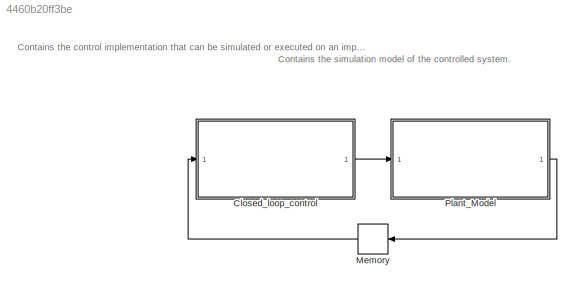
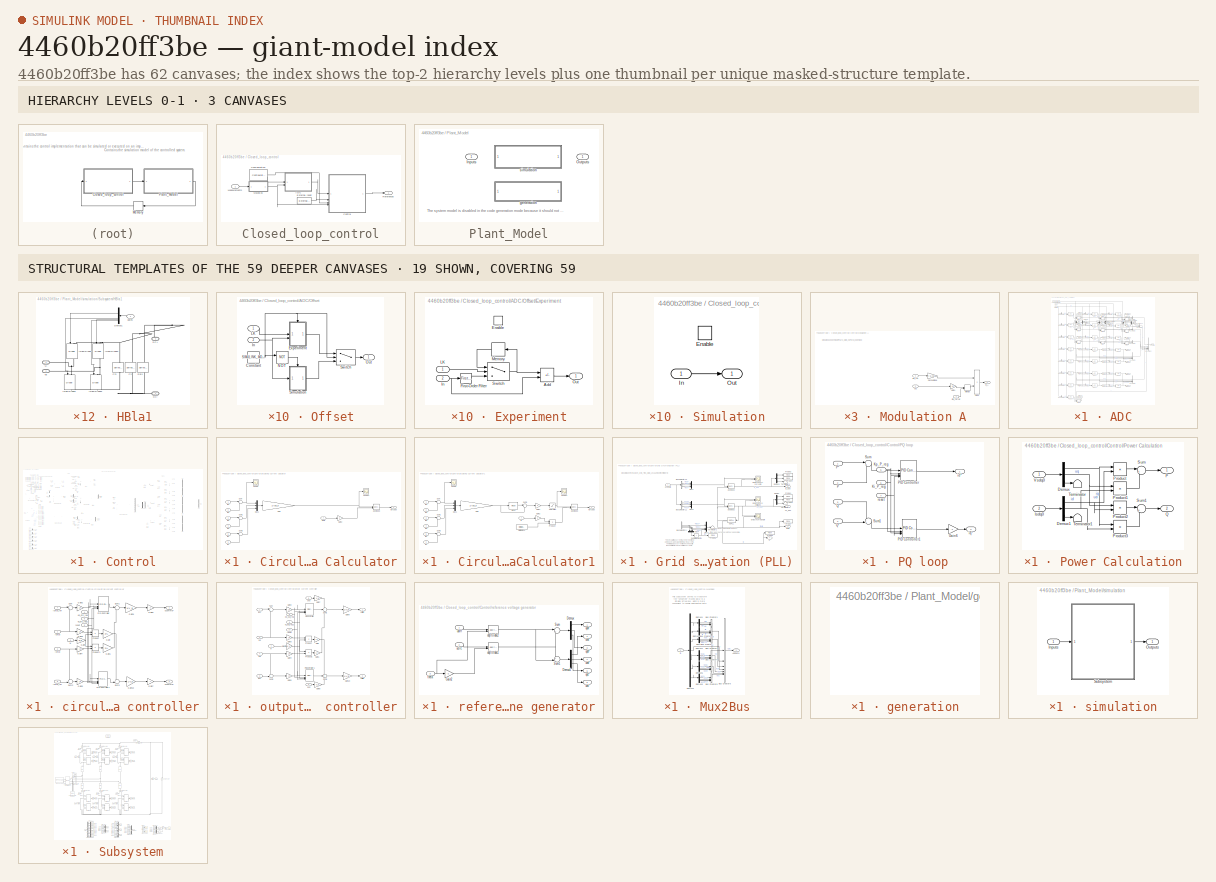
[diagram: thumbnail index - top-2 hierarchy levels (3 canvases) + 19 structural-template representatives of the remaining 59 canvases]
MODEL slx_4460b20ff3be
KIND model
CONFIG AbsTol = auto
CONFIG EnableMultiTasking = off
CONFIG FixedStep = auto
CONFIG InitFcn = % --- DO NOT REMOVE THIS CODE (SDK2024.3) ---\n    % check SDK version\n    required_lib_version = 3900.3;\n    required_lib_ver_str = '2024.3';\n    lib_path = [getenv('IX_SIMULINK_ACG_BB_3') '\simulink\blocks\BoomBox.slx'];\n    if exist(lib_path, 'file')\n        lib_version = str2double(Simulink.MDLInfo(lib_path).ModelVersion); % fullpath to avoid getting shadowing files\n        if lib_version < req...<+1808ch>
CONFIG MaxStep = auto
CONFIG MinStep = auto
CONFIG PostLoadFcn = % --- DO NOT REMOVE THIS CODE (SDK2024.3) ---\n    % change the execution mode of simulink depending on the radio button:\n    if(strcmp('Automated Code Generation',get_param(Find_imperix_blocks(bdroot,'Configuration'),'SLMODE')))\n        assignin('base', 'SIMULINK_MODE', 1);\n    else\n        assignin('base', 'SIMULINK_MODE', 0);\n    end\n\n    Model_PostLoadFcn(bdroot);\n% --- PLACE YOUR CODE BELOW TH...<+15ch>
CONFIG PreLoadFcn = % --- DO NOT REMOVE THIS CODE (SDK2024.3) ---\n    % create Simulink variants\n    if not(exist('variant_simulation', 'var'))\n        variant_simulation = Simulink.Variant('SIMULINK_MODE==0');\n    end\n    if not(exist('variant_generation', 'var'))\n        variant_generation = Simulink.Variant('SIMULINK_MODE==1');\n    end\n\n    % check SDK version\n    required_lib_version = 3900.3;\n    required_lib_ve...<+2548ch>
CONFIG RelTol = 1e-3
CONFIG SampleTimeConstraint = Unconstrained
CONFIG SolverName = VariableStepAuto
CONFIG StartTime = 0.0
CONFIG StopTime = 5
WORKSPACE source: mxarray member
WORKSPACE CTRLPERIOD = [5e-05 0]
WORKSPACE SVM_id = 0
WORKSPACE TSAMPLE = 1e-06
WORKSPACE global_CLK_number = 0
WORKSPACE global_INT_number = 1
WORKSPACE global_SVM_instance_id = 0
WORKSPACE global_can_baud_rate = '1000000'
WORKSPACE global_comp_time = 0.75
WORKSPACE global_cycle_delay = 2.5e-05
WORKSPACE global_ip_addresses: object (value not decoded)
BLOCK [SubSystem] Closed_loop_control
  Priority = -10000
BLOCK [SubSystem] Closed_loop_control/ADC
BLOCK [Reference] Closed_loop_control/ADC/ADC1  REF=BoomBox/ADC
  Priority = 1
  SourceBlock = BoomBox/ADC
  SourceProductName = Imperix Control
  SourceType = ADC
BLOCK [Reference] Closed_loop_control/ADC/ADC10  REF=BoomBox/ADC
  Priority = 1
  SourceBlock = BoomBox/ADC
  SourceProductName = Imperix Control
  SourceType = ADC
BLOCK [Reference] Closed_loop_control/ADC/ADC11  REF=BoomBox/ADC
  Priority = 1
  SourceBlock = BoomBox/ADC
  SourceProductName = Imperix Control
  SourceType = ADC
BLOCK [Reference] Closed_loop_control/ADC/ADC12  REF=BoomBox/ADC
  Priority = 1
  SourceBlock = BoomBox/ADC
  SourceProductName = Imperix Control
  SourceType = ADC
BLOCK [Reference] Closed_loop_control/ADC/ADC13  REF=BoomBox/ADC
  Priority = 1
  SourceBlock = BoomBox/ADC
  SourceProductName = Imperix Control
  SourceType = ADC
BLOCK [Reference] Closed_loop_control/ADC/ADC14  REF=BoomBox/ADC
  Priority = 1
  SourceBlock = BoomBox/ADC
  SourceProductName = Imperix Control
  SourceType = ADC
BLOCK [Reference] Closed_loop_control/ADC/ADC15  REF=BoomBox/ADC
  Priority = 1
  SourceBlock = BoomBox/ADC
  SourceProductName = Imperix Control
  SourceType = ADC
BLOCK [Reference] Closed_loop_control/ADC/ADC16  REF=BoomBox/ADC
  Priority = 1
  SourceBlock = BoomBox/ADC
  SourceProductName = Imperix Control
  SourceType = ADC
BLOCK [Reference] Closed_loop_control/ADC/ADC17  REF=BoomBox/ADC
  Priority = 1
  SourceBlock = BoomBox/ADC
  SourceProductName = Imperix Control
  SourceType = ADC
BLOCK [Reference] Closed_loop_control/ADC/ADC18  REF=BoomBox/ADC
  Priority = 1
  SourceBlock = BoomBox/ADC
  SourceProductName = Imperix Control
  SourceType = ADC
BLOCK [Reference] Closed_loop_control/ADC/ADC19  REF=BoomBox/ADC
  Priority = 1
  SourceBlock = BoomBox/ADC
  SourceProductName = Imperix Control
  SourceType = ADC
BLOCK [Reference] Closed_loop_control/ADC/ADC2  REF=BoomBox/ADC
  Priority = 1
  SourceBlock = BoomBox/ADC
  SourceProductName = Imperix Control
  SourceType = ADC
BLOCK [Reference] Closed_loop_control/ADC/ADC20  REF=BoomBox/ADC
  Priority = 1
  SourceBlock = BoomBox/ADC
  SourceProductName = Imperix Control
  SourceType = ADC
BLOCK [Reference] Closed_loop_control/ADC/ADC21  REF=BoomBox/ADC
  Priority = 1
  SourceBlock = BoomBox/ADC
  SourceProductName = Imperix Control
  SourceType = ADC
BLOCK [Reference] Closed_loop_control/ADC/ADC22  REF=BoomBox/ADC
  Priority = 1
  SourceBlock = BoomBox/ADC
  SourceProductName = Imperix Control
  SourceType = ADC
BLOCK [Reference] Closed_loop_control/ADC/ADC3  REF=BoomBox/ADC
  Priority = 1
  SourceBlock = BoomBox/ADC
  SourceProductName = Imperix Control
  SourceType = ADC
BLOCK [Reference] Closed_loop_control/ADC/ADC4  REF=BoomBox/ADC
  Priority = 1
  SourceBlock = BoomBox/ADC
  SourceProductName = Imperix Control
  SourceType = ADC
BLOCK [Reference] Closed_loop_control/ADC/ADC5  REF=BoomBox/ADC
  Priority = 1
  SourceBlock = BoomBox/ADC
  SourceProductName = Imperix Control
  SourceType = ADC
BLOCK [Reference] Closed_loop_control/ADC/ADC6  REF=BoomBox/ADC
  Priority = 1
  SourceBlock = BoomBox/ADC
  SourceProductName = Imperix Control
  SourceType = ADC
BLOCK [Reference] Closed_loop_control/ADC/ADC7  REF=BoomBox/ADC
  Priority = 1
  SourceBlock = BoomBox/ADC
  SourceProductName = Imperix Control
  SourceType = ADC
BLOCK [Reference] Closed_loop_control/ADC/ADC8  REF=BoomBox/ADC
  Priority = 1
  SourceBlock = BoomBox/ADC
  SourceProductName = Imperix Control
  SourceType = ADC
BLOCK [Reference] Closed_loop_control/ADC/ADC9  REF=BoomBox/ADC
  Priority = 1
  SourceBlock = BoomBox/ADC
  SourceProductName = Imperix Control
  SourceType = ADC
BLOCK [BusCreator] Closed_loop_control/ADC/Bus Creator1
  DisplayOption = bar
  InheritFromInputs = on
  Inputs = 3
BLOCK [BusCreator] Closed_loop_control/ADC/Bus Creator13
  DisplayOption = bar
  InheritFromInputs = on
  Inputs = 7
BLOCK [BusCreator] Closed_loop_control/ADC/Bus Creator2
  DisplayOption = bar
  InheritFromInputs = on
  Inputs = 3
BLOCK [BusCreator] Closed_loop_control/ADC/Bus Creator3
  DisplayOption = bar
  InheritFromInputs = on
  Inputs = 3
BLOCK [BusCreator] Closed_loop_control/ADC/Bus Creator4
  DisplayOption = bar
  InheritFromInputs = on
  Inputs = 6
  NameLocation = left
BLOCK [BusCreator] Closed_loop_control/ADC/Bus Creator5
  DisplayOption = bar
  InheritFromInputs = on
  Inputs = 6
BLOCK [BusCreator] Closed_loop_control/ADC/Bus Creator6
  DisplayOption = bar
  InheritFromInputs = on
  Inputs = 3
BLOCK [BusSelector] Closed_loop_control/ADC/Bus Selector
  OutputSignals = iu.iua
BLOCK [BusSelector] Closed_loop_control/ADC/Bus Selector1
  OutputSignals = il.ila
BLOCK [BusSelector] Closed_loop_control/ADC/Bus Selector10
  OutputSignals = Vcb.Vcb1
BLOCK [BusSelector] Closed_loop_control/ADC/Bus Selector11
  OutputSignals = Vcc.Vcc1
BLOCK [BusSelector] Closed_loop_control/ADC/Bus Selector12
  OutputSignals = Vcb.Vcb4
BLOCK [BusSelector] Closed_loop_control/ADC/Bus Selector13
  OutputSignals = Vcc.Vcc4
BLOCK [BusSelector] Closed_loop_control/ADC/Bus Selector14
  OutputSignals = Vca.Vca4
BLOCK [BusSelector] Closed_loop_control/ADC/Bus Selector15
  OutputSignals = Vcb.Vcb2
BLOCK [BusSelector] Closed_loop_control/ADC/Bus Selector16
  OutputSignals = Vcc.Vcc2
BLOCK [BusSelector] Closed_loop_control/ADC/Bus Selector17
  OutputSignals = vr
BLOCK [BusSelector] Closed_loop_control/ADC/Bus Selector18
  OutputSignals = Vca.Vca2
BLOCK [BusSelector] Closed_loop_control/ADC/Bus Selector19
  OutputSignals = Vcb.Vcb3
BLOCK [BusSelector] Closed_loop_control/ADC/Bus Selector2
  OutputSignals = iu.iub
BLOCK [BusSelector] Closed_loop_control/ADC/Bus Selector20
  OutputSignals = Vcc.Vcc3
BLOCK [BusSelector] Closed_loop_control/ADC/Bus Selector21
  OutputSignals = Vca.Vca3
BLOCK [BusSelector] Closed_loop_control/ADC/Bus Selector3
  OutputSignals = il.ilb
BLOCK [BusSelector] Closed_loop_control/ADC/Bus Selector4
  OutputSignals = vs.vsa
BLOCK [BusSelector] Closed_loop_control/ADC/Bus Selector5
  OutputSignals = vs.vsb
BLOCK [BusSelector] Closed_loop_control/ADC/Bus Selector6
  OutputSignals = iu.iuc
BLOCK [BusSelector] Closed_loop_control/ADC/Bus Selector7
  OutputSignals = il.ilc
BLOCK [BusSelector] Closed_loop_control/ADC/Bus Selector8
  OutputSignals = vs.vsc
BLOCK [BusSelector] Closed_loop_control/ADC/Bus Selector9
  OutputSignals = Vca.Vca1
BLOCK [Demux] Closed_loop_control/ADC/Demux
  Outputs = 2
BLOCK [Demux] Closed_loop_control/ADC/Demux1
  Outputs = 2
BLOCK [Demux] Closed_loop_control/ADC/Demux2
  Outputs = 2
BLOCK [Gain] Closed_loop_control/ADC/Gain1
  Gain = [0.5 0.5 ; 1 -1]
  Multiplication = Matrix(K*u)
BLOCK [Gain] Closed_loop_control/ADC/Gain2
  Gain = [0.5 0.5 ; 1 -1]
  Multiplication = Matrix(K*u)
BLOCK [Gain] Closed_loop_control/ADC/Gain3
  Gain = [0.5 0.5 ; 1 -1]
  Multiplication = Matrix(K*u)
BLOCK [Mux] Closed_loop_control/ADC/Mux1
  DisplayOption = bar
  Inputs = 2
BLOCK [Mux] Closed_loop_control/ADC/Mux2
  DisplayOption = bar
  Inputs = 2
BLOCK [Mux] Closed_loop_control/ADC/Mux4
  DisplayOption = bar
  Inputs = 2
BLOCK [SubSystem] Closed_loop_control/ADC/Offset
BLOCK [Constant] Closed_loop_control/ADC/Offset/Constant
  OutDataTypeStr = boolean
  Value = SIMULINK_MODE
BLOCK [SubSystem] Closed_loop_control/ADC/Offset/Experiment
BLOCK [Sum] Closed_loop_control/ADC/Offset/Experiment/Add
  IconShape = rectangular
  Inputs = -+
BLOCK [EnablePort] Closed_loop_control/ADC/Offset/Experiment/Enable
BLOCK [Reference] Closed_loop_control/ADC/Offset/Experiment/First-Order Filter  REF=spsFirstOrderFilterLib/First-Order
Filter
  SourceBlock = spsFirstOrderFilterLib/First-Order\nFilter
  SourceType = First-Order Filter
BLOCK [Inport] Closed_loop_control/ADC/Offset/Experiment/In
  NameLocation = left
  Port = 2
BLOCK [Inport] Closed_loop_control/ADC/Offset/Experiment/LK
  NameLocation = left
BLOCK [Memory] Closed_loop_control/ADC/Offset/Experiment/Memory
  InheritSampleTime = on
BLOCK [Outport] Closed_loop_control/ADC/Offset/Experiment/Out
BLOCK [Switch] Closed_loop_control/ADC/Offset/Experiment/Switch
  Criteria = u2 > Threshold
  InputSameDT = off
  OutDataTypeStr = single
  SaturateOnIntegerOverflow = off
BLOCK [Inport] Closed_loop_control/ADC/Offset/In
  NameLocation = left
  Port = 2
BLOCK [Inport] Closed_loop_control/ADC/Offset/LK
  NameLocation = left
BLOCK [Logic] Closed_loop_control/ADC/Offset/NOT
  AllPortsSameDT = off
  IconShape = distinctive
  Operator = NOT
  OutDataTypeStr = boolean
BLOCK [Outport] Closed_loop_control/ADC/Offset/Out
BLOCK [SubSystem] Closed_loop_control/ADC/Offset/Simulation
BLOCK [EnablePort] Closed_loop_control/ADC/Offset/Simulation/Enable
BLOCK [Inport] Closed_loop_control/ADC/Offset/Simulation/In
  NameLocation = left
BLOCK [Outport] Closed_loop_control/ADC/Offset/Simulation/Out
BLOCK [Switch] Closed_loop_control/ADC/Offset/Switch
  Criteria = u2 > Threshold
  InputSameDT = off
  OutDataTypeStr = single
  SaturateOnIntegerOverflow = off
BLOCK [SubSystem] Closed_loop_control/ADC/Offset1
BLOCK [Constant] Closed_loop_control/ADC/Offset1/Constant
  OutDataTypeStr = boolean
  Value = SIMULINK_MODE
BLOCK [SubSystem] Closed_loop_control/ADC/Offset1/Experiment
BLOCK [Sum] Closed_loop_control/ADC/Offset1/Experiment/Add
  IconShape = rectangular
  Inputs = -+
BLOCK [EnablePort] Closed_loop_control/ADC/Offset1/Experiment/Enable
BLOCK [Reference] Closed_loop_control/ADC/Offset1/Experiment/First-Order Filter  REF=spsFirstOrderFilterLib/First-Order
Filter
  SourceBlock = spsFirstOrderFilterLib/First-Order\nFilter
  SourceType = First-Order Filter
BLOCK [Inport] Closed_loop_control/ADC/Offset1/Experiment/In
  NameLocation = left
  Port = 2
BLOCK [Inport] Closed_loop_control/ADC/Offset1/Experiment/LK
  NameLocation = left
BLOCK [Memory] Closed_loop_control/ADC/Offset1/Experiment/Memory
  InheritSampleTime = on
BLOCK [Outport] Closed_loop_control/ADC/Offset1/Experiment/Out
BLOCK [Switch] Closed_loop_control/ADC/Offset1/Experiment/Switch
  Criteria = u2 > Threshold
  InputSameDT = off
  OutDataTypeStr = single
  SaturateOnIntegerOverflow = off
BLOCK [Inport] Closed_loop_control/ADC/Offset1/In
  NameLocation = left
  Port = 2
BLOCK [Inport] Closed_loop_control/ADC/Offset1/LK
  NameLocation = left
BLOCK [Logic] Closed_loop_control/ADC/Offset1/NOT
  AllPortsSameDT = off
  IconShape = distinctive
  Operator = NOT
  OutDataTypeStr = boolean
BLOCK [Outport] Closed_loop_control/ADC/Offset1/Out
BLOCK [SubSystem] Closed_loop_control/ADC/Offset1/Simulation
BLOCK [EnablePort] Closed_loop_control/ADC/Offset1/Simulation/Enable
BLOCK [Inport] Closed_loop_control/ADC/Offset1/Simulation/In
  NameLocation = left
BLOCK [Outport] Closed_loop_control/ADC/Offset1/Simulation/Out
BLOCK [Switch] Closed_loop_control/ADC/Offset1/Switch
  Criteria = u2 > Threshold
  InputSameDT = off
  OutDataTypeStr = single
  SaturateOnIntegerOverflow = off
BLOCK [SubSystem] Closed_loop_control/ADC/Offset2
BLOCK [Constant] Closed_loop_control/ADC/Offset2/Constant
  OutDataTypeStr = boolean
  Value = SIMULINK_MODE
BLOCK [SubSystem] Closed_loop_control/ADC/Offset2/Experiment
BLOCK [Sum] Closed_loop_control/ADC/Offset2/Experiment/Add
  IconShape = rectangular
  Inputs = -+
BLOCK [EnablePort] Closed_loop_control/ADC/Offset2/Experiment/Enable
BLOCK [Reference] Closed_loop_control/ADC/Offset2/Experiment/First-Order Filter  REF=spsFirstOrderFilterLib/First-Order
Filter
  SourceBlock = spsFirstOrderFilterLib/First-Order\nFilter
  SourceType = First-Order Filter
BLOCK [Inport] Closed_loop_control/ADC/Offset2/Experiment/In
  NameLocation = left
  Port = 2
BLOCK [Inport] Closed_loop_control/ADC/Offset2/Experiment/LK
  NameLocation = left
BLOCK [Memory] Closed_loop_control/ADC/Offset2/Experiment/Memory
  InheritSampleTime = on
BLOCK [Outport] Closed_loop_control/ADC/Offset2/Experiment/Out
BLOCK [Switch] Closed_loop_control/ADC/Offset2/Experiment/Switch
  Criteria = u2 > Threshold
  InputSameDT = off
  OutDataTypeStr = single
  SaturateOnIntegerOverflow = off
BLOCK [Inport] Closed_loop_control/ADC/Offset2/In
  NameLocation = left
  Port = 2
BLOCK [Inport] Closed_loop_control/ADC/Offset2/LK
  NameLocation = left
BLOCK [Logic] Closed_loop_control/ADC/Offset2/NOT
  AllPortsSameDT = off
  IconShape = distinctive
  Operator = NOT
  OutDataTypeStr = boolean
BLOCK [Outport] Closed_loop_control/ADC/Offset2/Out
BLOCK [SubSystem] Closed_loop_control/ADC/Offset2/Simulation
BLOCK [EnablePort] Closed_loop_control/ADC/Offset2/Simulation/Enable
BLOCK [Inport] Closed_loop_control/ADC/Offset2/Simulation/In
  NameLocation = left
BLOCK [Outport] Closed_loop_control/ADC/Offset2/Simulation/Out
BLOCK [Switch] Closed_loop_control/ADC/Offset2/Switch
  Criteria = u2 > Threshold
  InputSameDT = off
  OutDataTypeStr = single
  SaturateOnIntegerOverflow = off
BLOCK [SubSystem] Closed_loop_control/ADC/Offset3
BLOCK [Constant] Closed_loop_control/ADC/Offset3/Constant
  OutDataTypeStr = boolean
  Value = SIMULINK_MODE
BLOCK [SubSystem] Closed_loop_control/ADC/Offset3/Experiment
BLOCK [Sum] Closed_loop_control/ADC/Offset3/Experiment/Add
  IconShape = rectangular
  Inputs = -+
BLOCK [EnablePort] Closed_loop_control/ADC/Offset3/Experiment/Enable
BLOCK [Reference] Closed_loop_control/ADC/Offset3/Experiment/First-Order Filter  REF=spsFirstOrderFilterLib/First-Order
Filter
  SourceBlock = spsFirstOrderFilterLib/First-Order\nFilter
  SourceType = First-Order Filter
BLOCK [Inport] Closed_loop_control/ADC/Offset3/Experiment/In
  NameLocation = left
  Port = 2
BLOCK [Inport] Closed_loop_control/ADC/Offset3/Experiment/LK
  NameLocation = left
BLOCK [Memory] Closed_loop_control/ADC/Offset3/Experiment/Memory
  InheritSampleTime = on
BLOCK [Outport] Closed_loop_control/ADC/Offset3/Experiment/Out
BLOCK [Switch] Closed_loop_control/ADC/Offset3/Experiment/Switch
  Criteria = u2 > Threshold
  InputSameDT = off
  OutDataTypeStr = single
  SaturateOnIntegerOverflow = off
BLOCK [Inport] Closed_loop_control/ADC/Offset3/In
  NameLocation = left
  Port = 2
BLOCK [Inport] Closed_loop_control/ADC/Offset3/LK
  NameLocation = left
BLOCK [Logic] Closed_loop_control/ADC/Offset3/NOT
  AllPortsSameDT = off
  IconShape = distinctive
  Operator = NOT
  OutDataTypeStr = boolean
BLOCK [Outport] Closed_loop_control/ADC/Offset3/Out
BLOCK [SubSystem] Closed_loop_control/ADC/Offset3/Simulation
BLOCK [EnablePort] Closed_loop_control/ADC/Offset3/Simulation/Enable
BLOCK [Inport] Closed_loop_control/ADC/Offset3/Simulation/In
  NameLocation = left
BLOCK [Outport] Closed_loop_control/ADC/Offset3/Simulation/Out
BLOCK [Switch] Closed_loop_control/ADC/Offset3/Switch
  Criteria = u2 > Threshold
  InputSameDT = off
  OutDataTypeStr = single
  SaturateOnIntegerOverflow = off
BLOCK [SubSystem] Closed_loop_control/ADC/Offset4
BLOCK [Constant] Closed_loop_control/ADC/Offset4/Constant
  OutDataTypeStr = boolean
  Value = SIMULINK_MODE
BLOCK [SubSystem] Closed_loop_control/ADC/Offset4/Experiment
BLOCK [Sum] Closed_loop_control/ADC/Offset4/Experiment/Add
  IconShape = rectangular
  Inputs = -+
BLOCK [EnablePort] Closed_loop_control/ADC/Offset4/Experiment/Enable
BLOCK [Reference] Closed_loop_control/ADC/Offset4/Experiment/First-Order Filter  REF=spsFirstOrderFilterLib/First-Order
Filter
  SourceBlock = spsFirstOrderFilterLib/First-Order\nFilter
  SourceType = First-Order Filter
BLOCK [Inport] Closed_loop_control/ADC/Offset4/Experiment/In
  NameLocation = left
  Port = 2
BLOCK [Inport] Closed_loop_control/ADC/Offset4/Experiment/LK
  NameLocation = left
BLOCK [Memory] Closed_loop_control/ADC/Offset4/Experiment/Memory
  InheritSampleTime = on
BLOCK [Outport] Closed_loop_control/ADC/Offset4/Experiment/Out
BLOCK [Switch] Closed_loop_control/ADC/Offset4/Experiment/Switch
  Criteria = u2 > Threshold
  InputSameDT = off
  OutDataTypeStr = single
  SaturateOnIntegerOverflow = off
BLOCK [Inport] Closed_loop_control/ADC/Offset4/In
  NameLocation = left
  Port = 2
BLOCK [Inport] Closed_loop_control/ADC/Offset4/LK
  NameLocation = left
BLOCK [Logic] Closed_loop_control/ADC/Offset4/NOT
  AllPortsSameDT = off
  IconShape = distinctive
  Operator = NOT
  OutDataTypeStr = boolean
BLOCK [Outport] Closed_loop_control/ADC/Offset4/Out
BLOCK [SubSystem] Closed_loop_control/ADC/Offset4/Simulation
BLOCK [EnablePort] Closed_loop_control/ADC/Offset4/Simulation/Enable
BLOCK [Inport] Closed_loop_control/ADC/Offset4/Simulation/In
  NameLocation = left
BLOCK [Outport] Closed_loop_control/ADC/Offset4/Simulation/Out
BLOCK [Switch] Closed_loop_control/ADC/Offset4/Switch
  Criteria = u2 > Threshold
  InputSameDT = off
  OutDataTypeStr = single
  SaturateOnIntegerOverflow = off
BLOCK [SubSystem] Closed_loop_control/ADC/Offset5
BLOCK [Constant] Closed_loop_control/ADC/Offset5/Constant
  OutDataTypeStr = boolean
  Value = SIMULINK_MODE
BLOCK [SubSystem] Closed_loop_control/ADC/Offset5/Experiment
BLOCK [Sum] Closed_loop_control/ADC/Offset5/Experiment/Add
  IconShape = rectangular
  Inputs = -+
BLOCK [EnablePort] Closed_loop_control/ADC/Offset5/Experiment/Enable
BLOCK [Reference] Closed_loop_control/ADC/Offset5/Experiment/First-Order Filter  REF=spsFirstOrderFilterLib/First-Order
Filter
  SourceBlock = spsFirstOrderFilterLib/First-Order\nFilter
  SourceType = First-Order Filter
BLOCK [Inport] Closed_loop_control/ADC/Offset5/Experiment/In
  NameLocation = left
  Port = 2
BLOCK [Inport] Closed_loop_control/ADC/Offset5/Experiment/LK
  NameLocation = left
BLOCK [Memory] Closed_loop_control/ADC/Offset5/Experiment/Memory
  InheritSampleTime = on
BLOCK [Outport] Closed_loop_control/ADC/Offset5/Experiment/Out
BLOCK [Switch] Closed_loop_control/ADC/Offset5/Experiment/Switch
  Criteria = u2 > Threshold
  InputSameDT = off
  OutDataTypeStr = single
  SaturateOnIntegerOverflow = off
BLOCK [Inport] Closed_loop_control/ADC/Offset5/In
  NameLocation = left
  Port = 2
BLOCK [Inport] Closed_loop_control/ADC/Offset5/LK
  NameLocation = left
BLOCK [Logic] Closed_loop_control/ADC/Offset5/NOT
  AllPortsSameDT = off
  IconShape = distinctive
  Operator = NOT
  OutDataTypeStr = boolean
BLOCK [Outport] Closed_loop_control/ADC/Offset5/Out
BLOCK [SubSystem] Closed_loop_control/ADC/Offset5/Simulation
BLOCK [EnablePort] Closed_loop_control/ADC/Offset5/Simulation/Enable
BLOCK [Inport] Closed_loop_control/ADC/Offset5/Simulation/In
  NameLocation = left
BLOCK [Outport] Closed_loop_control/ADC/Offset5/Simulation/Out
BLOCK [Switch] Closed_loop_control/ADC/Offset5/Switch
  Criteria = u2 > Threshold
  InputSameDT = off
  OutDataTypeStr = single
  SaturateOnIntegerOverflow = off
BLOCK [SubSystem] Closed_loop_control/ADC/Offset6
BLOCK [Constant] Closed_loop_control/ADC/Offset6/Constant
  OutDataTypeStr = boolean
  Value = SIMULINK_MODE
BLOCK [SubSystem] Closed_loop_control/ADC/Offset6/Experiment
BLOCK [Sum] Closed_loop_control/ADC/Offset6/Experiment/Add
  IconShape = rectangular
  Inputs = -+
BLOCK [EnablePort] Closed_loop_control/ADC/Offset6/Experiment/Enable
BLOCK [Reference] Closed_loop_control/ADC/Offset6/Experiment/First-Order Filter  REF=spsFirstOrderFilterLib/First-Order
Filter
  SourceBlock = spsFirstOrderFilterLib/First-Order\nFilter
  SourceType = First-Order Filter
BLOCK [Inport] Closed_loop_control/ADC/Offset6/Experiment/In
  NameLocation = left
  Port = 2
BLOCK [Inport] Closed_loop_control/ADC/Offset6/Experiment/LK
  NameLocation = left
BLOCK [Memory] Closed_loop_control/ADC/Offset6/Experiment/Memory
  InheritSampleTime = on
BLOCK [Outport] Closed_loop_control/ADC/Offset6/Experiment/Out
BLOCK [Switch] Closed_loop_control/ADC/Offset6/Experiment/Switch
  Criteria = u2 > Threshold
  InputSameDT = off
  OutDataTypeStr = single
  SaturateOnIntegerOverflow = off
BLOCK [Inport] Closed_loop_control/ADC/Offset6/In
  NameLocation = left
  Port = 2
BLOCK [Inport] Closed_loop_control/ADC/Offset6/LK
  NameLocation = left
BLOCK [Logic] Closed_loop_control/ADC/Offset6/NOT
  AllPortsSameDT = off
  IconShape = distinctive
  Operator = NOT
  OutDataTypeStr = boolean
BLOCK [Outport] Closed_loop_control/ADC/Offset6/Out
BLOCK [SubSystem] Closed_loop_control/ADC/Offset6/Simulation
BLOCK [EnablePort] Closed_loop_control/ADC/Offset6/Simulation/Enable
BLOCK [Inport] Closed_loop_control/ADC/Offset6/Simulation/In
  NameLocation = left
BLOCK [Outport] Closed_loop_control/ADC/Offset6/Simulation/Out
BLOCK [Switch] Closed_loop_control/ADC/Offset6/Switch
  Criteria = u2 > Threshold
  InputSameDT = off
  OutDataTypeStr = single
  SaturateOnIntegerOverflow = off
BLOCK [SubSystem] Closed_loop_control/ADC/Offset7
BLOCK [Constant] Closed_loop_control/ADC/Offset7/Constant
  OutDataTypeStr = boolean
  Value = SIMULINK_MODE
BLOCK [SubSystem] Closed_loop_control/ADC/Offset7/Experiment
BLOCK [Sum] Closed_loop_control/ADC/Offset7/Experiment/Add
  IconShape = rectangular
  Inputs = -+
BLOCK [EnablePort] Closed_loop_control/ADC/Offset7/Experiment/Enable
BLOCK [Reference] Closed_loop_control/ADC/Offset7/Experiment/First-Order Filter  REF=spsFirstOrderFilterLib/First-Order
Filter
  SourceBlock = spsFirstOrderFilterLib/First-Order\nFilter
  SourceType = First-Order Filter
BLOCK [Inport] Closed_loop_control/ADC/Offset7/Experiment/In
  NameLocation = left
  Port = 2
BLOCK [Inport] Closed_loop_control/ADC/Offset7/Experiment/LK
  NameLocation = left
BLOCK [Memory] Closed_loop_control/ADC/Offset7/Experiment/Memory
  InheritSampleTime = on
BLOCK [Outport] Closed_loop_control/ADC/Offset7/Experiment/Out
BLOCK [Switch] Closed_loop_control/ADC/Offset7/Experiment/Switch
  Criteria = u2 > Threshold
  InputSameDT = off
  OutDataTypeStr = single
  SaturateOnIntegerOverflow = off
BLOCK [Inport] Closed_loop_control/ADC/Offset7/In
  NameLocation = left
  Port = 2
BLOCK [Inport] Closed_loop_control/ADC/Offset7/LK
  NameLocation = left
BLOCK [Logic] Closed_loop_control/ADC/Offset7/NOT
  AllPortsSameDT = off
  IconShape = distinctive
  Operator = NOT
  OutDataTypeStr = boolean
BLOCK [Outport] Closed_loop_control/ADC/Offset7/Out
BLOCK [SubSystem] Closed_loop_control/ADC/Offset7/Simulation
BLOCK [EnablePort] Closed_loop_control/ADC/Offset7/Simulation/Enable
BLOCK [Inport] Closed_loop_control/ADC/Offset7/Simulation/In
  NameLocation = left
BLOCK [Outport] Closed_loop_control/ADC/Offset7/Simulation/Out
BLOCK [Switch] Closed_loop_control/ADC/Offset7/Switch
  Criteria = u2 > Threshold
  InputSameDT = off
  OutDataTypeStr = single
  SaturateOnIntegerOverflow = off
BLOCK [SubSystem] Closed_loop_control/ADC/Offset8
BLOCK [Constant] Closed_loop_control/ADC/Offset8/Constant
  OutDataTypeStr = boolean
  Value = SIMULINK_MODE
BLOCK [SubSystem] Closed_loop_control/ADC/Offset8/Experiment
BLOCK [Sum] Closed_loop_control/ADC/Offset8/Experiment/Add
  IconShape = rectangular
  Inputs = -+
BLOCK [EnablePort] Closed_loop_control/ADC/Offset8/Experiment/Enable
BLOCK [Reference] Closed_loop_control/ADC/Offset8/Experiment/First-Order Filter  REF=spsFirstOrderFilterLib/First-Order
Filter
  SourceBlock = spsFirstOrderFilterLib/First-Order\nFilter
  SourceType = First-Order Filter
BLOCK [Inport] Closed_loop_control/ADC/Offset8/Experiment/In
  NameLocation = left
  Port = 2
BLOCK [Inport] Closed_loop_control/ADC/Offset8/Experiment/LK
  NameLocation = left
BLOCK [Memory] Closed_loop_control/ADC/Offset8/Experiment/Memory
  InheritSampleTime = on
BLOCK [Outport] Closed_loop_control/ADC/Offset8/Experiment/Out
BLOCK [Switch] Closed_loop_control/ADC/Offset8/Experiment/Switch
  Criteria = u2 > Threshold
  InputSameDT = off
  OutDataTypeStr = single
  SaturateOnIntegerOverflow = off
BLOCK [Inport] Closed_loop_control/ADC/Offset8/In
  NameLocation = left
  Port = 2
BLOCK [Inport] Closed_loop_control/ADC/Offset8/LK
  NameLocation = left
BLOCK [Logic] Closed_loop_control/ADC/Offset8/NOT
  AllPortsSameDT = off
  IconShape = distinctive
  Operator = NOT
  OutDataTypeStr = boolean
BLOCK [Outport] Closed_loop_control/ADC/Offset8/Out
BLOCK [SubSystem] Closed_loop_control/ADC/Offset8/Simulation
BLOCK [EnablePort] Closed_loop_control/ADC/Offset8/Simulation/Enable
BLOCK [Inport] Closed_loop_control/ADC/Offset8/Simulation/In
  NameLocation = left
BLOCK [Outport] Closed_loop_control/ADC/Offset8/Simulation/Out
BLOCK [Switch] Closed_loop_control/ADC/Offset8/Switch
  Criteria = u2 > Threshold
  InputSameDT = off
  OutDataTypeStr = single
  SaturateOnIntegerOverflow = off
BLOCK [SubSystem] Closed_loop_control/ADC/Offset9
BLOCK [Constant] Closed_loop_control/ADC/Offset9/Constant
  OutDataTypeStr = boolean
  Value = SIMULINK_MODE
BLOCK [SubSystem] Closed_loop_control/ADC/Offset9/Experiment
BLOCK [Sum] Closed_loop_control/ADC/Offset9/Experiment/Add
  IconShape = rectangular
  Inputs = -+
BLOCK [EnablePort] Closed_loop_control/ADC/Offset9/Experiment/Enable
BLOCK [Reference] Closed_loop_control/ADC/Offset9/Experiment/First-Order Filter  REF=spsFirstOrderFilterLib/First-Order
Filter
  SourceBlock = spsFirstOrderFilterLib/First-Order\nFilter
  SourceType = First-Order Filter
BLOCK [Inport] Closed_loop_control/ADC/Offset9/Experiment/In
  NameLocation = left
  Port = 2
BLOCK [Inport] Closed_loop_control/ADC/Offset9/Experiment/LK
  NameLocation = left
BLOCK [Memory] Closed_loop_control/ADC/Offset9/Experiment/Memory
  InheritSampleTime = on
BLOCK [Outport] Closed_loop_control/ADC/Offset9/Experiment/Out
BLOCK [Switch] Closed_loop_control/ADC/Offset9/Experiment/Switch
  Criteria = u2 > Threshold
  InputSameDT = off
  OutDataTypeStr = single
  SaturateOnIntegerOverflow = off
BLOCK [Inport] Closed_loop_control/ADC/Offset9/In
  NameLocation = left
  Port = 2
BLOCK [Inport] Closed_loop_control/ADC/Offset9/LK
  NameLocation = left
BLOCK [Logic] Closed_loop_control/ADC/Offset9/NOT
  AllPortsSameDT = off
  IconShape = distinctive
  Operator = NOT
  OutDataTypeStr = boolean
BLOCK [Outport] Closed_loop_control/ADC/Offset9/Out
BLOCK [SubSystem] Closed_loop_control/ADC/Offset9/Simulation
BLOCK [EnablePort] Closed_loop_control/ADC/Offset9/Simulation/Enable
BLOCK [Inport] Closed_loop_control/ADC/Offset9/Simulation/In
  NameLocation = left
BLOCK [Outport] Closed_loop_control/ADC/Offset9/Simulation/Out
BLOCK [Switch] Closed_loop_control/ADC/Offset9/Switch
  Criteria = u2 > Threshold
  InputSameDT = off
  OutDataTypeStr = single
  SaturateOnIntegerOverflow = off
BLOCK [Reference] Closed_loop_control/ADC/Probe1  REF=BoomBox/Probe
  SourceBlock = BoomBox/Probe
  SourceProductName = Imperix Control
  SourceType = Probe
BLOCK [Reference] Closed_loop_control/ADC/Probe10  REF=BoomBox/Probe
  SourceBlock = BoomBox/Probe
  SourceProductName = Imperix Control
  SourceType = Probe
BLOCK [Reference] Closed_loop_control/ADC/Probe11  REF=BoomBox/Probe
  SourceBlock = BoomBox/Probe
  SourceProductName = Imperix Control
  SourceType = Probe
BLOCK [Reference] Closed_loop_control/ADC/Probe12  REF=BoomBox/Probe
  SourceBlock = BoomBox/Probe
  SourceProductName = Imperix Control
  SourceType = Probe
BLOCK [Reference] Closed_loop_control/ADC/Probe13  REF=BoomBox/Probe
  SourceBlock = BoomBox/Probe
  SourceProductName = Imperix Control
  SourceType = Probe
BLOCK [Reference] Closed_loop_control/ADC/Probe14  REF=BoomBox/Probe
  SourceBlock = BoomBox/Probe
  SourceProductName = Imperix Control
  SourceType = Probe
BLOCK [Reference] Closed_loop_control/ADC/Probe15  REF=BoomBox/Probe
  SourceBlock = BoomBox/Probe
  SourceProductName = Imperix Control
  SourceType = Probe
BLOCK [Reference] Closed_loop_control/ADC/Probe16  REF=BoomBox/Probe
  SourceBlock = BoomBox/Probe
  SourceProductName = Imperix Control
  SourceType = Probe
BLOCK [Reference] Closed_loop_control/ADC/Probe17  REF=BoomBox/Probe
  SourceBlock = BoomBox/Probe
  SourceProductName = Imperix Control
  SourceType = Probe
BLOCK [Reference] Closed_loop_control/ADC/Probe18  REF=BoomBox/Probe
  SourceBlock = BoomBox/Probe
  SourceProductName = Imperix Control
  SourceType = Probe
BLOCK [Reference] Closed_loop_control/ADC/Probe19  REF=BoomBox/Probe
  SourceBlock = BoomBox/Probe
  SourceProductName = Imperix Control
  SourceType = Probe
BLOCK [Reference] Closed_loop_control/ADC/Probe2  REF=BoomBox/Probe
  SourceBlock = BoomBox/Probe
  SourceProductName = Imperix Control
  SourceType = Probe
BLOCK [Reference] Closed_loop_control/ADC/Probe20  REF=BoomBox/Probe
  SourceBlock = BoomBox/Probe
  SourceProductName = Imperix Control
  SourceType = Probe
BLOCK [Reference] Closed_loop_control/ADC/Probe21  REF=BoomBox/Probe
  SourceBlock = BoomBox/Probe
  SourceProductName = Imperix Control
  SourceType = Probe
BLOCK [Reference] Closed_loop_control/ADC/Probe22  REF=BoomBox/Probe
  SourceBlock = BoomBox/Probe
  SourceProductName = Imperix Control
  SourceType = Probe
BLOCK [Reference] Closed_loop_control/ADC/Probe23  REF=BoomBox/Probe
  SourceBlock = BoomBox/Probe
  SourceProductName = Imperix Control
  SourceType = Probe
BLOCK [Reference] Closed_loop_control/ADC/Probe24  REF=BoomBox/Probe
  SourceBlock = BoomBox/Probe
  SourceProductName = Imperix Control
  SourceType = Probe
BLOCK [Reference] Closed_loop_control/ADC/Probe3  REF=BoomBox/Probe
  SourceBlock = BoomBox/Probe
  SourceProductName = Imperix Control
  SourceType = Probe
BLOCK [Reference] Closed_loop_control/ADC/Probe4  REF=BoomBox/Probe
  SourceBlock = BoomBox/Probe
  SourceProductName = Imperix Control
  SourceType = Probe
BLOCK [Reference] Closed_loop_control/ADC/Probe46  REF=BoomBox/Probe
  SourceBlock = BoomBox/Probe
  SourceProductName = Imperix Control
  SourceType = Probe
BLOCK [Reference] Closed_loop_control/ADC/Probe5  REF=BoomBox/Probe
  SourceBlock = BoomBox/Probe
  SourceProductName = Imperix Control
  SourceType = Probe
BLOCK [Reference] Closed_loop_control/ADC/Probe6  REF=BoomBox/Probe
  SourceBlock = BoomBox/Probe
  SourceProductName = Imperix Control
  SourceType = Probe
BLOCK [Reference] Closed_loop_control/ADC/Probe7  REF=BoomBox/Probe
  SourceBlock = BoomBox/Probe
  SourceProductName = Imperix Control
  SourceType = Probe
BLOCK [Reference] Closed_loop_control/ADC/Probe8  REF=BoomBox/Probe
  SourceBlock = BoomBox/Probe
  SourceProductName = Imperix Control
  SourceType = Probe
BLOCK [Reference] Closed_loop_control/ADC/Probe9  REF=BoomBox/Probe
  SourceBlock = BoomBox/Probe
  SourceProductName = Imperix Control
  SourceType = Probe
BLOCK [Inport] Closed_loop_control/ADC/SCLK
BLOCK [Terminator] Closed_loop_control/ADC/Terminator
BLOCK [Terminator] Closed_loop_control/ADC/Terminator1
BLOCK [Terminator] Closed_loop_control/ADC/Terminator2
BLOCK [Reference] Closed_loop_control/ADC/Tunable parameter  REF=BoomBox/Tunable parameter
  SourceBlock = BoomBox/Tunable parameter
  SourceProductName = Imperix Control
  SourceType = Tunable parameter
BLOCK [Outport] Closed_loop_control/ADC/acqdata
BLOCK [Inport] Closed_loop_control/ADC/simdata
  Port = 2
BLOCK [Reference] Closed_loop_control/Configuration  REF=BoomBox/Configuration
  Description = Please leave the Priority (below parameter) to maximum negative to ensure that this block is always executed first.
  NameLocation = top
  Priority = -99999
  SourceBlock = BoomBox/Configuration
  SourceProductName = Imperix Control
  SourceType = Configuration
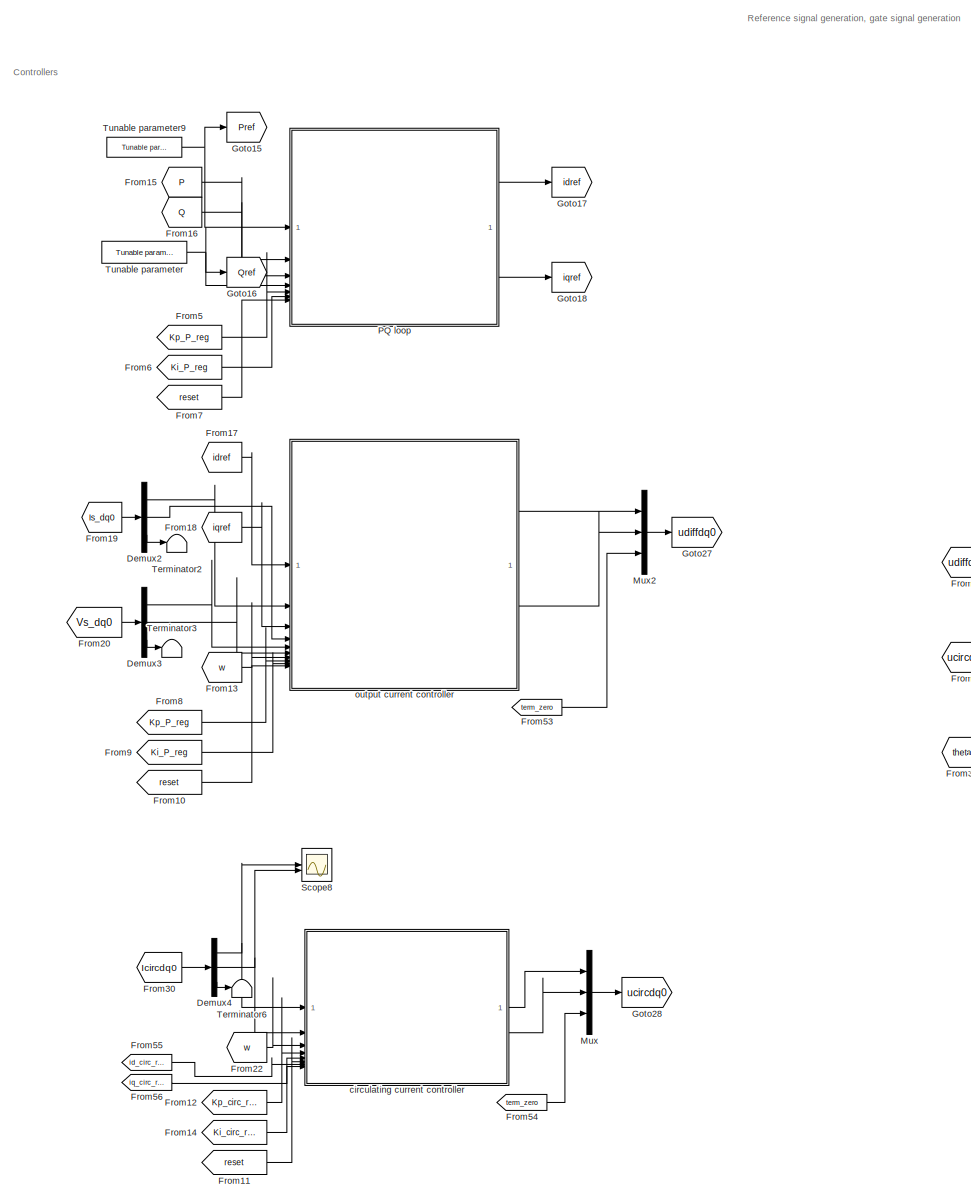
[diagram: Closed_loop_control/Control - part 1/6, central region]
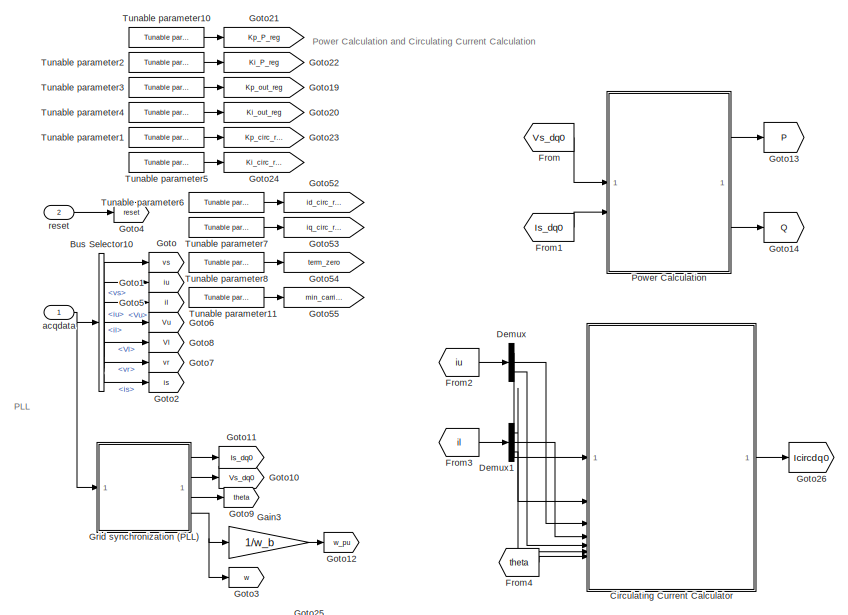
[diagram: Closed_loop_control/Control - part 2/6, top left region]
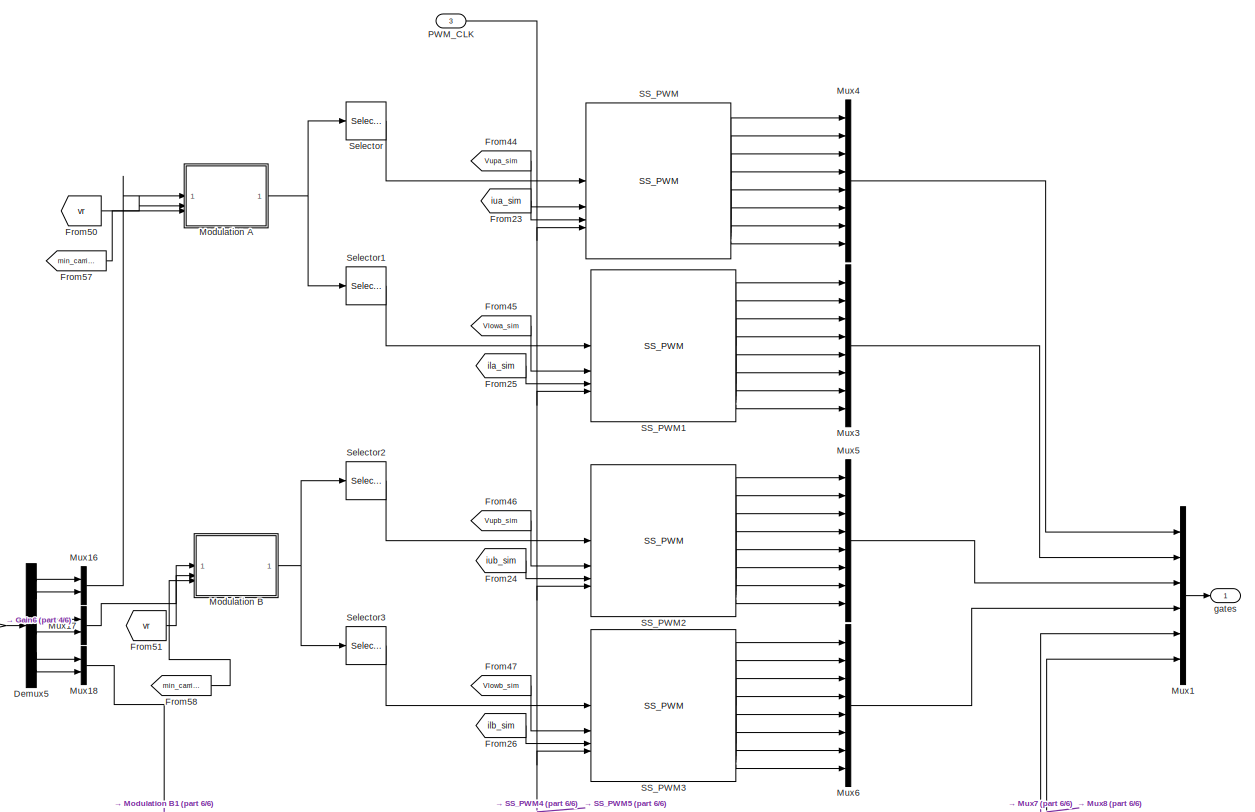
[diagram: Closed_loop_control/Control - part 3/6, top right region]
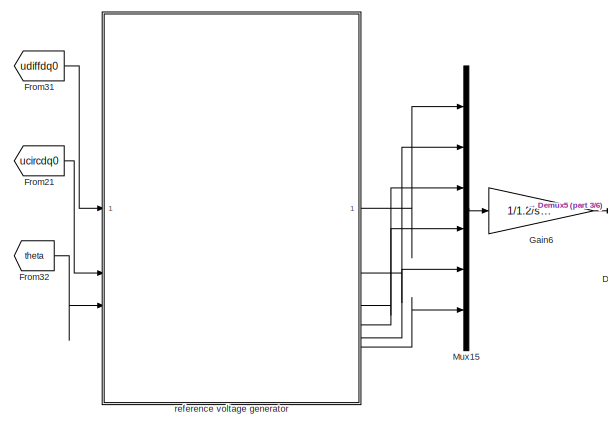
[diagram: Closed_loop_control/Control - part 4/6, central region]
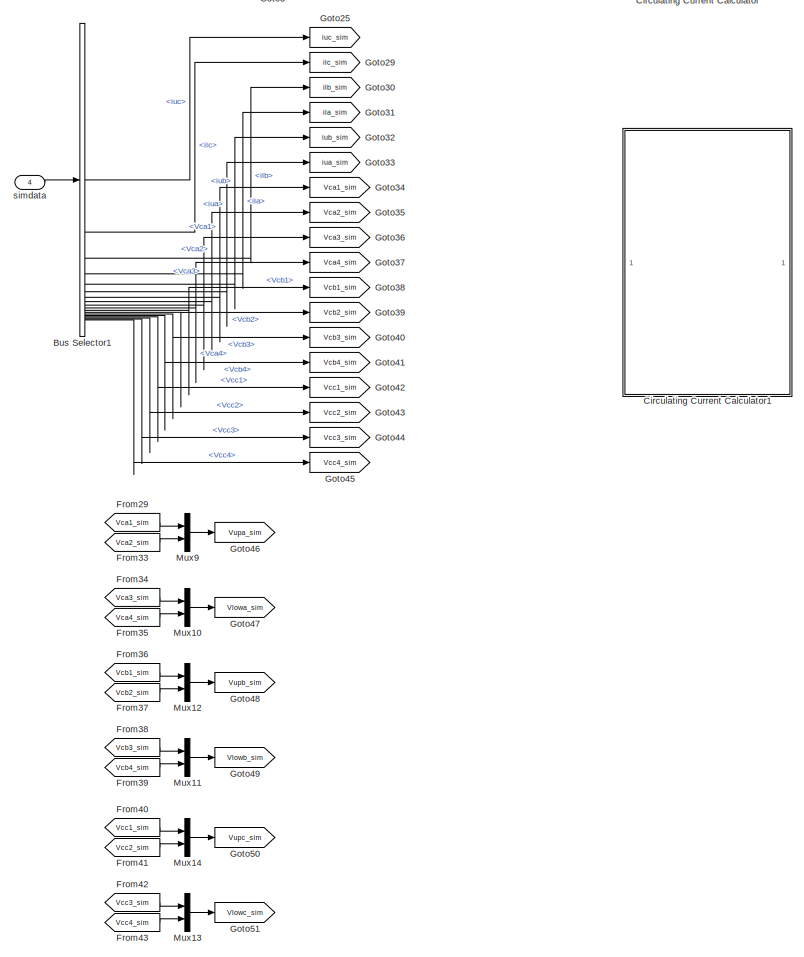
[diagram: Closed_loop_control/Control - part 5/6, bottom left region]
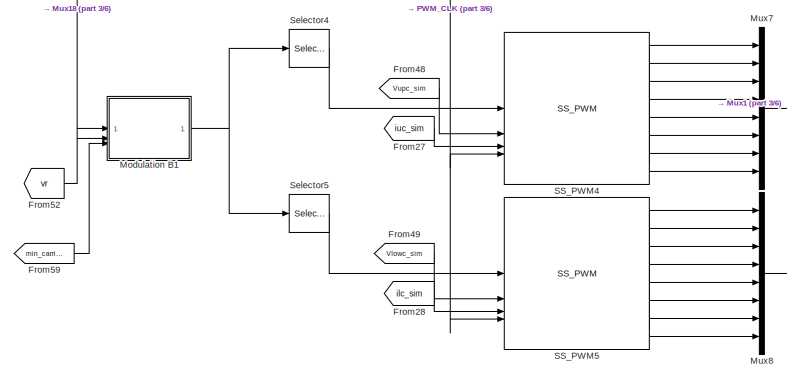
[diagram: Closed_loop_control/Control - part 6/6, middle right region]
BLOCK [SubSystem] Closed_loop_control/Control
BLOCK [BusSelector] Closed_loop_control/Control/Bus Selector1
  NameLocation = right
  OutputSignals = iu.iuc,il.ilc,il.ilb,il.ila,iu.iub,iu.iua,Vca.Vca1,Vca.Vca2,Vca.Vca3,Vca.Vca4,Vcb.Vcb1,Vcb.Vcb2,Vcb.Vcb3,Vcb.Vcb4,Vcc.Vcc1,Vcc.Vcc2,Vcc.Vcc3,Vcc.Vcc4
BLOCK [BusSelector] Closed_loop_control/Control/Bus Selector10
  NameLocation = right
  OutputSignals = vs,iu,il,Vu,Vl,vr,is
BLOCK [SubSystem] Closed_loop_control/Control/Circulating Current Calculator
BLOCK [Gain] Closed_loop_control/Control/Circulating Current Calculator/Gain
  Gain = 1/Ipp_b
BLOCK [Gain] Closed_loop_control/Control/Circulating Current Calculator/Gain2
  Gain = -2
BLOCK [Mux] Closed_loop_control/Control/Circulating Current Calculator/Mux1
  DisplayOption = bar
  Inputs = 3
BLOCK [Scope] Closed_loop_control/Control/Circulating Current Calculator/Scope
  Floating = off
  NumInputPorts = 1
  ScopeSpecificationString = Simulink.scopes.TimeScopeBlockCfg('CurrentConfiguration', extmgr.ConfigurationSet(extmgr.Configuration('Core','General UI',true),extmgr.Configuration('Core','Source UI',true),extmgr.Configuration('Sources','WiredSimulink',true,'DataLoggingVariableName','ScopeData9'),extmgr.Configuration('Visuals','Time Domain',true,'SerializedDisplays',{struct('MinYLimReal','-186.41809','MaxYLimReal','749.99029','...<+1544ch>
BLOCK [Scope] Closed_loop_control/Control/Circulating Current Calculator/Scope1
  Floating = off
  NumInputPorts = 1
  ScopeSpecificationString = Simulink.scopes.TimeScopeBlockCfg('CurrentConfiguration', extmgr.ConfigurationSet(extmgr.Configuration('Core','General UI',true),extmgr.Configuration('Core','Source UI',true),extmgr.Configuration('Sources','WiredSimulink',true,'DataLoggingVariableName','ScopeData2'),extmgr.Configuration('Visuals','Time Domain',true,'SerializedDisplays',{struct('MinYLimReal','-0.03181','MaxYLimReal','0.03931','YLab...<+1551ch>
BLOCK [Sum] Closed_loop_control/Control/Circulating Current Calculator/Sum
  Inputs = |++
BLOCK [Sum] Closed_loop_control/Control/Circulating Current Calculator/Sum1
  Inputs = |++
BLOCK [Sum] Closed_loop_control/Control/Circulating Current Calculator/Sum2
  Inputs = |++
BLOCK [Reference] Closed_loop_control/Control/Circulating Current Calculator/abc to dq3  REF=BoomBox/Transformations/abc to dq0
  SourceBlock = BoomBox/Transformations/abc to dq0
  SourceProductName = Imperix Control
  SourceType = abc to dq0 Transformation
BLOCK [Outport] Closed_loop_control/Control/Circulating Current Calculator/icircdq0
BLOCK [Inport] Closed_loop_control/Control/Circulating Current Calculator/ina
  Port = 2
BLOCK [Inport] Closed_loop_control/Control/Circulating Current Calculator/inb
  Port = 4
BLOCK [Inport] Closed_loop_control/Control/Circulating Current Calculator/inc
  Port = 6
BLOCK [Inport] Closed_loop_control/Control/Circulating Current Calculator/ipa
BLOCK [Inport] Closed_loop_control/Control/Circulating Current Calculator/ipb
  Port = 3
BLOCK [Inport] Closed_loop_control/Control/Circulating Current Calculator/ipc
  Port = 5
BLOCK [Inport] Closed_loop_control/Control/Circulating Current Calculator/theta
  Port = 7
BLOCK [SubSystem] Closed_loop_control/Control/Circulating Current Calculator1
  Commented = on
BLOCK [DigitalClock] Closed_loop_control/Control/Circulating Current Calculator1/Digital Clock
  SampleTime = Ts_Power
BLOCK [Gain] Closed_loop_control/Control/Circulating Current Calculator1/Gain
  Gain = 1/Ipp_b
BLOCK [Gain] Closed_loop_control/Control/Circulating Current Calculator1/Gain1
  Gain = .5
BLOCK [Gain] Closed_loop_control/Control/Circulating Current Calculator1/Gain2
  Gain = -2
BLOCK [Reference] Closed_loop_control/Control/Circulating Current Calculator1/Mean  REF=spsMeanLib/Mean
  SourceBlock = spsMeanLib/Mean
  SourceType = Mean
BLOCK [Mux] Closed_loop_control/Control/Circulating Current Calculator1/Mux1
  DisplayOption = bar
  Inputs = 3
BLOCK [Product] Closed_loop_control/Control/Circulating Current Calculator1/Product
BLOCK [Saturate] Closed_loop_control/Control/Circulating Current Calculator1/Saturation
  LowerLimit = -1.2
  UpperLimit = 1.2
BLOCK [Scope] Closed_loop_control/Control/Circulating Current Calculator1/Scope
  Floating = off
  NumInputPorts = 1
  ScopeSpecificationString = Simulink.scopes.TimeScopeBlockCfg('CurrentConfiguration', extmgr.ConfigurationSet(extmgr.Configuration('Core','General UI',true),extmgr.Configuration('Core','Source UI',true),extmgr.Configuration('Sources','WiredSimulink',true,'DataLoggingVariableName','ScopeData9'),extmgr.Configuration('Visuals','Time Domain',true,'SerializedDisplays',{struct('MinYLimReal','-186.41809','MaxYLimReal','749.99029','...<+1541ch>
BLOCK [Scope] Closed_loop_control/Control/Circulating Current Calculator1/Scope1
  Floating = off
  NumInputPorts = 1
  ScopeSpecificationString = Simulink.scopes.TimeScopeBlockCfg('CurrentConfiguration', extmgr.ConfigurationSet(extmgr.Configuration('Core','General UI',true),extmgr.Configuration('Core','Source UI',true),extmgr.Configuration('Sources','WiredSimulink',true,'DataLoggingVariableName','ScopeData2'),extmgr.Configuration('Visuals','Time Domain',true,'SerializedDisplays',{struct('MinYLimReal','-0.03181','MaxYLimReal','0.03931','YLab...<+1527ch>
BLOCK [Sum] Closed_loop_control/Control/Circulating Current Calculator1/Sum
  Inputs = |++
BLOCK [Sum] Closed_loop_control/Control/Circulating Current Calculator1/Sum1
  Inputs = |++
BLOCK [Sum] Closed_loop_control/Control/Circulating Current Calculator1/Sum2
  Inputs = |++
BLOCK [Sum] Closed_loop_control/Control/Circulating Current Calculator1/Sum3
  Inputs = |-+
BLOCK [Reference] Closed_loop_control/Control/Circulating Current Calculator1/abc to dq3  REF=BoomBox/Transformations/abc to dq0
  SourceBlock = BoomBox/Transformations/abc to dq0
  SourceProductName = Imperix Control
  SourceType = abc to dq0 Transformation
BLOCK [Outport] Closed_loop_control/Control/Circulating Current Calculator1/icircdq0
BLOCK [Inport] Closed_loop_control/Control/Circulating Current Calculator1/ina
  Port = 2
BLOCK [Inport] Closed_loop_control/Control/Circulating Current Calculator1/inb
  Port = 4
BLOCK [Inport] Closed_loop_control/Control/Circulating Current Calculator1/inc
  Port = 6
BLOCK [Inport] Closed_loop_control/Control/Circulating Current Calculator1/ipa
BLOCK [Inport] Closed_loop_control/Control/Circulating Current Calculator1/ipb
  Port = 3
BLOCK [Inport] Closed_loop_control/Control/Circulating Current Calculator1/ipc
  Port = 5
BLOCK [Inport] Closed_loop_control/Control/Circulating Current Calculator1/w
  Port = 7
BLOCK [Demux] Closed_loop_control/Control/Demux
  Outputs = 3
BLOCK [Demux] Closed_loop_control/Control/Demux1
  Outputs = 3
BLOCK [Demux] Closed_loop_control/Control/Demux2
  Outputs = 3
BLOCK [Demux] Closed_loop_control/Control/Demux3
  Outputs = 3
BLOCK [Demux] Closed_loop_control/Control/Demux4
  Outputs = 3
BLOCK [Demux] Closed_loop_control/Control/Demux5
  Outputs = 6
BLOCK [From] Closed_loop_control/Control/From
  GotoTag = Vs_dq0
BLOCK [From] Closed_loop_control/Control/From1
  GotoTag = Is_dq0
BLOCK [From] Closed_loop_control/Control/From10
  GotoTag = reset
BLOCK [From] Closed_loop_control/Control/From11
  GotoTag = reset
BLOCK [From] Closed_loop_control/Control/From12
  GotoTag = Kp_circ_reg
  TagVisibility = global
BLOCK [From] Closed_loop_control/Control/From13
  GotoTag = w
BLOCK [From] Closed_loop_control/Control/From14
  GotoTag = Ki_circ_reg
  TagVisibility = global
BLOCK [From] Closed_loop_control/Control/From15
  GotoTag = P
BLOCK [From] Closed_loop_control/Control/From16
  GotoTag = Q
BLOCK [From] Closed_loop_control/Control/From17
  GotoTag = idref
BLOCK [From] Closed_loop_control/Control/From18
  GotoTag = iqref
BLOCK [From] Closed_loop_control/Control/From19
  GotoTag = Is_dq0
BLOCK [From] Closed_loop_control/Control/From2
  GotoTag = iu
BLOCK [From] Closed_loop_control/Control/From20
  GotoTag = Vs_dq0
BLOCK [From] Closed_loop_control/Control/From21
  GotoTag = ucircdq0
BLOCK [From] Closed_loop_control/Control/From22
  GotoTag = w
BLOCK [From] Closed_loop_control/Control/From23
  GotoTag = iua_sim
BLOCK [From] Closed_loop_control/Control/From24
  GotoTag = iub_sim
BLOCK [From] Closed_loop_control/Control/From25
  GotoTag = ila_sim
BLOCK [From] Closed_loop_control/Control/From26
  GotoTag = ilb_sim
BLOCK [From] Closed_loop_control/Control/From27
  GotoTag = iuc_sim
BLOCK [From] Closed_loop_control/Control/From28
  GotoTag = ilc_sim
BLOCK [From] Closed_loop_control/Control/From29
  GotoTag = Vca1_sim
BLOCK [From] Closed_loop_control/Control/From3
  GotoTag = il
BLOCK [From] Closed_loop_control/Control/From30
  GotoTag = Icircdq0
BLOCK [From] Closed_loop_control/Control/From31
  GotoTag = udiffdq0
BLOCK [From] Closed_loop_control/Control/From32
  GotoTag = theta
BLOCK [From] Closed_loop_control/Control/From33
  GotoTag = Vca2_sim
BLOCK [From] Closed_loop_control/Control/From34
  GotoTag = Vca3_sim
BLOCK [From] Closed_loop_control/Control/From35
  GotoTag = Vca4_sim
BLOCK [From] Closed_loop_control/Control/From36
  GotoTag = Vcb1_sim
BLOCK [From] Closed_loop_control/Control/From37
  GotoTag = Vcb2_sim
BLOCK [From] Closed_loop_control/Control/From38
  GotoTag = Vcb3_sim
BLOCK [From] Closed_loop_control/Control/From39
  GotoTag = Vcb4_sim
BLOCK [From] Closed_loop_control/Control/From4
  GotoTag = theta
BLOCK [From] Closed_loop_control/Control/From40
  GotoTag = Vcc1_sim
BLOCK [From] Closed_loop_control/Control/From41
  GotoTag = Vcc2_sim
BLOCK [From] Closed_loop_control/Control/From42
  GotoTag = Vcc3_sim
BLOCK [From] Closed_loop_control/Control/From43
  GotoTag = Vcc4_sim
BLOCK [From] Closed_loop_control/Control/From44
  GotoTag = Vupa_sim
BLOCK [From] Closed_loop_control/Control/From45
  GotoTag = Vlowa_sim
BLOCK [From] Closed_loop_control/Control/From46
  GotoTag = Vupb_sim
BLOCK [From] Closed_loop_control/Control/From47
  GotoTag = Vlowb_sim
BLOCK [From] Closed_loop_control/Control/From48
  GotoTag = Vupc_sim
BLOCK [From] Closed_loop_control/Control/From49
  GotoTag = Vlowc_sim
BLOCK [From] Closed_loop_control/Control/From5
  GotoTag = Kp_P_reg
  TagVisibility = global
BLOCK [From] Closed_loop_control/Control/From50
  GotoTag = vr
BLOCK [From] Closed_loop_control/Control/From51
  GotoTag = vr
BLOCK [From] Closed_loop_control/Control/From52
  GotoTag = vr
BLOCK [From] Closed_loop_control/Control/From53
  GotoTag = term_zero
  TagVisibility = global
BLOCK [From] Closed_loop_control/Control/From54
  GotoTag = term_zero
  TagVisibility = global
BLOCK [From] Closed_loop_control/Control/From55
  GotoTag = id_circ_ref
  TagVisibility = global
BLOCK [From] Closed_loop_control/Control/From56
  GotoTag = iq_circ_ref
  TagVisibility = global
BLOCK [From] Closed_loop_control/Control/From57
  GotoTag = min_carrier
  TagVisibility = global
BLOCK [From] Closed_loop_control/Control/From58
  GotoTag = min_carrier
  TagVisibility = global
BLOCK [From] Closed_loop_control/Control/From59
  GotoTag = min_carrier
  TagVisibility = global
BLOCK [From] Closed_loop_control/Control/From6
  GotoTag = Ki_P_reg
  TagVisibility = global
BLOCK [From] Closed_loop_control/Control/From7
  GotoTag = reset
BLOCK [From] Closed_loop_control/Control/From8
  GotoTag = Kp_P_reg
  TagVisibility = global
BLOCK [From] Closed_loop_control/Control/From9
  GotoTag = Ki_P_reg
  TagVisibility = global
BLOCK [Gain] Closed_loop_control/Control/Gain3
  Gain = 1/w_b
BLOCK [Gain] Closed_loop_control/Control/Gain6
  Gain = 1/1.2/sqrt(3/2)
BLOCK [Goto] Closed_loop_control/Control/Goto
  GotoTag = vs
BLOCK [Goto] Closed_loop_control/Control/Goto1
  GotoTag = iu
BLOCK [Goto] Closed_loop_control/Control/Goto10
  GotoTag = Vs_dq0
BLOCK [Goto] Closed_loop_control/Control/Goto11
  GotoTag = Is_dq0
BLOCK [Goto] Closed_loop_control/Control/Goto12
  GotoTag = w_pu
BLOCK [Goto] Closed_loop_control/Control/Goto13
  GotoTag = P
BLOCK [Goto] Closed_loop_control/Control/Goto14
  GotoTag = Q
BLOCK [Goto] Closed_loop_control/Control/Goto15
  GotoTag = Pref
BLOCK [Goto] Closed_loop_control/Control/Goto16
  GotoTag = Qref
BLOCK [Goto] Closed_loop_control/Control/Goto17
  GotoTag = idref
BLOCK [Goto] Closed_loop_control/Control/Goto18
  GotoTag = iqref
BLOCK [Goto] Closed_loop_control/Control/Goto19
  GotoTag = Kp_out_reg
  TagVisibility = global
BLOCK [Goto] Closed_loop_control/Control/Goto2
  GotoTag = is
BLOCK [Goto] Closed_loop_control/Control/Goto20
  GotoTag = Ki_out_reg
  TagVisibility = global
BLOCK [Goto] Closed_loop_control/Control/Goto21
  GotoTag = Kp_P_reg
  TagVisibility = global
BLOCK [Goto] Closed_loop_control/Control/Goto22
  GotoTag = Ki_P_reg
  TagVisibility = global
BLOCK [Goto] Closed_loop_control/Control/Goto23
  GotoTag = Kp_circ_reg
  TagVisibility = global
BLOCK [Goto] Closed_loop_control/Control/Goto24
  GotoTag = Ki_circ_reg
  TagVisibility = global
BLOCK [Goto] Closed_loop_control/Control/Goto25
  GotoTag = iuc_sim
BLOCK [Goto] Closed_loop_control/Control/Goto26
  GotoTag = Icircdq0
BLOCK [Goto] Closed_loop_control/Control/Goto27
  GotoTag = udiffdq0
BLOCK [Goto] Closed_loop_control/Control/Goto28
  GotoTag = ucircdq0
BLOCK [Goto] Closed_loop_control/Control/Goto29
  GotoTag = ilc_sim
BLOCK [Goto] Closed_loop_control/Control/Goto3
  GotoTag = w
BLOCK [Goto] Closed_loop_control/Control/Goto30
  GotoTag = ilb_sim
BLOCK [Goto] Closed_loop_control/Control/Goto31
  GotoTag = ila_sim
BLOCK [Goto] Closed_loop_control/Control/Goto32
  GotoTag = iub_sim
BLOCK [Goto] Closed_loop_control/Control/Goto33
  GotoTag = iua_sim
BLOCK [Goto] Closed_loop_control/Control/Goto34
  GotoTag = Vca1_sim
BLOCK [Goto] Closed_loop_control/Control/Goto35
  GotoTag = Vca2_sim
BLOCK [Goto] Closed_loop_control/Control/Goto36
  GotoTag = Vca3_sim
BLOCK [Goto] Closed_loop_control/Control/Goto37
  GotoTag = Vca4_sim
BLOCK [Goto] Closed_loop_control/Control/Goto38
  GotoTag = Vcb1_sim
BLOCK [Goto] Closed_loop_control/Control/Goto39
  GotoTag = Vcb2_sim
BLOCK [Goto] Closed_loop_control/Control/Goto4
  GotoTag = reset
BLOCK [Goto] Closed_loop_control/Control/Goto40
  GotoTag = Vcb3_sim
BLOCK [Goto] Closed_loop_control/Control/Goto41
  GotoTag = Vcb4_sim
BLOCK [Goto] Closed_loop_control/Control/Goto42
  GotoTag = Vcc1_sim
BLOCK [Goto] Closed_loop_control/Control/Goto43
  GotoTag = Vcc2_sim
BLOCK [Goto] Closed_loop_control/Control/Goto44
  GotoTag = Vcc3_sim
BLOCK [Goto] Closed_loop_control/Control/Goto45
  GotoTag = Vcc4_sim
BLOCK [Goto] Closed_loop_control/Control/Goto46
  GotoTag = Vupa_sim
BLOCK [Goto] Closed_loop_control/Control/Goto47
  GotoTag = Vlowa_sim
BLOCK [Goto] Closed_loop_control/Control/Goto48
  GotoTag = Vupb_sim
BLOCK [Goto] Closed_loop_control/Control/Goto49
  GotoTag = Vlowb_sim
BLOCK [Goto] Closed_loop_control/Control/Goto5
  GotoTag = il
BLOCK [Goto] Closed_loop_control/Control/Goto50
  GotoTag = Vupc_sim
BLOCK [Goto] Closed_loop_control/Control/Goto51
  GotoTag = Vlowc_sim
BLOCK [Goto] Closed_loop_control/Control/Goto52
  GotoTag = id_circ_ref
  TagVisibility = global
BLOCK [Goto] Closed_loop_control/Control/Goto53
  GotoTag = iq_circ_ref
  TagVisibility = global
BLOCK [Goto] Closed_loop_control/Control/Goto54
  GotoTag = term_zero
  TagVisibility = global
BLOCK [Goto] Closed_loop_control/Control/Goto55
  GotoTag = min_carrier
  TagVisibility = global
BLOCK [Goto] Closed_loop_control/Control/Goto6
  GotoTag = Vu
BLOCK [Goto] Closed_loop_control/Control/Goto7
  GotoTag = vr
BLOCK [Goto] Closed_loop_control/Control/Goto8
  GotoTag = Vl
BLOCK [Goto] Closed_loop_control/Control/Goto9
  GotoTag = theta
BLOCK [SubSystem] Closed_loop_control/Control/Grid synchronization (PLL)
BLOCK [BusSelector] Closed_loop_control/Control/Grid synchronization (PLL)/Bus Selector10
  OutputSignals = is.isa,is.isb,is.isc
BLOCK [BusSelector] Closed_loop_control/Control/Grid synchronization (PLL)/Bus Selector11
  OutputSignals = vs.vsa,vs.vsb,vs.vsc
BLOCK [BusSelector] Closed_loop_control/Control/Grid synchronization (PLL)/Bus Selector3
  Commented = on
  OutputSignals = A.Ibus,B.Ibus,C.Ibus
BLOCK [Demux] Closed_loop_control/Control/Grid synchronization (PLL)/Demux
  Outputs = 3
BLOCK [Demux] Closed_loop_control/Control/Grid synchronization (PLL)/Demux1
  Outputs = 3
BLOCK [Scope] Closed_loop_control/Control/Grid synchronization (PLL)/Grid synchro: angle
  Floating = off
  NumInputPorts = 2
  ScopeSpecificationString = Simulink.scopes.TimeScopeBlockCfg('CurrentConfiguration', extmgr.ConfigurationSet(extmgr.Configuration('Core','General UI',true,'FigureColor',[0.156862745098039 0.156862745098039 0.156862745098039]),extmgr.Configuration('Core','Source UI',true),extmgr.Configuration('Sources','WiredSimulink',true,'DataLoggingSaveFormat','StructureWithTime','DataLoggingDecimation','1','DataLoggingDecimateData',true,...<+4657ch>
BLOCK [Scope] Closed_loop_control/Control/Grid synchronization (PLL)/Grid synchro: currents
  Floating = off
  NumInputPorts = 2
  ScopeSpecificationString = Simulink.scopes.TimeScopeBlockCfg('CurrentConfiguration', extmgr.ConfigurationSet(extmgr.Configuration('Core','General UI',true,'FigureColor',[0.156862745098039 0.156862745098039 0.156862745098039]),extmgr.Configuration('Core','Source UI',true),extmgr.Configuration('Sources','WiredSimulink',true,'DataLoggingSaveFormat','StructureWithTime','DataLoggingDecimation','1','DataLoggingDecimateData',true,...<+2524ch>
BLOCK [Scope] Closed_loop_control/Control/Grid synchronization (PLL)/Grid synchro: voltages
  Floating = off
  NumInputPorts = 2
  ScopeSpecificationString = Simulink.scopes.TimeScopeBlockCfg('CurrentConfiguration', extmgr.ConfigurationSet(extmgr.Configuration('Core','General UI',true,'FigureColor',[0.156862745098039 0.156862745098039 0.156862745098039]),extmgr.Configuration('Core','Source UI',true),extmgr.Configuration('Sources','WiredSimulink',true,'DataLoggingSaveFormat','StructureWithTime','DataLoggingDecimation','1','DataLoggingDecimateData',true,...<+2571ch>
BLOCK [Outport] Closed_loop_control/Control/Grid synchronization (PLL)/Is_dq0
BLOCK [Mux] Closed_loop_control/Control/Grid synchronization (PLL)/Mux3
  Commented = on
  DisplayOption = bar
BLOCK [Mux] Closed_loop_control/Control/Grid synchronization (PLL)/Mux4
  Commented = on
  DisplayOption = bar
  Inputs = 3
  NameLocation = right
BLOCK [Mux] Closed_loop_control/Control/Grid synchronization (PLL)/Mux7
  DisplayOption = bar
  Inputs = 3
BLOCK [Mux] Closed_loop_control/Control/Grid synchronization (PLL)/Mux9
  DisplayOption = bar
  Inputs = 3
BLOCK [Reference] Closed_loop_control/Control/Grid synchronization (PLL)/Probe  REF=BoomBox/Probe
  SourceBlock = BoomBox/Probe
  SourceProductName = Imperix Control
  SourceType = Probe
BLOCK [Reference] Closed_loop_control/Control/Grid synchronization (PLL)/Probe1  REF=BoomBox/Probe
  SourceBlock = BoomBox/Probe
  SourceProductName = Imperix Control
  SourceType = Probe
BLOCK [Reference] Closed_loop_control/Control/Grid synchronization (PLL)/Probe2  REF=BoomBox/Probe
  SourceBlock = BoomBox/Probe
  SourceProductName = Imperix Control
  SourceType = Probe
BLOCK [Reference] Closed_loop_control/Control/Grid synchronization (PLL)/Probe3  REF=BoomBox/Probe
  SourceBlock = BoomBox/Probe
  SourceProductName = Imperix Control
  SourceType = Probe
BLOCK [Reference] Closed_loop_control/Control/Grid synchronization (PLL)/Probe4  REF=BoomBox/Probe
  SourceBlock = BoomBox/Probe
  SourceProductName = Imperix Control
  SourceType = Probe
BLOCK [Reference] Closed_loop_control/Control/Grid synchronization (PLL)/Probe5  REF=BoomBox/Probe
  Commented = on
  SourceBlock = BoomBox/Probe
  SourceProductName = Imperix Control
  SourceType = Probe
BLOCK [Reference] Closed_loop_control/Control/Grid synchronization (PLL)/Probe6  REF=BoomBox/Probe
  SourceBlock = BoomBox/Probe
  SourceProductName = Imperix Control
  SourceType = Probe
BLOCK [Sum] Closed_loop_control/Control/Grid synchronization (PLL)/Sum of Elements1
  Commented = on
  IconShape = rectangular
  Inputs = +
BLOCK [Terminator] Closed_loop_control/Control/Grid synchronization (PLL)/Terminator1
BLOCK [Terminator] Closed_loop_control/Control/Grid synchronization (PLL)/Terminator2
  Commented = on
BLOCK [Terminator] Closed_loop_control/Control/Grid synchronization (PLL)/Terminator3
BLOCK [Outport] Closed_loop_control/Control/Grid synchronization (PLL)/Vs_dq0
  Port = 2
BLOCK [Reference] Closed_loop_control/Control/Grid synchronization (PLL)/abc to dq2  REF=BoomBox/Transformations/abc to dq0
  SourceBlock = BoomBox/Transformations/abc to dq0
  SourceProductName = Imperix Control
  SourceType = abc to dq0 Transformation
BLOCK [Reference] Closed_loop_control/Control/Grid synchronization (PLL)/abc to dq3  REF=BoomBox/Transformations/abc to dq0
  SourceBlock = BoomBox/Transformations/abc to dq0
  SourceProductName = Imperix Control
  SourceType = abc to dq0 Transformation
BLOCK [Inport] Closed_loop_control/Control/Grid synchronization (PLL)/acqdata
BLOCK [Reference] Closed_loop_control/Control/Grid synchronization (PLL)/dq PLL  REF=BoomBox/PLLs/dq PLL
  NameLocation = top
  SourceBlock = BoomBox/PLLs/dq PLL
  SourceProductName = Imperix Control
  SourceType = DQ-type PLL
BLOCK [Outport] Closed_loop_control/Control/Grid synchronization (PLL)/theta
  Port = 3
BLOCK [Outport] Closed_loop_control/Control/Grid synchronization (PLL)/w
  Port = 4
BLOCK [SubSystem] Closed_loop_control/Control/Modulation A
BLOCK [Gain] Closed_loop_control/Control/Modulation A/Decoupling8
  Gain = [-1;+1]
BLOCK [Product] Closed_loop_control/Control/Modulation A/Divide
  Inputs = */
BLOCK [Inport] Closed_loop_control/Control/Modulation A/Ea_ref
BLOCK [Gain] Closed_loop_control/Control/Modulation A/Gain1
  Gain = 1/2
BLOCK [MinMax] Closed_loop_control/Control/Modulation A/MinMax
  Function = max
  Inputs = 2
BLOCK [Inport] Closed_loop_control/Control/Modulation A/Vdc
  Port = 2
BLOCK [Outport] Closed_loop_control/Control/Modulation A/m_A
BLOCK [Inport] Closed_loop_control/Control/Modulation A/min_carrier
  Port = 3
BLOCK [SubSystem] Closed_loop_control/Control/Modulation B
BLOCK [Gain] Closed_loop_control/Control/Modulation B/Decoupling8
  Gain = [-1;+1]
BLOCK [Product] Closed_loop_control/Control/Modulation B/Divide
  Inputs = */
BLOCK [Inport] Closed_loop_control/Control/Modulation B/Eb_ref
BLOCK [Gain] Closed_loop_control/Control/Modulation B/Gain1
  Gain = 1/2
BLOCK [MinMax] Closed_loop_control/Control/Modulation B/MinMax
  Function = max
  Inputs = 2
BLOCK [Inport] Closed_loop_control/Control/Modulation B/Vdc
  Port = 2
BLOCK [Outport] Closed_loop_control/Control/Modulation B/m_B
BLOCK [Inport] Closed_loop_control/Control/Modulation B/min_carrier
  Port = 3
BLOCK [SubSystem] Closed_loop_control/Control/Modulation B1
BLOCK [Gain] Closed_loop_control/Control/Modulation B1/Decoupling8
  Gain = [-1;+1]
BLOCK [Product] Closed_loop_control/Control/Modulation B1/Divide
  Inputs = */
BLOCK [Inport] Closed_loop_control/Control/Modulation B1/Ec_ref
BLOCK [Gain] Closed_loop_control/Control/Modulation B1/Gain1
  Gain = 1/2
BLOCK [MinMax] Closed_loop_control/Control/Modulation B1/MinMax
  Function = max
  Inputs = 2
BLOCK [Inport] Closed_loop_control/Control/Modulation B1/Vdc
  Port = 2
BLOCK [Outport] Closed_loop_control/Control/Modulation B1/m_C
BLOCK [Inport] Closed_loop_control/Control/Modulation B1/min_carrier
  Port = 3
BLOCK [Mux] Closed_loop_control/Control/Mux
  DisplayOption = bar
  Inputs = 3
BLOCK [Mux] Closed_loop_control/Control/Mux1
  DisplayOption = bar
  Inputs = 6
BLOCK [Mux] Closed_loop_control/Control/Mux10
  DisplayOption = bar
  Inputs = 2
BLOCK [Mux] Closed_loop_control/Control/Mux11
  DisplayOption = bar
  Inputs = 2
BLOCK [Mux] Closed_loop_control/Control/Mux12
  DisplayOption = bar
  Inputs = 2
BLOCK [Mux] Closed_loop_control/Control/Mux13
  DisplayOption = bar
  Inputs = 2
BLOCK [Mux] Closed_loop_control/Control/Mux14
  DisplayOption = bar
  Inputs = 2
BLOCK [Mux] Closed_loop_control/Control/Mux15
  DisplayOption = bar
  Inputs = 6
BLOCK [Mux] Closed_loop_control/Control/Mux16
  DisplayOption = bar
  Inputs = 2
BLOCK [Mux] Closed_loop_control/Control/Mux17
  DisplayOption = bar
  Inputs = 2
BLOCK [Mux] Closed_loop_control/Control/Mux18
  DisplayOption = bar
  Inputs = 2
BLOCK [Mux] Closed_loop_control/Control/Mux2
  DisplayOption = bar
  Inputs = 3
BLOCK [Mux] Closed_loop_control/Control/Mux3
  DisplayOption = bar
  Inputs = 8
BLOCK [Mux] Closed_loop_control/Control/Mux4
  DisplayOption = bar
  Inputs = 8
BLOCK [Mux] Closed_loop_control/Control/Mux5
  DisplayOption = bar
  Inputs = 8
BLOCK [Mux] Closed_loop_control/Control/Mux6
  DisplayOption = bar
  Inputs = 8
BLOCK [Mux] Closed_loop_control/Control/Mux7
  DisplayOption = bar
  Inputs = 8
BLOCK [Mux] Closed_loop_control/Control/Mux8
  DisplayOption = bar
  Inputs = 8
BLOCK [Mux] Closed_loop_control/Control/Mux9
  DisplayOption = bar
  Inputs = 2
BLOCK [SubSystem] Closed_loop_control/Control/PQ loop
BLOCK [Gain] Closed_loop_control/Control/PQ loop/Gain6
  Gain = -1
BLOCK [Inport] Closed_loop_control/Control/PQ loop/Ki_P_reg
  Port = 6
BLOCK [Inport] Closed_loop_control/Control/PQ loop/Kp_P_reg
  Port = 5
BLOCK [Inport] Closed_loop_control/Control/PQ loop/P
  Port = 2
BLOCK [Inport] Closed_loop_control/Control/PQ loop/P*
BLOCK [Reference] Closed_loop_control/Control/PQ loop/PID Controller  REF=slpidlib/PID Controller
  SourceBlock = slpidlib/PID Controller
  SourceType = PID 1dof
BLOCK [Reference] Closed_loop_control/Control/PQ loop/PID Controller1  REF=slpidlib/PID Controller
  SourceBlock = slpidlib/PID Controller
  SourceType = PID 1dof
BLOCK [Inport] Closed_loop_control/Control/PQ loop/Q
  Port = 3
BLOCK [Inport] Closed_loop_control/Control/PQ loop/Q*
  Port = 4
BLOCK [Sum] Closed_loop_control/Control/PQ loop/Sum
  Inputs = |+-
BLOCK [Sum] Closed_loop_control/Control/PQ loop/Sum1
  Inputs = -+|
BLOCK [Outport] Closed_loop_control/Control/PQ loop/id*
BLOCK [Outport] Closed_loop_control/Control/PQ loop/iq*
  Port = 2
BLOCK [Inport] Closed_loop_control/Control/PQ loop/reset
  Port = 7
BLOCK [Inport] Closed_loop_control/Control/PWM_CLK
  Port = 3
BLOCK [SubSystem] Closed_loop_control/Control/Power Calculation
BLOCK [Demux] Closed_loop_control/Control/Power Calculation/Demux
  Outputs = 3
BLOCK [Demux] Closed_loop_control/Control/Power Calculation/Demux1
  Outputs = 3
BLOCK [Inport] Closed_loop_control/Control/Power Calculation/Isdq0
  NameLocation = left
  Port = 2
BLOCK [Outport] Closed_loop_control/Control/Power Calculation/P
  NameLocation = right
BLOCK [Product] Closed_loop_control/Control/Power Calculation/Product
BLOCK [Product] Closed_loop_control/Control/Power Calculation/Product1
BLOCK [Product] Closed_loop_control/Control/Power Calculation/Product2
BLOCK [Product] Closed_loop_control/Control/Power Calculation/Product3
BLOCK [Outport] Closed_loop_control/Control/Power Calculation/Q
  NameLocation = right
  Port = 2
BLOCK [Sum] Closed_loop_control/Control/Power Calculation/Sum
  Inputs = |++
BLOCK [Sum] Closed_loop_control/Control/Power Calculation/Sum1
  Inputs = |+-
BLOCK [Terminator] Closed_loop_control/Control/Power Calculation/Terminator
BLOCK [Terminator] Closed_loop_control/Control/Power Calculation/Terminator1
BLOCK [Inport] Closed_loop_control/Control/Power Calculation/Vsdq0
  NameLocation = left
BLOCK [Reference] Closed_loop_control/Control/SS_PWM  REF=BoomBox/SS_PWM
  SourceBlock = BoomBox/SS_PWM
  SourceProductName = Imperix Control
  SourceType = Sort and Select PWM
BLOCK [Reference] Closed_loop_control/Control/SS_PWM1  REF=BoomBox/SS_PWM
  SourceBlock = BoomBox/SS_PWM
  SourceProductName = Imperix Control
  SourceType = Sort and Select PWM
BLOCK [Reference] Closed_loop_control/Control/SS_PWM2  REF=BoomBox/SS_PWM
  SourceBlock = BoomBox/SS_PWM
  SourceProductName = Imperix Control
  SourceType = Sort and Select PWM
BLOCK [Reference] Closed_loop_control/Control/SS_PWM3  REF=BoomBox/SS_PWM
  SourceBlock = BoomBox/SS_PWM
  SourceProductName = Imperix Control
  SourceType = Sort and Select PWM
BLOCK [Reference] Closed_loop_control/Control/SS_PWM4  REF=BoomBox/SS_PWM
  SourceBlock = BoomBox/SS_PWM
  SourceProductName = Imperix Control
  SourceType = Sort and Select PWM
BLOCK [Reference] Closed_loop_control/Control/SS_PWM5  REF=BoomBox/SS_PWM
  SourceBlock = BoomBox/SS_PWM
  SourceProductName = Imperix Control
  SourceType = Sort and Select PWM
BLOCK [Scope] Closed_loop_control/Control/Scope8
  Floating = off
  NumInputPorts = 2
  ScopeSpecificationString = Simulink.scopes.TimeScopeBlockCfg('CurrentConfiguration', extmgr.ConfigurationSet(extmgr.Configuration('Core','General UI',true),extmgr.Configuration('Core','Source UI',true),extmgr.Configuration('Sources','WiredSimulink',true,'DataLoggingVariableName','ScopeData1'),extmgr.Configuration('Visuals','Time Domain',true,'SerializedDisplays',{struct('MinYLimReal','-51.48935','MaxYLimReal','52.45487','YL...<+1546ch>
BLOCK [Selector] Closed_loop_control/Control/Selector
  IndexOptions = Index vector (dialog)
  Indices = 1
  InputPortWidth = 2
  OutputSizes = 1
BLOCK [Selector] Closed_loop_control/Control/Selector1
  IndexOptions = Index vector (dialog)
  Indices = 2
  InputPortWidth = 2
  OutputSizes = 1
BLOCK [Selector] Closed_loop_control/Control/Selector2
  IndexOptions = Index vector (dialog)
  Indices = 1
  InputPortWidth = 2
  OutputSizes = 1
BLOCK [Selector] Closed_loop_control/Control/Selector3
  IndexOptions = Index vector (dialog)
  Indices = 2
  InputPortWidth = 2
  OutputSizes = 1
BLOCK [Selector] Closed_loop_control/Control/Selector4
  IndexOptions = Index vector (dialog)
  Indices = 1
  InputPortWidth = 2
  OutputSizes = 1
BLOCK [Selector] Closed_loop_control/Control/Selector5
  IndexOptions = Index vector (dialog)
  Indices = 2
  InputPortWidth = 2
  OutputSizes = 1
BLOCK [Terminator] Closed_loop_control/Control/Terminator2
BLOCK [Terminator] Closed_loop_control/Control/Terminator3
BLOCK [Terminator] Closed_loop_control/Control/Terminator6
BLOCK [Reference] Closed_loop_control/Control/Tunable parameter  REF=BoomBox/Tunable parameter
  SourceBlock = BoomBox/Tunable parameter
  SourceProductName = Imperix Control
  SourceType = Tunable parameter
BLOCK [Reference] Closed_loop_control/Control/Tunable parameter1  REF=BoomBox/Tunable parameter
  SourceBlock = BoomBox/Tunable parameter
  SourceProductName = Imperix Control
  SourceType = Tunable parameter
BLOCK [Reference] Closed_loop_control/Control/Tunable parameter10  REF=BoomBox/Tunable parameter
  SourceBlock = BoomBox/Tunable parameter
  SourceProductName = Imperix Control
  SourceType = Tunable parameter
BLOCK [Reference] Closed_loop_control/Control/Tunable parameter11  REF=BoomBox/Tunable parameter
  SourceBlock = BoomBox/Tunable parameter
  SourceProductName = Imperix Control
  SourceType = Tunable parameter
BLOCK [Reference] Closed_loop_control/Control/Tunable parameter2  REF=BoomBox/Tunable parameter
  SourceBlock = BoomBox/Tunable parameter
  SourceProductName = Imperix Control
  SourceType = Tunable parameter
BLOCK [Reference] Closed_loop_control/Control/Tunable parameter3  REF=BoomBox/Tunable parameter
  SourceBlock = BoomBox/Tunable parameter
  SourceProductName = Imperix Control
  SourceType = Tunable parameter
BLOCK [Reference] Closed_loop_control/Control/Tunable parameter4  REF=BoomBox/Tunable parameter
  SourceBlock = BoomBox/Tunable parameter
  SourceProductName = Imperix Control
  SourceType = Tunable parameter
BLOCK [Reference] Closed_loop_control/Control/Tunable parameter5  REF=BoomBox/Tunable parameter
  SourceBlock = BoomBox/Tunable parameter
  SourceProductName = Imperix Control
  SourceType = Tunable parameter
BLOCK [Reference] Closed_loop_control/Control/Tunable parameter6  REF=BoomBox/Tunable parameter
  SourceBlock = BoomBox/Tunable parameter
  SourceProductName = Imperix Control
  SourceType = Tunable parameter
BLOCK [Reference] Closed_loop_control/Control/Tunable parameter7  REF=BoomBox/Tunable parameter
  SourceBlock = BoomBox/Tunable parameter
  SourceProductName = Imperix Control
  SourceType = Tunable parameter
BLOCK [Reference] Closed_loop_control/Control/Tunable parameter8  REF=BoomBox/Tunable parameter
  SourceBlock = BoomBox/Tunable parameter
  SourceProductName = Imperix Control
  SourceType = Tunable parameter
BLOCK [Reference] Closed_loop_control/Control/Tunable parameter9  REF=BoomBox/Tunable parameter
  SourceBlock = BoomBox/Tunable parameter
  SourceProductName = Imperix Control
  SourceType = Tunable parameter
BLOCK [Inport] Closed_loop_control/Control/acqdata
BLOCK [SubSystem] Closed_loop_control/Control/circulating current controller
BLOCK [Gain] Closed_loop_control/Control/circulating current controller/Gain
  Gain = 2*L
BLOCK [Gain] Closed_loop_control/Control/circulating current controller/Gain1
  Gain = 2*L
BLOCK [Gain] Closed_loop_control/Control/circulating current controller/Gain10
  Gain = 1/V_b
BLOCK [Gain] Closed_loop_control/Control/circulating current controller/Gain2
  Gain = I_b
BLOCK [Gain] Closed_loop_control/Control/circulating current controller/Gain3
  Gain = I_b
BLOCK [Gain] Closed_loop_control/Control/circulating current controller/Gain4
  Gain = I_b
BLOCK [Gain] Closed_loop_control/Control/circulating current controller/Gain5
  Gain = I_b
BLOCK [Gain] Closed_loop_control/Control/circulating current controller/Gain6
  Gain = w_b
BLOCK [Gain] Closed_loop_control/Control/circulating current controller/Gain7
  Gain = -1
BLOCK [Gain] Closed_loop_control/Control/circulating current controller/Gain8
  Gain = -1
BLOCK [Gain] Closed_loop_control/Control/circulating current controller/Gain9
  Gain = 1/V_b
BLOCK [Inport] Closed_loop_control/Control/circulating current controller/Icircd
BLOCK [Inport] Closed_loop_control/Control/circulating current controller/Icircd_ref
  Port = 7
BLOCK [Inport] Closed_loop_control/Control/circulating current controller/Icircq
  Port = 2
BLOCK [Inport] Closed_loop_control/Control/circulating current controller/Icircq_ref
  Port = 8
BLOCK [Inport] Closed_loop_control/Control/circulating current controller/Ki_circ_reg1
  Port = 5
BLOCK [Inport] Closed_loop_control/Control/circulating current controller/Kp_circ_reg
  Port = 4
BLOCK [Reference] Closed_loop_control/Control/circulating current controller/PID Controller  REF=slpidlib/PID Controller
  SourceBlock = slpidlib/PID Controller
  SourceType = PID 1dof
BLOCK [Reference] Closed_loop_control/Control/circulating current controller/PID Controller1  REF=slpidlib/PID Controller
  SourceBlock = slpidlib/PID Controller
  SourceType = PID 1dof
BLOCK [Product] Closed_loop_control/Control/circulating current controller/Product
BLOCK [Product] Closed_loop_control/Control/circulating current controller/Product1
BLOCK [Sum] Closed_loop_control/Control/circulating current controller/Sum
  Inputs = |+-
BLOCK [Sum] Closed_loop_control/Control/circulating current controller/Sum1
  Inputs = |--
BLOCK [Sum] Closed_loop_control/Control/circulating current controller/Sum2
  Inputs = -+|
BLOCK [Sum] Closed_loop_control/Control/circulating current controller/Sum3
  Inputs = +-|
BLOCK [Inport] Closed_loop_control/Control/circulating current controller/reset
  Port = 6
BLOCK [Outport] Closed_loop_control/Control/circulating current controller/ucommd*
BLOCK [Outport] Closed_loop_control/Control/circulating current controller/ucommq*
  Port = 2
BLOCK [Inport] Closed_loop_control/Control/circulating current controller/w
  Port = 3
BLOCK [Outport] Closed_loop_control/Control/gates
BLOCK [SubSystem] Closed_loop_control/Control/output current controller
BLOCK [Gain] Closed_loop_control/Control/output current controller/Gain
  Gain = Lo
BLOCK [Gain] Closed_loop_control/Control/output current controller/Gain1
  Gain = Lo
BLOCK [Gain] Closed_loop_control/Control/output current controller/Gain10
  Gain = 1/V_b
BLOCK [Gain] Closed_loop_control/Control/output current controller/Gain2
  Gain = I_b
BLOCK [Gain] Closed_loop_control/Control/output current controller/Gain3
  Gain = I_b
BLOCK [Gain] Closed_loop_control/Control/output current controller/Gain4
  Gain = I_b
BLOCK [Gain] Closed_loop_control/Control/output current controller/Gain5
  Gain = I_b
BLOCK [Gain] Closed_loop_control/Control/output current controller/Gain6
  Gain = w_b
BLOCK [Gain] Closed_loop_control/Control/output current controller/Gain7
  Gain = V_b
BLOCK [Gain] Closed_loop_control/Control/output current controller/Gain8
  Gain = V_b
BLOCK [Gain] Closed_loop_control/Control/output current controller/Gain9
  Gain = 1/V_b
BLOCK [Inport] Closed_loop_control/Control/output current controller/Ki_out_reg1
  Port = 9
BLOCK [Inport] Closed_loop_control/Control/output current controller/Kp_out_reg
  Port = 8
BLOCK [Reference] Closed_loop_control/Control/output current controller/PID Controller  REF=slpidlib/PID Controller
  SourceBlock = slpidlib/PID Controller
  SourceType = PID 1dof
BLOCK [Reference] Closed_loop_control/Control/output current controller/PID Controller1  REF=slpidlib/PID Controller
  SourceBlock = slpidlib/PID Controller
  SourceType = PID 1dof
BLOCK [Product] Closed_loop_control/Control/output current controller/Product
BLOCK [Product] Closed_loop_control/Control/output current controller/Product1
BLOCK [Sum] Closed_loop_control/Control/output current controller/Sum
  Inputs = |+-
BLOCK [Sum] Closed_loop_control/Control/output current controller/Sum1
  Inputs = ++-
BLOCK [Sum] Closed_loop_control/Control/output current controller/Sum2
  Inputs = -+|
BLOCK [Sum] Closed_loop_control/Control/output current controller/Sum3
  Inputs = +++
BLOCK [Inport] Closed_loop_control/Control/output current controller/ivd
  Port = 2
BLOCK [Inport] Closed_loop_control/Control/output current controller/ivd*
BLOCK [Inport] Closed_loop_control/Control/output current controller/ivq
  Port = 4
BLOCK [Inport] Closed_loop_control/Control/output current controller/ivq*
  Port = 3
BLOCK [Inport] Closed_loop_control/Control/output current controller/reset
  Port = 10
BLOCK [Outport] Closed_loop_control/Control/output current controller/udiffd*
BLOCK [Outport] Closed_loop_control/Control/output current controller/udiffq*
  Port = 2
BLOCK [Inport] Closed_loop_control/Control/output current controller/uvd
  Port = 5
BLOCK [Inport] Closed_loop_control/Control/output current controller/uvq
  Port = 6
BLOCK [Inport] Closed_loop_control/Control/output current controller/w
  Port = 7
BLOCK [SubSystem] Closed_loop_control/Control/reference voltage generator
BLOCK [Demux] Closed_loop_control/Control/reference voltage generator/Demux
  Outputs = 3
BLOCK [Demux] Closed_loop_control/Control/reference voltage generator/Demux1
  Outputs = 3
BLOCK [Gain] Closed_loop_control/Control/reference voltage generator/Gain2
  Gain = -2
BLOCK [Sum] Closed_loop_control/Control/reference voltage generator/Sum
  Inputs = |++
BLOCK [Sum] Closed_loop_control/Control/reference voltage generator/Sum1
  Inputs = +-|
BLOCK [Reference] Closed_loop_control/Control/reference voltage generator/dq0 to abc1  REF=BoomBox/Transformations/dq0 to abc
  SourceBlock = BoomBox/Transformations/dq0 to abc
  SourceProductName = Imperix Control
  SourceType = dq0 to abc Transformation
BLOCK [Reference] Closed_loop_control/Control/reference voltage generator/dq0 to abc2  REF=BoomBox/Transformations/dq0 to abc
  SourceBlock = BoomBox/Transformations/dq0 to abc
  SourceProductName = Imperix Control
  SourceType = dq0 to abc Transformation
BLOCK [Inport] Closed_loop_control/Control/reference voltage generator/theta
  Port = 3
BLOCK [Inport] Closed_loop_control/Control/reference voltage generator/ucirc
  Port = 2
BLOCK [Inport] Closed_loop_control/Control/reference voltage generator/udiff
BLOCK [Outport] Closed_loop_control/Control/reference voltage generator/una*
  Port = 2
BLOCK [Outport] Closed_loop_control/Control/reference voltage generator/unb*
  Port = 4
BLOCK [Outport] Closed_loop_control/Control/reference voltage generator/unc*
  Port = 6
BLOCK [Outport] Closed_loop_control/Control/reference voltage generator/upa*
BLOCK [Outport] Closed_loop_control/Control/reference voltage generator/upb*
  Port = 3
BLOCK [Outport] Closed_loop_control/Control/reference voltage generator/upc*
  Port = 5
BLOCK [Inport] Closed_loop_control/Control/reset
  Port = 2
BLOCK [Inport] Closed_loop_control/Control/simdata
  Port = 4
BLOCK [Reference] Closed_loop_control/External reset  REF=BoomBox/External reset
  SourceBlock = BoomBox/External reset
  SourceProductName = Imperix Control
  SourceType = External reset
BLOCK [Inport] Closed_loop_control/Measurements
BLOCK [SubSystem] Closed_loop_control/Mux2Bus
BLOCK [Outport] Closed_loop_control/Mux2Bus/ADCdata
BLOCK [BusCreator] Closed_loop_control/Mux2Bus/Bus Creator
  DisplayOption = bar
  InheritFromInputs = on
  Inputs = 3
BLOCK [BusCreator] Closed_loop_control/Mux2Bus/Bus Creator1
  DisplayOption = bar
  InheritFromInputs = on
  Inputs = 3
BLOCK [BusCreator] Closed_loop_control/Mux2Bus/Bus Creator2
  DisplayOption = bar
  InheritFromInputs = on
  Inputs = 3
BLOCK [BusCreator] Closed_loop_control/Mux2Bus/Bus Creator3
  DisplayOption = bar
  InheritFromInputs = on
  Inputs = 4
BLOCK [BusCreator] Closed_loop_control/Mux2Bus/Bus Creator4
  DisplayOption = bar
  InheritFromInputs = on
  Inputs = 4
BLOCK [BusCreator] Closed_loop_control/Mux2Bus/Bus Creator5
  DisplayOption = bar
  InheritFromInputs = on
  Inputs = 4
BLOCK [BusCreator] Closed_loop_control/Mux2Bus/Bus Creator6
  DisplayOption = bar
  InheritFromInputs = on
  Inputs = 7
BLOCK [Demux] Closed_loop_control/Mux2Bus/Demux
  Outputs = 3
BLOCK [Demux] Closed_loop_control/Mux2Bus/Demux1
  Outputs = 3
BLOCK [Demux] Closed_loop_control/Mux2Bus/Demux2
  Outputs = 7
BLOCK [Demux] Closed_loop_control/Mux2Bus/Demux3
  Outputs = 3
BLOCK [Demux] Closed_loop_control/Mux2Bus/Demux4
BLOCK [Demux] Closed_loop_control/Mux2Bus/Demux5
BLOCK [Demux] Closed_loop_control/Mux2Bus/Demux6
BLOCK [Inport] Closed_loop_control/Mux2Bus/in
BLOCK [Outport] Closed_loop_control/References
  NameLocation = top
BLOCK [Memory] Memory
  NameLocation = top
BLOCK [SubSystem] Plant_Model
  Variant = on
BLOCK [Inport] Plant_Model/Inputs
BLOCK [Outport] Plant_Model/Outputs
BLOCK [SubSystem] Plant_Model/generation
  Permissions = NoReadOrWrite
  TreatAsAtomicUnit = on
  VariantControl = variant_generation
BLOCK [SubSystem] Plant_Model/simulation
  TreatAsAtomicUnit = on
  VariantControl = variant_simulation
BLOCK [Inport] Plant_Model/simulation/Inputs
BLOCK [Outport] Plant_Model/simulation/Outputs
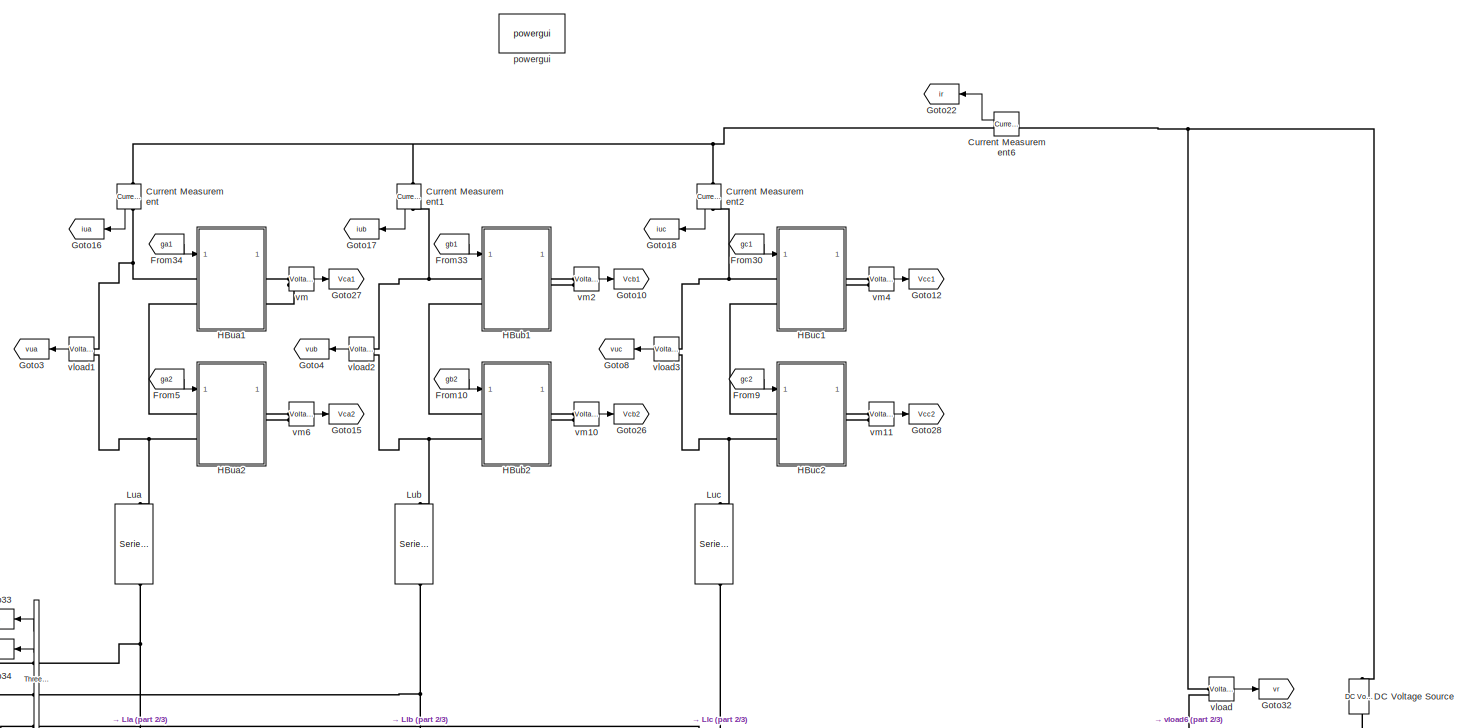
[diagram: Plant_Model/simulation/Subsystem - part 1/3, full width, top band]
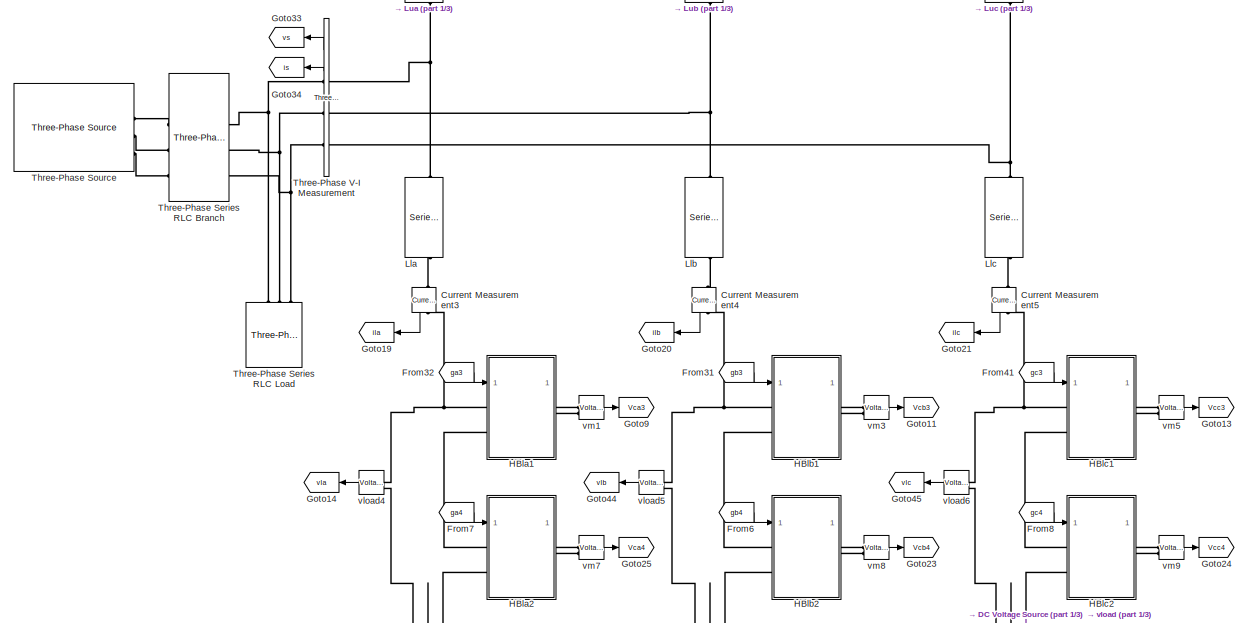
[diagram: Plant_Model/simulation/Subsystem - part 2/3, central region]
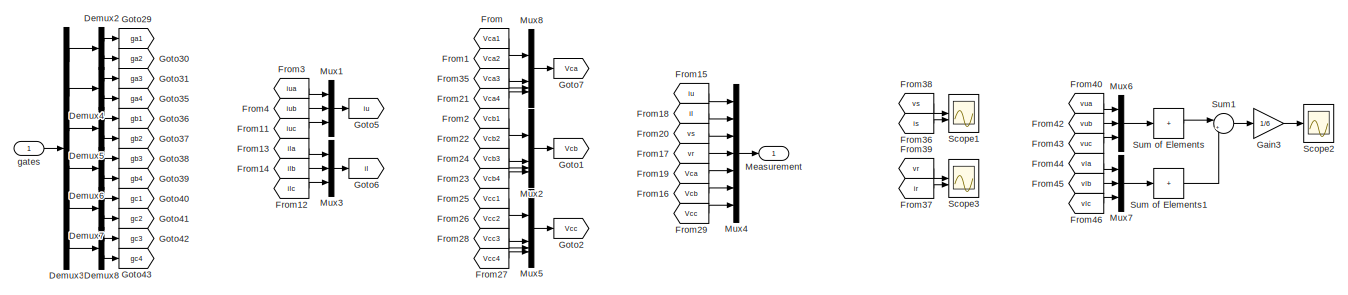
[diagram: Plant_Model/simulation/Subsystem - part 3/3, full width, bottom band]
BLOCK [SubSystem] Plant_Model/simulation/Subsystem
  NameLocation = top
BLOCK [Reference] Plant_Model/simulation/Subsystem/Current Measurement  REF=spsCurrentMeasurementLib/Current Measurement
  NameLocation = left
  SourceBlock = spsCurrentMeasurementLib/Current Measurement
  SourceType = Current Measurement
  UserDataPersistent = on
BLOCK [Reference] Plant_Model/simulation/Subsystem/Current Measurement1  REF=spsCurrentMeasurementLib/Current Measurement
  NameLocation = right
  SourceBlock = spsCurrentMeasurementLib/Current Measurement
  SourceType = Current Measurement
  UserDataPersistent = on
BLOCK [Reference] Plant_Model/simulation/Subsystem/Current Measurement2  REF=spsCurrentMeasurementLib/Current Measurement
  NameLocation = right
  SourceBlock = spsCurrentMeasurementLib/Current Measurement
  SourceType = Current Measurement
  UserDataPersistent = on
BLOCK [Reference] Plant_Model/simulation/Subsystem/Current Measurement3  REF=spsCurrentMeasurementLib/Current Measurement
  NameLocation = right
  SourceBlock = spsCurrentMeasurementLib/Current Measurement
  SourceType = Current Measurement
  UserDataPersistent = on
BLOCK [Reference] Plant_Model/simulation/Subsystem/Current Measurement4  REF=spsCurrentMeasurementLib/Current Measurement
  NameLocation = right
  SourceBlock = spsCurrentMeasurementLib/Current Measurement
  SourceType = Current Measurement
  UserDataPersistent = on
BLOCK [Reference] Plant_Model/simulation/Subsystem/Current Measurement5  REF=spsCurrentMeasurementLib/Current Measurement
  NameLocation = right
  SourceBlock = spsCurrentMeasurementLib/Current Measurement
  SourceType = Current Measurement
  UserDataPersistent = on
BLOCK [Reference] Plant_Model/simulation/Subsystem/Current Measurement6  REF=spsCurrentMeasurementLib/Current Measurement
  SourceBlock = spsCurrentMeasurementLib/Current Measurement
  SourceType = Current Measurement
  UserDataPersistent = on
BLOCK [Reference] Plant_Model/simulation/Subsystem/DC Voltage Source  REF=spsDCVoltageSourceLib/DC Voltage Source
  LibrarySourceBlock = sps_lib/Sources/DC Voltage Source
  NameLocation = right
  SourceBlock = spsDCVoltageSourceLib/DC Voltage Source
  SourceType = DC Voltage Source
BLOCK [Demux] Plant_Model/simulation/Subsystem/Demux2
  Outputs = [4 4]
BLOCK [Demux] Plant_Model/simulation/Subsystem/Demux3
  Outputs = [8 8 8 8 8 8]
BLOCK [Demux] Plant_Model/simulation/Subsystem/Demux4
  Outputs = [4 4]
BLOCK [Demux] Plant_Model/simulation/Subsystem/Demux5
  Outputs = [4 4]
BLOCK [Demux] Plant_Model/simulation/Subsystem/Demux6
  Outputs = [4 4]
BLOCK [Demux] Plant_Model/simulation/Subsystem/Demux7
  Outputs = [4 4]
BLOCK [Demux] Plant_Model/simulation/Subsystem/Demux8
  Outputs = [4 4]
BLOCK [From] Plant_Model/simulation/Subsystem/From
  GotoTag = Vca1
BLOCK [From] Plant_Model/simulation/Subsystem/From1
  GotoTag = Vca2
BLOCK [From] Plant_Model/simulation/Subsystem/From10
  GotoTag = gb2
BLOCK [From] Plant_Model/simulation/Subsystem/From11
  GotoTag = iuc
BLOCK [From] Plant_Model/simulation/Subsystem/From12
  GotoTag = ilc
BLOCK [From] Plant_Model/simulation/Subsystem/From13
  GotoTag = ila
BLOCK [From] Plant_Model/simulation/Subsystem/From14
  GotoTag = ilb
BLOCK [From] Plant_Model/simulation/Subsystem/From15
  GotoTag = iu
BLOCK [From] Plant_Model/simulation/Subsystem/From16
  GotoTag = Vcb
BLOCK [From] Plant_Model/simulation/Subsystem/From17
  GotoTag = vr
BLOCK [From] Plant_Model/simulation/Subsystem/From18
  GotoTag = il
BLOCK [From] Plant_Model/simulation/Subsystem/From19
  GotoTag = Vca
BLOCK [From] Plant_Model/simulation/Subsystem/From2
  GotoTag = Vcb1
BLOCK [From] Plant_Model/simulation/Subsystem/From20
  GotoTag = vs
BLOCK [From] Plant_Model/simulation/Subsystem/From21
  GotoTag = Vca4
BLOCK [From] Plant_Model/simulation/Subsystem/From22
  GotoTag = Vcb2
BLOCK [From] Plant_Model/simulation/Subsystem/From23
  GotoTag = Vcb4
BLOCK [From] Plant_Model/simulation/Subsystem/From24
  GotoTag = Vcb3
BLOCK [From] Plant_Model/simulation/Subsystem/From25
  GotoTag = Vcc1
BLOCK [From] Plant_Model/simulation/Subsystem/From26
  GotoTag = Vcc2
BLOCK [From] Plant_Model/simulation/Subsystem/From27
  GotoTag = Vcc4
BLOCK [From] Plant_Model/simulation/Subsystem/From28
  GotoTag = Vcc3
BLOCK [From] Plant_Model/simulation/Subsystem/From29
  GotoTag = Vcc
BLOCK [From] Plant_Model/simulation/Subsystem/From3
  GotoTag = iua
BLOCK [From] Plant_Model/simulation/Subsystem/From30
  GotoTag = gc1
BLOCK [From] Plant_Model/simulation/Subsystem/From31
  GotoTag = gb3
BLOCK [From] Plant_Model/simulation/Subsystem/From32
  GotoTag = ga3
BLOCK [From] Plant_Model/simulation/Subsystem/From33
  GotoTag = gb1
BLOCK [From] Plant_Model/simulation/Subsystem/From34
  GotoTag = ga1
BLOCK [From] Plant_Model/simulation/Subsystem/From35
  GotoTag = Vca3
BLOCK [From] Plant_Model/simulation/Subsystem/From36
  GotoTag = is
BLOCK [From] Plant_Model/simulation/Subsystem/From37
  GotoTag = ir
BLOCK [From] Plant_Model/simulation/Subsystem/From38
  GotoTag = vs
BLOCK [From] Plant_Model/simulation/Subsystem/From39
  GotoTag = vr
BLOCK [From] Plant_Model/simulation/Subsystem/From4
  GotoTag = iub
BLOCK [From] Plant_Model/simulation/Subsystem/From40
  GotoTag = vua
BLOCK [From] Plant_Model/simulation/Subsystem/From41
  GotoTag = gc3
BLOCK [From] Plant_Model/simulation/Subsystem/From42
  GotoTag = vub
BLOCK [From] Plant_Model/simulation/Subsystem/From43
  GotoTag = vuc
BLOCK [From] Plant_Model/simulation/Subsystem/From44
  GotoTag = vla
BLOCK [From] Plant_Model/simulation/Subsystem/From45
  GotoTag = vlb
BLOCK [From] Plant_Model/simulation/Subsystem/From46
  GotoTag = vlc
BLOCK [From] Plant_Model/simulation/Subsystem/From5
  GotoTag = ga2
BLOCK [From] Plant_Model/simulation/Subsystem/From6
  GotoTag = gb4
BLOCK [From] Plant_Model/simulation/Subsystem/From7
  GotoTag = ga4
BLOCK [From] Plant_Model/simulation/Subsystem/From8
  GotoTag = gc4
BLOCK [From] Plant_Model/simulation/Subsystem/From9
  GotoTag = gc2
BLOCK [Gain] Plant_Model/simulation/Subsystem/Gain3
  Gain = 1/6
  NameLocation = top
BLOCK [Goto] Plant_Model/simulation/Subsystem/Goto1
  GotoTag = Vcb
  NameLocation = top
BLOCK [Goto] Plant_Model/simulation/Subsystem/Goto10
  GotoTag = Vcb1
BLOCK [Goto] Plant_Model/simulation/Subsystem/Goto11
  GotoTag = Vcb3
BLOCK [Goto] Plant_Model/simulation/Subsystem/Goto12
  GotoTag = Vcc1
BLOCK [Goto] Plant_Model/simulation/Subsystem/Goto13
  GotoTag = Vcc3
BLOCK [Goto] Plant_Model/simulation/Subsystem/Goto14
  GotoTag = vla
BLOCK [Goto] Plant_Model/simulation/Subsystem/Goto15
  GotoTag = Vca2
BLOCK [Goto] Plant_Model/simulation/Subsystem/Goto16
  GotoTag = iua
BLOCK [Goto] Plant_Model/simulation/Subsystem/Goto17
  GotoTag = iub
BLOCK [Goto] Plant_Model/simulation/Subsystem/Goto18
  GotoTag = iuc
BLOCK [Goto] Plant_Model/simulation/Subsystem/Goto19
  GotoTag = ila
BLOCK [Goto] Plant_Model/simulation/Subsystem/Goto2
  GotoTag = Vcc
  NameLocation = top
BLOCK [Goto] Plant_Model/simulation/Subsystem/Goto20
  GotoTag = ilb
BLOCK [Goto] Plant_Model/simulation/Subsystem/Goto21
  GotoTag = ilc
BLOCK [Goto] Plant_Model/simulation/Subsystem/Goto22
  GotoTag = ir
  NameLocation = top
BLOCK [Goto] Plant_Model/simulation/Subsystem/Goto23
  GotoTag = Vcb4
BLOCK [Goto] Plant_Model/simulation/Subsystem/Goto24
  GotoTag = Vcc4
BLOCK [Goto] Plant_Model/simulation/Subsystem/Goto25
  GotoTag = Vca4
BLOCK [Goto] Plant_Model/simulation/Subsystem/Goto26
  GotoTag = Vcb2
BLOCK [Goto] Plant_Model/simulation/Subsystem/Goto27
  GotoTag = Vca1
BLOCK [Goto] Plant_Model/simulation/Subsystem/Goto28
  GotoTag = Vcc2
BLOCK [Goto] Plant_Model/simulation/Subsystem/Goto29
  GotoTag = ga1
BLOCK [Goto] Plant_Model/simulation/Subsystem/Goto3
  GotoTag = vua
BLOCK [Goto] Plant_Model/simulation/Subsystem/Goto30
  GotoTag = ga2
BLOCK [Goto] Plant_Model/simulation/Subsystem/Goto31
  GotoTag = ga3
BLOCK [Goto] Plant_Model/simulation/Subsystem/Goto32
  GotoTag = vr
BLOCK [Goto] Plant_Model/simulation/Subsystem/Goto33
  GotoTag = vs
BLOCK [Goto] Plant_Model/simulation/Subsystem/Goto34
  GotoTag = is
BLOCK [Goto] Plant_Model/simulation/Subsystem/Goto35
  GotoTag = ga4
BLOCK [Goto] Plant_Model/simulation/Subsystem/Goto36
  GotoTag = gb1
BLOCK [Goto] Plant_Model/simulation/Subsystem/Goto37
  GotoTag = gb2
BLOCK [Goto] Plant_Model/simulation/Subsystem/Goto38
  GotoTag = gb3
BLOCK [Goto] Plant_Model/simulation/Subsystem/Goto39
  GotoTag = gb4
BLOCK [Goto] Plant_Model/simulation/Subsystem/Goto4
  GotoTag = vub
BLOCK [Goto] Plant_Model/simulation/Subsystem/Goto40
  GotoTag = gc1
BLOCK [Goto] Plant_Model/simulation/Subsystem/Goto41
  GotoTag = gc2
BLOCK [Goto] Plant_Model/simulation/Subsystem/Goto42
  GotoTag = gc3
BLOCK [Goto] Plant_Model/simulation/Subsystem/Goto43
  GotoTag = gc4
BLOCK [Goto] Plant_Model/simulation/Subsystem/Goto44
  GotoTag = vlb
BLOCK [Goto] Plant_Model/simulation/Subsystem/Goto45
  GotoTag = vlc
BLOCK [Goto] Plant_Model/simulation/Subsystem/Goto5
  GotoTag = iu
  NameLocation = top
BLOCK [Goto] Plant_Model/simulation/Subsystem/Goto6
  GotoTag = il
  NameLocation = top
BLOCK [Goto] Plant_Model/simulation/Subsystem/Goto7
  GotoTag = Vca
  NameLocation = top
BLOCK [Goto] Plant_Model/simulation/Subsystem/Goto8
  GotoTag = vuc
BLOCK [Goto] Plant_Model/simulation/Subsystem/Goto9
  GotoTag = Vca3
BLOCK [SubSystem] Plant_Model/simulation/Subsystem/HBla1
BLOCK [Reference] Plant_Model/simulation/Subsystem/HBla1/Ch  REF=spsSeriesRLCBranchLib/Series RLC Branch
  NameLocation = left
  SourceBlock = spsSeriesRLCBranchLib/Series RLC Branch
  SourceType = Series RLC Branch
BLOCK [Reference] Plant_Model/simulation/Subsystem/HBla1/Cm  REF=spsSeriesRLCBranchLib/Series RLC Branch
  NameLocation = left
  SourceBlock = spsSeriesRLCBranchLib/Series RLC Branch
  SourceType = Series RLC Branch
BLOCK [PMIOPort] Plant_Model/simulation/Subsystem/HBla1/DC+
  Port = 3
  Side = Right
BLOCK [PMIOPort] Plant_Model/simulation/Subsystem/HBla1/DC-
  Port = 4
  Side = Right
BLOCK [Demux] Plant_Model/simulation/Subsystem/HBla1/Demux1
BLOCK [Reference] Plant_Model/simulation/Subsystem/HBla1/IGBT//Diode  REF=spsIGBTDiodeLib/IGBT//Diode
  NameLocation = right
  SourceBlock = spsIGBTDiodeLib/IGBT//Diode
  SourceType = IGBT/Diode
BLOCK [Reference] Plant_Model/simulation/Subsystem/HBla1/IGBT//Diode1  REF=spsIGBTDiodeLib/IGBT//Diode
  NameLocation = right
  SourceBlock = spsIGBTDiodeLib/IGBT//Diode
  SourceType = IGBT/Diode
BLOCK [Reference] Plant_Model/simulation/Subsystem/HBla1/IGBT//Diode2  REF=spsIGBTDiodeLib/IGBT//Diode
  NameLocation = right
  SourceBlock = spsIGBTDiodeLib/IGBT//Diode
  SourceType = IGBT/Diode
BLOCK [Reference] Plant_Model/simulation/Subsystem/HBla1/IGBT//Diode3  REF=spsIGBTDiodeLib/IGBT//Diode
  NameLocation = right
  SourceBlock = spsIGBTDiodeLib/IGBT//Diode
  SourceType = IGBT/Diode
BLOCK [Reference] Plant_Model/simulation/Subsystem/HBla1/Rdis  REF=spsSeriesRLCBranchLib/Series RLC Branch
  NameLocation = right
  SourceBlock = spsSeriesRLCBranchLib/Series RLC Branch
  SourceType = Series RLC Branch
BLOCK [PMIOPort] Plant_Model/simulation/Subsystem/HBla1/VA
  Side = Left
BLOCK [PMIOPort] Plant_Model/simulation/Subsystem/HBla1/VB
  Port = 2
  Side = Left
BLOCK [Inport] Plant_Model/simulation/Subsystem/HBla1/gates
BLOCK [SubSystem] Plant_Model/simulation/Subsystem/HBla2
BLOCK [Reference] Plant_Model/simulation/Subsystem/HBla2/Ch  REF=spsSeriesRLCBranchLib/Series RLC Branch
  NameLocation = left
  SourceBlock = spsSeriesRLCBranchLib/Series RLC Branch
  SourceType = Series RLC Branch
BLOCK [Reference] Plant_Model/simulation/Subsystem/HBla2/Cm  REF=spsSeriesRLCBranchLib/Series RLC Branch
  NameLocation = left
  SourceBlock = spsSeriesRLCBranchLib/Series RLC Branch
  SourceType = Series RLC Branch
BLOCK [PMIOPort] Plant_Model/simulation/Subsystem/HBla2/DC+
  Port = 3
  Side = Right
BLOCK [PMIOPort] Plant_Model/simulation/Subsystem/HBla2/DC-
  Port = 4
  Side = Right
BLOCK [Demux] Plant_Model/simulation/Subsystem/HBla2/Demux1
BLOCK [Reference] Plant_Model/simulation/Subsystem/HBla2/IGBT//Diode  REF=spsIGBTDiodeLib/IGBT//Diode
  NameLocation = right
  SourceBlock = spsIGBTDiodeLib/IGBT//Diode
  SourceType = IGBT/Diode
BLOCK [Reference] Plant_Model/simulation/Subsystem/HBla2/IGBT//Diode1  REF=spsIGBTDiodeLib/IGBT//Diode
  NameLocation = right
  SourceBlock = spsIGBTDiodeLib/IGBT//Diode
  SourceType = IGBT/Diode
BLOCK [Reference] Plant_Model/simulation/Subsystem/HBla2/IGBT//Diode2  REF=spsIGBTDiodeLib/IGBT//Diode
  NameLocation = right
  SourceBlock = spsIGBTDiodeLib/IGBT//Diode
  SourceType = IGBT/Diode
BLOCK [Reference] Plant_Model/simulation/Subsystem/HBla2/IGBT//Diode3  REF=spsIGBTDiodeLib/IGBT//Diode
  NameLocation = right
  SourceBlock = spsIGBTDiodeLib/IGBT//Diode
  SourceType = IGBT/Diode
BLOCK [Reference] Plant_Model/simulation/Subsystem/HBla2/Rdis  REF=spsSeriesRLCBranchLib/Series RLC Branch
  NameLocation = right
  SourceBlock = spsSeriesRLCBranchLib/Series RLC Branch
  SourceType = Series RLC Branch
BLOCK [PMIOPort] Plant_Model/simulation/Subsystem/HBla2/VA
  Side = Left
BLOCK [PMIOPort] Plant_Model/simulation/Subsystem/HBla2/VB
  Port = 2
  Side = Left
BLOCK [Inport] Plant_Model/simulation/Subsystem/HBla2/gates
BLOCK [SubSystem] Plant_Model/simulation/Subsystem/HBlb1
BLOCK [Reference] Plant_Model/simulation/Subsystem/HBlb1/Ch  REF=spsSeriesRLCBranchLib/Series RLC Branch
  NameLocation = left
  SourceBlock = spsSeriesRLCBranchLib/Series RLC Branch
  SourceType = Series RLC Branch
BLOCK [Reference] Plant_Model/simulation/Subsystem/HBlb1/Cm  REF=spsSeriesRLCBranchLib/Series RLC Branch
  NameLocation = left
  SourceBlock = spsSeriesRLCBranchLib/Series RLC Branch
  SourceType = Series RLC Branch
BLOCK [PMIOPort] Plant_Model/simulation/Subsystem/HBlb1/DC+
  Port = 3
  Side = Right
BLOCK [PMIOPort] Plant_Model/simulation/Subsystem/HBlb1/DC-
  Port = 4
  Side = Right
BLOCK [Demux] Plant_Model/simulation/Subsystem/HBlb1/Demux1
BLOCK [Reference] Plant_Model/simulation/Subsystem/HBlb1/IGBT//Diode  REF=spsIGBTDiodeLib/IGBT//Diode
  NameLocation = right
  SourceBlock = spsIGBTDiodeLib/IGBT//Diode
  SourceType = IGBT/Diode
BLOCK [Reference] Plant_Model/simulation/Subsystem/HBlb1/IGBT//Diode1  REF=spsIGBTDiodeLib/IGBT//Diode
  NameLocation = right
  SourceBlock = spsIGBTDiodeLib/IGBT//Diode
  SourceType = IGBT/Diode
BLOCK [Reference] Plant_Model/simulation/Subsystem/HBlb1/IGBT//Diode2  REF=spsIGBTDiodeLib/IGBT//Diode
  NameLocation = right
  SourceBlock = spsIGBTDiodeLib/IGBT//Diode
  SourceType = IGBT/Diode
BLOCK [Reference] Plant_Model/simulation/Subsystem/HBlb1/IGBT//Diode3  REF=spsIGBTDiodeLib/IGBT//Diode
  NameLocation = right
  SourceBlock = spsIGBTDiodeLib/IGBT//Diode
  SourceType = IGBT/Diode
BLOCK [Reference] Plant_Model/simulation/Subsystem/HBlb1/Rdis  REF=spsSeriesRLCBranchLib/Series RLC Branch
  NameLocation = right
  SourceBlock = spsSeriesRLCBranchLib/Series RLC Branch
  SourceType = Series RLC Branch
BLOCK [PMIOPort] Plant_Model/simulation/Subsystem/HBlb1/VA
  Side = Left
BLOCK [PMIOPort] Plant_Model/simulation/Subsystem/HBlb1/VB
  Port = 2
  Side = Left
BLOCK [Inport] Plant_Model/simulation/Subsystem/HBlb1/gates
BLOCK [SubSystem] Plant_Model/simulation/Subsystem/HBlb2
BLOCK [Reference] Plant_Model/simulation/Subsystem/HBlb2/Ch  REF=spsSeriesRLCBranchLib/Series RLC Branch
  NameLocation = left
  SourceBlock = spsSeriesRLCBranchLib/Series RLC Branch
  SourceType = Series RLC Branch
BLOCK [Reference] Plant_Model/simulation/Subsystem/HBlb2/Cm  REF=spsSeriesRLCBranchLib/Series RLC Branch
  NameLocation = left
  SourceBlock = spsSeriesRLCBranchLib/Series RLC Branch
  SourceType = Series RLC Branch
BLOCK [PMIOPort] Plant_Model/simulation/Subsystem/HBlb2/DC+
  Port = 3
  Side = Right
BLOCK [PMIOPort] Plant_Model/simulation/Subsystem/HBlb2/DC-
  Port = 4
  Side = Right
BLOCK [Demux] Plant_Model/simulation/Subsystem/HBlb2/Demux1
BLOCK [Reference] Plant_Model/simulation/Subsystem/HBlb2/IGBT//Diode  REF=spsIGBTDiodeLib/IGBT//Diode
  NameLocation = right
  SourceBlock = spsIGBTDiodeLib/IGBT//Diode
  SourceType = IGBT/Diode
BLOCK [Reference] Plant_Model/simulation/Subsystem/HBlb2/IGBT//Diode1  REF=spsIGBTDiodeLib/IGBT//Diode
  NameLocation = right
  SourceBlock = spsIGBTDiodeLib/IGBT//Diode
  SourceType = IGBT/Diode
BLOCK [Reference] Plant_Model/simulation/Subsystem/HBlb2/IGBT//Diode2  REF=spsIGBTDiodeLib/IGBT//Diode
  NameLocation = right
  SourceBlock = spsIGBTDiodeLib/IGBT//Diode
  SourceType = IGBT/Diode
BLOCK [Reference] Plant_Model/simulation/Subsystem/HBlb2/IGBT//Diode3  REF=spsIGBTDiodeLib/IGBT//Diode
  NameLocation = right
  SourceBlock = spsIGBTDiodeLib/IGBT//Diode
  SourceType = IGBT/Diode
BLOCK [Reference] Plant_Model/simulation/Subsystem/HBlb2/Rdis  REF=spsSeriesRLCBranchLib/Series RLC Branch
  NameLocation = right
  SourceBlock = spsSeriesRLCBranchLib/Series RLC Branch
  SourceType = Series RLC Branch
BLOCK [PMIOPort] Plant_Model/simulation/Subsystem/HBlb2/VA
  Side = Left
BLOCK [PMIOPort] Plant_Model/simulation/Subsystem/HBlb2/VB
  Port = 2
  Side = Left
BLOCK [Inport] Plant_Model/simulation/Subsystem/HBlb2/gates
BLOCK [SubSystem] Plant_Model/simulation/Subsystem/HBlc1
BLOCK [Reference] Plant_Model/simulation/Subsystem/HBlc1/Ch  REF=spsSeriesRLCBranchLib/Series RLC Branch
  NameLocation = left
  SourceBlock = spsSeriesRLCBranchLib/Series RLC Branch
  SourceType = Series RLC Branch
BLOCK [Reference] Plant_Model/simulation/Subsystem/HBlc1/Cm  REF=spsSeriesRLCBranchLib/Series RLC Branch
  NameLocation = left
  SourceBlock = spsSeriesRLCBranchLib/Series RLC Branch
  SourceType = Series RLC Branch
BLOCK [PMIOPort] Plant_Model/simulation/Subsystem/HBlc1/DC+
  Port = 3
  Side = Right
BLOCK [PMIOPort] Plant_Model/simulation/Subsystem/HBlc1/DC-
  Port = 4
  Side = Right
BLOCK [Demux] Plant_Model/simulation/Subsystem/HBlc1/Demux1
BLOCK [Reference] Plant_Model/simulation/Subsystem/HBlc1/IGBT//Diode  REF=spsIGBTDiodeLib/IGBT//Diode
  NameLocation = right
  SourceBlock = spsIGBTDiodeLib/IGBT//Diode
  SourceType = IGBT/Diode
BLOCK [Reference] Plant_Model/simulation/Subsystem/HBlc1/IGBT//Diode1  REF=spsIGBTDiodeLib/IGBT//Diode
  NameLocation = right
  SourceBlock = spsIGBTDiodeLib/IGBT//Diode
  SourceType = IGBT/Diode
BLOCK [Reference] Plant_Model/simulation/Subsystem/HBlc1/IGBT//Diode2  REF=spsIGBTDiodeLib/IGBT//Diode
  NameLocation = right
  SourceBlock = spsIGBTDiodeLib/IGBT//Diode
  SourceType = IGBT/Diode
BLOCK [Reference] Plant_Model/simulation/Subsystem/HBlc1/IGBT//Diode3  REF=spsIGBTDiodeLib/IGBT//Diode
  NameLocation = right
  SourceBlock = spsIGBTDiodeLib/IGBT//Diode
  SourceType = IGBT/Diode
BLOCK [Reference] Plant_Model/simulation/Subsystem/HBlc1/Rdis  REF=spsSeriesRLCBranchLib/Series RLC Branch
  NameLocation = right
  SourceBlock = spsSeriesRLCBranchLib/Series RLC Branch
  SourceType = Series RLC Branch
BLOCK [PMIOPort] Plant_Model/simulation/Subsystem/HBlc1/VA
  Side = Left
BLOCK [PMIOPort] Plant_Model/simulation/Subsystem/HBlc1/VB
  Port = 2
  Side = Left
BLOCK [Inport] Plant_Model/simulation/Subsystem/HBlc1/gates
BLOCK [SubSystem] Plant_Model/simulation/Subsystem/HBlc2
BLOCK [Reference] Plant_Model/simulation/Subsystem/HBlc2/Ch  REF=spsSeriesRLCBranchLib/Series RLC Branch
  NameLocation = left
  SourceBlock = spsSeriesRLCBranchLib/Series RLC Branch
  SourceType = Series RLC Branch
BLOCK [Reference] Plant_Model/simulation/Subsystem/HBlc2/Cm  REF=spsSeriesRLCBranchLib/Series RLC Branch
  NameLocation = left
  SourceBlock = spsSeriesRLCBranchLib/Series RLC Branch
  SourceType = Series RLC Branch
BLOCK [PMIOPort] Plant_Model/simulation/Subsystem/HBlc2/DC+
  Port = 3
  Side = Right
BLOCK [PMIOPort] Plant_Model/simulation/Subsystem/HBlc2/DC-
  Port = 4
  Side = Right
BLOCK [Demux] Plant_Model/simulation/Subsystem/HBlc2/Demux1
BLOCK [Reference] Plant_Model/simulation/Subsystem/HBlc2/IGBT//Diode  REF=spsIGBTDiodeLib/IGBT//Diode
  NameLocation = right
  SourceBlock = spsIGBTDiodeLib/IGBT//Diode
  SourceType = IGBT/Diode
BLOCK [Reference] Plant_Model/simulation/Subsystem/HBlc2/IGBT//Diode1  REF=spsIGBTDiodeLib/IGBT//Diode
  NameLocation = right
  SourceBlock = spsIGBTDiodeLib/IGBT//Diode
  SourceType = IGBT/Diode
BLOCK [Reference] Plant_Model/simulation/Subsystem/HBlc2/IGBT//Diode2  REF=spsIGBTDiodeLib/IGBT//Diode
  NameLocation = right
  SourceBlock = spsIGBTDiodeLib/IGBT//Diode
  SourceType = IGBT/Diode
BLOCK [Reference] Plant_Model/simulation/Subsystem/HBlc2/IGBT//Diode3  REF=spsIGBTDiodeLib/IGBT//Diode
  NameLocation = right
  SourceBlock = spsIGBTDiodeLib/IGBT//Diode
  SourceType = IGBT/Diode
BLOCK [Reference] Plant_Model/simulation/Subsystem/HBlc2/Rdis  REF=spsSeriesRLCBranchLib/Series RLC Branch
  NameLocation = right
  SourceBlock = spsSeriesRLCBranchLib/Series RLC Branch
  SourceType = Series RLC Branch
BLOCK [PMIOPort] Plant_Model/simulation/Subsystem/HBlc2/VA
  Side = Left
BLOCK [PMIOPort] Plant_Model/simulation/Subsystem/HBlc2/VB
  Port = 2
  Side = Left
BLOCK [Inport] Plant_Model/simulation/Subsystem/HBlc2/gates
BLOCK [SubSystem] Plant_Model/simulation/Subsystem/HBua1
BLOCK [Reference] Plant_Model/simulation/Subsystem/HBua1/Ch  REF=spsSeriesRLCBranchLib/Series RLC Branch
  NameLocation = left
  SourceBlock = spsSeriesRLCBranchLib/Series RLC Branch
  SourceType = Series RLC Branch
BLOCK [Reference] Plant_Model/simulation/Subsystem/HBua1/Cm  REF=spsSeriesRLCBranchLib/Series RLC Branch
  NameLocation = left
  SourceBlock = spsSeriesRLCBranchLib/Series RLC Branch
  SourceType = Series RLC Branch
BLOCK [PMIOPort] Plant_Model/simulation/Subsystem/HBua1/DC+
  Port = 3
  Side = Right
BLOCK [PMIOPort] Plant_Model/simulation/Subsystem/HBua1/DC-
  Port = 4
  Side = Right
BLOCK [Demux] Plant_Model/simulation/Subsystem/HBua1/Demux1
BLOCK [Reference] Plant_Model/simulation/Subsystem/HBua1/IGBT//Diode  REF=spsIGBTDiodeLib/IGBT//Diode
  NameLocation = right
  SourceBlock = spsIGBTDiodeLib/IGBT//Diode
  SourceType = IGBT/Diode
BLOCK [Reference] Plant_Model/simulation/Subsystem/HBua1/IGBT//Diode1  REF=spsIGBTDiodeLib/IGBT//Diode
  NameLocation = right
  SourceBlock = spsIGBTDiodeLib/IGBT//Diode
  SourceType = IGBT/Diode
BLOCK [Reference] Plant_Model/simulation/Subsystem/HBua1/IGBT//Diode2  REF=spsIGBTDiodeLib/IGBT//Diode
  NameLocation = right
  SourceBlock = spsIGBTDiodeLib/IGBT//Diode
  SourceType = IGBT/Diode
BLOCK [Reference] Plant_Model/simulation/Subsystem/HBua1/IGBT//Diode3  REF=spsIGBTDiodeLib/IGBT//Diode
  NameLocation = right
  SourceBlock = spsIGBTDiodeLib/IGBT//Diode
  SourceType = IGBT/Diode
BLOCK [Reference] Plant_Model/simulation/Subsystem/HBua1/Rdis  REF=spsSeriesRLCBranchLib/Series RLC Branch
  NameLocation = right
  SourceBlock = spsSeriesRLCBranchLib/Series RLC Branch
  SourceType = Series RLC Branch
BLOCK [PMIOPort] Plant_Model/simulation/Subsystem/HBua1/VA
  Side = Left
BLOCK [PMIOPort] Plant_Model/simulation/Subsystem/HBua1/VB
  Port = 2
  Side = Left
BLOCK [Inport] Plant_Model/simulation/Subsystem/HBua1/gates
BLOCK [SubSystem] Plant_Model/simulation/Subsystem/HBua2
BLOCK [Reference] Plant_Model/simulation/Subsystem/HBua2/Ch  REF=spsSeriesRLCBranchLib/Series RLC Branch
  NameLocation = left
  SourceBlock = spsSeriesRLCBranchLib/Series RLC Branch
  SourceType = Series RLC Branch
BLOCK [Reference] Plant_Model/simulation/Subsystem/HBua2/Cm  REF=spsSeriesRLCBranchLib/Series RLC Branch
  NameLocation = left
  SourceBlock = spsSeriesRLCBranchLib/Series RLC Branch
  SourceType = Series RLC Branch
BLOCK [PMIOPort] Plant_Model/simulation/Subsystem/HBua2/DC+
  Port = 3
  Side = Right
BLOCK [PMIOPort] Plant_Model/simulation/Subsystem/HBua2/DC-
  Port = 4
  Side = Right
BLOCK [Demux] Plant_Model/simulation/Subsystem/HBua2/Demux1
BLOCK [Reference] Plant_Model/simulation/Subsystem/HBua2/IGBT//Diode  REF=spsIGBTDiodeLib/IGBT//Diode
  NameLocation = right
  SourceBlock = spsIGBTDiodeLib/IGBT//Diode
  SourceType = IGBT/Diode
BLOCK [Reference] Plant_Model/simulation/Subsystem/HBua2/IGBT//Diode1  REF=spsIGBTDiodeLib/IGBT//Diode
  NameLocation = right
  SourceBlock = spsIGBTDiodeLib/IGBT//Diode
  SourceType = IGBT/Diode
BLOCK [Reference] Plant_Model/simulation/Subsystem/HBua2/IGBT//Diode2  REF=spsIGBTDiodeLib/IGBT//Diode
  NameLocation = right
  SourceBlock = spsIGBTDiodeLib/IGBT//Diode
  SourceType = IGBT/Diode
BLOCK [Reference] Plant_Model/simulation/Subsystem/HBua2/IGBT//Diode3  REF=spsIGBTDiodeLib/IGBT//Diode
  NameLocation = right
  SourceBlock = spsIGBTDiodeLib/IGBT//Diode
  SourceType = IGBT/Diode
BLOCK [Reference] Plant_Model/simulation/Subsystem/HBua2/Rdis  REF=spsSeriesRLCBranchLib/Series RLC Branch
  NameLocation = right
  SourceBlock = spsSeriesRLCBranchLib/Series RLC Branch
  SourceType = Series RLC Branch
BLOCK [PMIOPort] Plant_Model/simulation/Subsystem/HBua2/VA
  Side = Left
BLOCK [PMIOPort] Plant_Model/simulation/Subsystem/HBua2/VB
  Port = 2
  Side = Left
BLOCK [Inport] Plant_Model/simulation/Subsystem/HBua2/gates
BLOCK [SubSystem] Plant_Model/simulation/Subsystem/HBub1
BLOCK [Reference] Plant_Model/simulation/Subsystem/HBub1/Ch  REF=spsSeriesRLCBranchLib/Series RLC Branch
  NameLocation = left
  SourceBlock = spsSeriesRLCBranchLib/Series RLC Branch
  SourceType = Series RLC Branch
BLOCK [Reference] Plant_Model/simulation/Subsystem/HBub1/Cm  REF=spsSeriesRLCBranchLib/Series RLC Branch
  NameLocation = left
  SourceBlock = spsSeriesRLCBranchLib/Series RLC Branch
  SourceType = Series RLC Branch
BLOCK [PMIOPort] Plant_Model/simulation/Subsystem/HBub1/DC+
  Port = 3
  Side = Right
BLOCK [PMIOPort] Plant_Model/simulation/Subsystem/HBub1/DC-
  Port = 4
  Side = Right
BLOCK [Demux] Plant_Model/simulation/Subsystem/HBub1/Demux1
BLOCK [Reference] Plant_Model/simulation/Subsystem/HBub1/IGBT//Diode  REF=spsIGBTDiodeLib/IGBT//Diode
  NameLocation = right
  SourceBlock = spsIGBTDiodeLib/IGBT//Diode
  SourceType = IGBT/Diode
BLOCK [Reference] Plant_Model/simulation/Subsystem/HBub1/IGBT//Diode1  REF=spsIGBTDiodeLib/IGBT//Diode
  NameLocation = right
  SourceBlock = spsIGBTDiodeLib/IGBT//Diode
  SourceType = IGBT/Diode
BLOCK [Reference] Plant_Model/simulation/Subsystem/HBub1/IGBT//Diode2  REF=spsIGBTDiodeLib/IGBT//Diode
  NameLocation = right
  SourceBlock = spsIGBTDiodeLib/IGBT//Diode
  SourceType = IGBT/Diode
BLOCK [Reference] Plant_Model/simulation/Subsystem/HBub1/IGBT//Diode3  REF=spsIGBTDiodeLib/IGBT//Diode
  NameLocation = right
  SourceBlock = spsIGBTDiodeLib/IGBT//Diode
  SourceType = IGBT/Diode
BLOCK [Reference] Plant_Model/simulation/Subsystem/HBub1/Rdis  REF=spsSeriesRLCBranchLib/Series RLC Branch
  NameLocation = right
  SourceBlock = spsSeriesRLCBranchLib/Series RLC Branch
  SourceType = Series RLC Branch
BLOCK [PMIOPort] Plant_Model/simulation/Subsystem/HBub1/VA
  Side = Left
BLOCK [PMIOPort] Plant_Model/simulation/Subsystem/HBub1/VB
  Port = 2
  Side = Left
BLOCK [Inport] Plant_Model/simulation/Subsystem/HBub1/gates
BLOCK [SubSystem] Plant_Model/simulation/Subsystem/HBub2
BLOCK [Reference] Plant_Model/simulation/Subsystem/HBub2/Ch  REF=spsSeriesRLCBranchLib/Series RLC Branch
  NameLocation = left
  SourceBlock = spsSeriesRLCBranchLib/Series RLC Branch
  SourceType = Series RLC Branch
BLOCK [Reference] Plant_Model/simulation/Subsystem/HBub2/Cm  REF=spsSeriesRLCBranchLib/Series RLC Branch
  NameLocation = left
  SourceBlock = spsSeriesRLCBranchLib/Series RLC Branch
  SourceType = Series RLC Branch
BLOCK [PMIOPort] Plant_Model/simulation/Subsystem/HBub2/DC+
  Port = 3
  Side = Right
BLOCK [PMIOPort] Plant_Model/simulation/Subsystem/HBub2/DC-
  Port = 4
  Side = Right
BLOCK [Demux] Plant_Model/simulation/Subsystem/HBub2/Demux1
BLOCK [Reference] Plant_Model/simulation/Subsystem/HBub2/IGBT//Diode  REF=spsIGBTDiodeLib/IGBT//Diode
  NameLocation = right
  SourceBlock = spsIGBTDiodeLib/IGBT//Diode
  SourceType = IGBT/Diode
BLOCK [Reference] Plant_Model/simulation/Subsystem/HBub2/IGBT//Diode1  REF=spsIGBTDiodeLib/IGBT//Diode
  NameLocation = right
  SourceBlock = spsIGBTDiodeLib/IGBT//Diode
  SourceType = IGBT/Diode
BLOCK [Reference] Plant_Model/simulation/Subsystem/HBub2/IGBT//Diode2  REF=spsIGBTDiodeLib/IGBT//Diode
  NameLocation = right
  SourceBlock = spsIGBTDiodeLib/IGBT//Diode
  SourceType = IGBT/Diode
BLOCK [Reference] Plant_Model/simulation/Subsystem/HBub2/IGBT//Diode3  REF=spsIGBTDiodeLib/IGBT//Diode
  NameLocation = right
  SourceBlock = spsIGBTDiodeLib/IGBT//Diode
  SourceType = IGBT/Diode
BLOCK [Reference] Plant_Model/simulation/Subsystem/HBub2/Rdis  REF=spsSeriesRLCBranchLib/Series RLC Branch
  NameLocation = right
  SourceBlock = spsSeriesRLCBranchLib/Series RLC Branch
  SourceType = Series RLC Branch
BLOCK [PMIOPort] Plant_Model/simulation/Subsystem/HBub2/VA
  Side = Left
BLOCK [PMIOPort] Plant_Model/simulation/Subsystem/HBub2/VB
  Port = 2
  Side = Left
BLOCK [Inport] Plant_Model/simulation/Subsystem/HBub2/gates
BLOCK [SubSystem] Plant_Model/simulation/Subsystem/HBuc1
BLOCK [Reference] Plant_Model/simulation/Subsystem/HBuc1/Ch  REF=spsSeriesRLCBranchLib/Series RLC Branch
  NameLocation = left
  SourceBlock = spsSeriesRLCBranchLib/Series RLC Branch
  SourceType = Series RLC Branch
BLOCK [Reference] Plant_Model/simulation/Subsystem/HBuc1/Cm  REF=spsSeriesRLCBranchLib/Series RLC Branch
  NameLocation = left
  SourceBlock = spsSeriesRLCBranchLib/Series RLC Branch
  SourceType = Series RLC Branch
BLOCK [PMIOPort] Plant_Model/simulation/Subsystem/HBuc1/DC+
  Port = 3
  Side = Right
BLOCK [PMIOPort] Plant_Model/simulation/Subsystem/HBuc1/DC-
  Port = 4
  Side = Right
BLOCK [Demux] Plant_Model/simulation/Subsystem/HBuc1/Demux1
BLOCK [Reference] Plant_Model/simulation/Subsystem/HBuc1/IGBT//Diode  REF=spsIGBTDiodeLib/IGBT//Diode
  NameLocation = right
  SourceBlock = spsIGBTDiodeLib/IGBT//Diode
  SourceType = IGBT/Diode
BLOCK [Reference] Plant_Model/simulation/Subsystem/HBuc1/IGBT//Diode1  REF=spsIGBTDiodeLib/IGBT//Diode
  NameLocation = right
  SourceBlock = spsIGBTDiodeLib/IGBT//Diode
  SourceType = IGBT/Diode
BLOCK [Reference] Plant_Model/simulation/Subsystem/HBuc1/IGBT//Diode2  REF=spsIGBTDiodeLib/IGBT//Diode
  NameLocation = right
  SourceBlock = spsIGBTDiodeLib/IGBT//Diode
  SourceType = IGBT/Diode
BLOCK [Reference] Plant_Model/simulation/Subsystem/HBuc1/IGBT//Diode3  REF=spsIGBTDiodeLib/IGBT//Diode
  NameLocation = right
  SourceBlock = spsIGBTDiodeLib/IGBT//Diode
  SourceType = IGBT/Diode
BLOCK [Reference] Plant_Model/simulation/Subsystem/HBuc1/Rdis  REF=spsSeriesRLCBranchLib/Series RLC Branch
  NameLocation = right
  SourceBlock = spsSeriesRLCBranchLib/Series RLC Branch
  SourceType = Series RLC Branch
BLOCK [PMIOPort] Plant_Model/simulation/Subsystem/HBuc1/VA
  Side = Left
BLOCK [PMIOPort] Plant_Model/simulation/Subsystem/HBuc1/VB
  Port = 2
  Side = Left
BLOCK [Inport] Plant_Model/simulation/Subsystem/HBuc1/gates
BLOCK [SubSystem] Plant_Model/simulation/Subsystem/HBuc2
BLOCK [Reference] Plant_Model/simulation/Subsystem/HBuc2/Ch  REF=spsSeriesRLCBranchLib/Series RLC Branch
  NameLocation = left
  SourceBlock = spsSeriesRLCBranchLib/Series RLC Branch
  SourceType = Series RLC Branch
BLOCK [Reference] Plant_Model/simulation/Subsystem/HBuc2/Cm  REF=spsSeriesRLCBranchLib/Series RLC Branch
  NameLocation = left
  SourceBlock = spsSeriesRLCBranchLib/Series RLC Branch
  SourceType = Series RLC Branch
BLOCK [PMIOPort] Plant_Model/simulation/Subsystem/HBuc2/DC+
  Port = 3
  Side = Right
BLOCK [PMIOPort] Plant_Model/simulation/Subsystem/HBuc2/DC-
  Port = 4
  Side = Right
BLOCK [Demux] Plant_Model/simulation/Subsystem/HBuc2/Demux1
BLOCK [Reference] Plant_Model/simulation/Subsystem/HBuc2/IGBT//Diode  REF=spsIGBTDiodeLib/IGBT//Diode
  NameLocation = right
  SourceBlock = spsIGBTDiodeLib/IGBT//Diode
  SourceType = IGBT/Diode
BLOCK [Reference] Plant_Model/simulation/Subsystem/HBuc2/IGBT//Diode1  REF=spsIGBTDiodeLib/IGBT//Diode
  NameLocation = right
  SourceBlock = spsIGBTDiodeLib/IGBT//Diode
  SourceType = IGBT/Diode
BLOCK [Reference] Plant_Model/simulation/Subsystem/HBuc2/IGBT//Diode2  REF=spsIGBTDiodeLib/IGBT//Diode
  NameLocation = right
  SourceBlock = spsIGBTDiodeLib/IGBT//Diode
  SourceType = IGBT/Diode
BLOCK [Reference] Plant_Model/simulation/Subsystem/HBuc2/IGBT//Diode3  REF=spsIGBTDiodeLib/IGBT//Diode
  NameLocation = right
  SourceBlock = spsIGBTDiodeLib/IGBT//Diode
  SourceType = IGBT/Diode
BLOCK [Reference] Plant_Model/simulation/Subsystem/HBuc2/Rdis  REF=spsSeriesRLCBranchLib/Series RLC Branch
  NameLocation = right
  SourceBlock = spsSeriesRLCBranchLib/Series RLC Branch
  SourceType = Series RLC Branch
BLOCK [PMIOPort] Plant_Model/simulation/Subsystem/HBuc2/VA
  Side = Left
BLOCK [PMIOPort] Plant_Model/simulation/Subsystem/HBuc2/VB
  Port = 2
  Side = Left
BLOCK [Inport] Plant_Model/simulation/Subsystem/HBuc2/gates
BLOCK [Reference] Plant_Model/simulation/Subsystem/Lla  REF=spsSeriesRLCBranchLib/Series RLC Branch
  NameLocation = right
  SourceBlock = spsSeriesRLCBranchLib/Series RLC Branch
  SourceType = Series RLC Branch
BLOCK [Reference] Plant_Model/simulation/Subsystem/Llb  REF=spsSeriesRLCBranchLib/Series RLC Branch
  NameLocation = right
  SourceBlock = spsSeriesRLCBranchLib/Series RLC Branch
  SourceType = Series RLC Branch
BLOCK [Reference] Plant_Model/simulation/Subsystem/Llc  REF=spsSeriesRLCBranchLib/Series RLC Branch
  NameLocation = right
  SourceBlock = spsSeriesRLCBranchLib/Series RLC Branch
  SourceType = Series RLC Branch
BLOCK [Reference] Plant_Model/simulation/Subsystem/Lua  REF=spsSeriesRLCBranchLib/Series RLC Branch
  NameLocation = right
  SourceBlock = spsSeriesRLCBranchLib/Series RLC Branch
  SourceType = Series RLC Branch
BLOCK [Reference] Plant_Model/simulation/Subsystem/Lub  REF=spsSeriesRLCBranchLib/Series RLC Branch
  NameLocation = right
  SourceBlock = spsSeriesRLCBranchLib/Series RLC Branch
  SourceType = Series RLC Branch
BLOCK [Reference] Plant_Model/simulation/Subsystem/Luc  REF=spsSeriesRLCBranchLib/Series RLC Branch
  NameLocation = right
  SourceBlock = spsSeriesRLCBranchLib/Series RLC Branch
  SourceType = Series RLC Branch
BLOCK [Outport] Plant_Model/simulation/Subsystem/Measurement
BLOCK [Mux] Plant_Model/simulation/Subsystem/Mux1
  DisplayOption = bar
  Inputs = 3
BLOCK [Mux] Plant_Model/simulation/Subsystem/Mux2
  DisplayOption = bar
BLOCK [Mux] Plant_Model/simulation/Subsystem/Mux3
  DisplayOption = bar
  Inputs = 3
BLOCK [Mux] Plant_Model/simulation/Subsystem/Mux4
  DisplayOption = bar
  Inputs = 7
BLOCK [Mux] Plant_Model/simulation/Subsystem/Mux5
  DisplayOption = bar
BLOCK [Mux] Plant_Model/simulation/Subsystem/Mux6
  DisplayOption = bar
  Inputs = 3
BLOCK [Mux] Plant_Model/simulation/Subsystem/Mux7
  DisplayOption = bar
  Inputs = 3
BLOCK [Mux] Plant_Model/simulation/Subsystem/Mux8
  DisplayOption = bar
BLOCK [Scope] Plant_Model/simulation/Subsystem/Scope1
  Floating = off
  NumInputPorts = 2
  ScopeSpecificationString = Simulink.scopes.TimeScopeBlockCfg('CurrentConfiguration', extmgr.ConfigurationSet(extmgr.Configuration('Core','General UI',true),extmgr.Configuration('Core','Source UI',true),extmgr.Configuration('Sources','WiredSimulink',true,'DataLoggingVariableName','vs_is','DataLoggingSaveFormat','StructureWithTime','DataLogging',true),extmgr.Configuration('Visuals','Time Domain',true,'SerializedDisplays',{str...<+2385ch>
BLOCK [Scope] Plant_Model/simulation/Subsystem/Scope2
  Floating = off
  NumInputPorts = 1
  ScopeSpecificationString = Simulink.scopes.TimeScopeBlockCfg('CurrentConfiguration', extmgr.ConfigurationSet(extmgr.Configuration('Core','General UI',true),extmgr.Configuration('Core','Source UI',true),extmgr.Configuration('Sources','WiredSimulink',true,'DataLoggingVariableName','vn','DataLoggingSaveFormat','StructureWithTime','DataLogging',true),extmgr.Configuration('Visuals','Time Domain',true,'SerializedDisplays',{struct...<+1662ch>
BLOCK [Scope] Plant_Model/simulation/Subsystem/Scope3
  Floating = off
  NumInputPorts = 2
  ScopeSpecificationString = Simulink.scopes.TimeScopeBlockCfg('CurrentConfiguration', extmgr.ConfigurationSet(extmgr.Configuration('Core','General UI',true),extmgr.Configuration('Core','Source UI',true),extmgr.Configuration('Sources','WiredSimulink',true,'DataLoggingVariableName','vr_ir','DataLoggingSaveFormat','StructureWithTime','DataLogging',true),extmgr.Configuration('Visuals','Time Domain',true,'SerializedDisplays',{str...<+2340ch>
BLOCK [Sum] Plant_Model/simulation/Subsystem/Sum of Elements
  IconShape = rectangular
  Inputs = +
  NameLocation = top
BLOCK [Sum] Plant_Model/simulation/Subsystem/Sum of Elements1
  IconShape = rectangular
  Inputs = +
  NameLocation = top
BLOCK [Sum] Plant_Model/simulation/Subsystem/Sum1
  Inputs = |+-
  NameLocation = top
BLOCK [Reference] Plant_Model/simulation/Subsystem/Three-Phase Series RLC Branch  REF=spsThreePhaseSeriesRLCBranchLib/Three-Phase
Series RLC Branch
  AttributesFormatString = \n
  LibrarySourceBlock = sps_lib/Passives/Three-Phase\nSeries RLC Branch
  NameLocation = top
  SourceBlock = spsThreePhaseSeriesRLCBranchLib/Three-Phase\nSeries RLC Branch
  SourceType = Three-Phase Series RLC Branch
BLOCK [Reference] Plant_Model/simulation/Subsystem/Three-Phase Series RLC Load  REF=spsThreePhaseSeriesRLCLoadLib/Three-Phase
Series RLC Load
  AttributesFormatString = \n
  LibrarySourceBlock = sps_lib/Passives/Three-Phase\nSeries RLC Load
  SourceBlock = spsThreePhaseSeriesRLCLoadLib/Three-Phase\nSeries RLC Load
  SourceType = Three-Phase Series RLC Load
BLOCK [Reference] Plant_Model/simulation/Subsystem/Three-Phase Source  REF=spsThreePhaseSourceLib/Three-Phase Source
  SourceBlock = spsThreePhaseSourceLib/Three-Phase Source
  SourceType = Three-Phase Source
BLOCK [Reference] Plant_Model/simulation/Subsystem/Three-Phase V-I Measurement  REF=spsThreePhaseVIMeasurementLib/Three-Phase
V-I Measurement
  SourceBlock = spsThreePhaseVIMeasurementLib/Three-Phase\nV-I Measurement
  SourceType = Three-Phase VI Measurement
BLOCK [Inport] Plant_Model/simulation/Subsystem/gates
BLOCK [Reference] Plant_Model/simulation/Subsystem/powergui  REF=spspowerguiLib/powergui
  Priority = 1
  SourceBlock = spspowerguiLib/powergui
  SourceType = PSB option menu block
BLOCK [Reference] Plant_Model/simulation/Subsystem/vload  REF=spsVoltageMeasurementLib/Voltage Measurement
  SourceBlock = spsVoltageMeasurementLib/Voltage Measurement
  SourceType = Voltage Measurement
  UserDataPersistent = on
BLOCK [Reference] Plant_Model/simulation/Subsystem/vload1  REF=spsVoltageMeasurementLib/Voltage Measurement
  SourceBlock = spsVoltageMeasurementLib/Voltage Measurement
  SourceType = Voltage Measurement
  UserDataPersistent = on
BLOCK [Reference] Plant_Model/simulation/Subsystem/vload2  REF=spsVoltageMeasurementLib/Voltage Measurement
  SourceBlock = spsVoltageMeasurementLib/Voltage Measurement
  SourceType = Voltage Measurement
  UserDataPersistent = on
BLOCK [Reference] Plant_Model/simulation/Subsystem/vload3  REF=spsVoltageMeasurementLib/Voltage Measurement
  SourceBlock = spsVoltageMeasurementLib/Voltage Measurement
  SourceType = Voltage Measurement
  UserDataPersistent = on
BLOCK [Reference] Plant_Model/simulation/Subsystem/vload4  REF=spsVoltageMeasurementLib/Voltage Measurement
  SourceBlock = spsVoltageMeasurementLib/Voltage Measurement
  SourceType = Voltage Measurement
  UserDataPersistent = on
BLOCK [Reference] Plant_Model/simulation/Subsystem/vload5  REF=spsVoltageMeasurementLib/Voltage Measurement
  SourceBlock = spsVoltageMeasurementLib/Voltage Measurement
  SourceType = Voltage Measurement
  UserDataPersistent = on
BLOCK [Reference] Plant_Model/simulation/Subsystem/vload6  REF=spsVoltageMeasurementLib/Voltage Measurement
  SourceBlock = spsVoltageMeasurementLib/Voltage Measurement
  SourceType = Voltage Measurement
  UserDataPersistent = on
BLOCK [Reference] Plant_Model/simulation/Subsystem/vm  REF=spsVoltageMeasurementLib/Voltage Measurement
  SourceBlock = spsVoltageMeasurementLib/Voltage Measurement
  SourceType = Voltage Measurement
  UserDataPersistent = on
BLOCK [Reference] Plant_Model/simulation/Subsystem/vm1  REF=spsVoltageMeasurementLib/Voltage Measurement
  SourceBlock = spsVoltageMeasurementLib/Voltage Measurement
  SourceType = Voltage Measurement
  UserDataPersistent = on
BLOCK [Reference] Plant_Model/simulation/Subsystem/vm10  REF=spsVoltageMeasurementLib/Voltage Measurement
  SourceBlock = spsVoltageMeasurementLib/Voltage Measurement
  SourceType = Voltage Measurement
  UserDataPersistent = on
BLOCK [Reference] Plant_Model/simulation/Subsystem/vm11  REF=spsVoltageMeasurementLib/Voltage Measurement
  SourceBlock = spsVoltageMeasurementLib/Voltage Measurement
  SourceType = Voltage Measurement
  UserDataPersistent = on
BLOCK [Reference] Plant_Model/simulation/Subsystem/vm2  REF=spsVoltageMeasurementLib/Voltage Measurement
  SourceBlock = spsVoltageMeasurementLib/Voltage Measurement
  SourceType = Voltage Measurement
  UserDataPersistent = on
BLOCK [Reference] Plant_Model/simulation/Subsystem/vm3  REF=spsVoltageMeasurementLib/Voltage Measurement
  SourceBlock = spsVoltageMeasurementLib/Voltage Measurement
  SourceType = Voltage Measurement
  UserDataPersistent = on
BLOCK [Reference] Plant_Model/simulation/Subsystem/vm4  REF=spsVoltageMeasurementLib/Voltage Measurement
  SourceBlock = spsVoltageMeasurementLib/Voltage Measurement
  SourceType = Voltage Measurement
  UserDataPersistent = on
BLOCK [Reference] Plant_Model/simulation/Subsystem/vm5  REF=spsVoltageMeasurementLib/Voltage Measurement
  SourceBlock = spsVoltageMeasurementLib/Voltage Measurement
  SourceType = Voltage Measurement
  UserDataPersistent = on
BLOCK [Reference] Plant_Model/simulation/Subsystem/vm6  REF=spsVoltageMeasurementLib/Voltage Measurement
  SourceBlock = spsVoltageMeasurementLib/Voltage Measurement
  SourceType = Voltage Measurement
  UserDataPersistent = on
BLOCK [Reference] Plant_Model/simulation/Subsystem/vm7  REF=spsVoltageMeasurementLib/Voltage Measurement
  SourceBlock = spsVoltageMeasurementLib/Voltage Measurement
  SourceType = Voltage Measurement
  UserDataPersistent = on
BLOCK [Reference] Plant_Model/simulation/Subsystem/vm8  REF=spsVoltageMeasurementLib/Voltage Measurement
  SourceBlock = spsVoltageMeasurementLib/Voltage Measurement
  SourceType = Voltage Measurement
  UserDataPersistent = on
BLOCK [Reference] Plant_Model/simulation/Subsystem/vm9  REF=spsVoltageMeasurementLib/Voltage Measurement
  SourceBlock = spsVoltageMeasurementLib/Voltage Measurement
  SourceType = Voltage Measurement
  UserDataPersistent = on
ANNOTATION (root): Contains the control implementation that can be simulated or executed on an imperix target (here, B-Box RCP)
ANNOTATION (root): Contains the simulation model of the controlled system.
ANNOTATION Closed_loop_control/Control: Controllers
ANNOTATION Closed_loop_control/Control: PLL
ANNOTATION Closed_loop_control/Control: Power Calculation and Circulating Current Calculation
ANNOTATION Closed_loop_control/Control: Reference signal generation, gate signal generation
ANNOTATION Closed_loop_control/Control/Grid synchronization (PLL): Module taken from AN009_Grid_Tied_MMC_2016a model from Imperix
ANNOTATION Closed_loop_control/Control/Grid synchronization (PLL): The PLL is here a basic DQ-type PLL. Other approaches are of course possible.
ANNOTATION Closed_loop_control/Control/Grid synchronization (PLL): The circulating currents are here defined as the average value of both arm currents. The total DC bus current is hence equal to the sum of the three circulating currents.
ANNOTATION Closed_loop_control/Control/Modulation A: Module based on model PN172_MMC_SSPWM_openloop
ANNOTATION Closed_loop_control/Control/Modulation B: Module based on model PN172_MMC_SSPWM_openloop
ANNOTATION Closed_loop_control/Mux2Bus: This subsystem serves to transform the "unnamed" muxed data to a Simulink virtual bus, which is more convenient to handle aggregated data.
ANNOTATION Plant_Model: The system model is disabled in the code generation mode because it should not generate any code to be downloaded in the controller.
LINE Closed_loop_control/ADC/ADC10:1 -> Closed_loop_control/ADC/Offset:2
NET Closed_loop_control/ADC/ADC11:1 -> Closed_loop_control/ADC/Bus Creator4:3, Closed_loop_control/ADC/Probe9:1
NET Closed_loop_control/ADC/ADC12:1 -> Closed_loop_control/ADC/Bus Creator4:5, Closed_loop_control/ADC/Probe10:1
NET Closed_loop_control/ADC/ADC13:1 -> Closed_loop_control/ADC/Bus Creator5:4, Closed_loop_control/ADC/Probe13:1
NET Closed_loop_control/ADC/ADC14:1 -> Closed_loop_control/ADC/Bus Creator5:6, Closed_loop_control/ADC/Probe11:1
NET Closed_loop_control/ADC/ADC15:1 -> Closed_loop_control/ADC/Bus Creator5:2, Closed_loop_control/ADC/Probe12:1
NET Closed_loop_control/ADC/ADC16:1 -> Closed_loop_control/ADC/Bus Creator4:4, Closed_loop_control/ADC/Probe18:1
NET Closed_loop_control/ADC/ADC17:1 -> Closed_loop_control/ADC/Bus Creator4:6, Closed_loop_control/ADC/Probe14:1
LINE Closed_loop_control/ADC/ADC18:1 -> Closed_loop_control/ADC/Offset9:2
NET Closed_loop_control/ADC/ADC19:1 -> Closed_loop_control/ADC/Bus Creator4:2, Closed_loop_control/ADC/Probe17:1
LINE Closed_loop_control/ADC/ADC1:1 -> Closed_loop_control/ADC/Offset1:2
NET Closed_loop_control/ADC/ADC20:1 -> Closed_loop_control/ADC/Bus Creator5:3, Closed_loop_control/ADC/Probe21:1
NET Closed_loop_control/ADC/ADC21:1 -> Closed_loop_control/ADC/Bus Creator5:5, Closed_loop_control/ADC/Probe19:1
NET Closed_loop_control/ADC/ADC22:1 -> Closed_loop_control/ADC/Bus Creator5:1, Closed_loop_control/ADC/Probe20:1
LINE Closed_loop_control/ADC/ADC2:1 -> Closed_loop_control/ADC/Offset3:2
LINE Closed_loop_control/ADC/ADC3:1 -> Closed_loop_control/ADC/Offset4:2
LINE Closed_loop_control/ADC/ADC4:1 -> Closed_loop_control/ADC/Offset6:2
LINE Closed_loop_control/ADC/ADC5:1 -> Closed_loop_control/ADC/Offset7:2
LINE Closed_loop_control/ADC/ADC6:1 -> Closed_loop_control/ADC/Offset2:2
LINE Closed_loop_control/ADC/ADC7:1 -> Closed_loop_control/ADC/Offset5:2
LINE Closed_loop_control/ADC/ADC8:1 -> Closed_loop_control/ADC/Offset8:2
NET Closed_loop_control/ADC/ADC9:1 -> Closed_loop_control/ADC/Bus Creator4:1, Closed_loop_control/ADC/Probe8:1
LINE Closed_loop_control/ADC/Bus Creator13:1 -> Closed_loop_control/ADC/acqdata:1
LINE Closed_loop_control/ADC/Bus Creator1:1 -> Closed_loop_control/ADC/Bus Creator13:1
LINE Closed_loop_control/ADC/Bus Creator2:1 -> Closed_loop_control/ADC/Bus Creator13:2
LINE Closed_loop_control/ADC/Bus Creator3:1 -> Closed_loop_control/ADC/Bus Creator13:3
LINE Closed_loop_control/ADC/Bus Creator4:1 -> Closed_loop_control/ADC/Bus Creator13:4
LINE Closed_loop_control/ADC/Bus Creator5:1 -> Closed_loop_control/ADC/Bus Creator13:5
LINE Closed_loop_control/ADC/Bus Creator6:1 -> Closed_loop_control/ADC/Bus Creator13:7
LINE Closed_loop_control/ADC/Bus Selector10:1 -> Closed_loop_control/ADC/ADC11:1
LINE Closed_loop_control/ADC/Bus Selector11:1 -> Closed_loop_control/ADC/ADC12:1
LINE Closed_loop_control/ADC/Bus Selector12:1 -> Closed_loop_control/ADC/ADC13:1
LINE Closed_loop_control/ADC/Bus Selector13:1 -> Closed_loop_control/ADC/ADC14:1
LINE Closed_loop_control/ADC/Bus Selector14:1 -> Closed_loop_control/ADC/ADC15:1
LINE Closed_loop_control/ADC/Bus Selector15:1 -> Closed_loop_control/ADC/ADC16:1
LINE Closed_loop_control/ADC/Bus Selector16:1 -> Closed_loop_control/ADC/ADC17:1
LINE Closed_loop_control/ADC/Bus Selector17:1 -> Closed_loop_control/ADC/ADC18:1
LINE Closed_loop_control/ADC/Bus Selector18:1 -> Closed_loop_control/ADC/ADC19:1
LINE Closed_loop_control/ADC/Bus Selector19:1 -> Closed_loop_control/ADC/ADC20:1
LINE Closed_loop_control/ADC/Bus Selector1:1 -> Closed_loop_control/ADC/ADC2:1
LINE Closed_loop_control/ADC/Bus Selector20:1 -> Closed_loop_control/ADC/ADC21:1
LINE Closed_loop_control/ADC/Bus Selector21:1 -> Closed_loop_control/ADC/ADC22:1
LINE Closed_loop_control/ADC/Bus Selector2:1 -> Closed_loop_control/ADC/ADC1:1
LINE Closed_loop_control/ADC/Bus Selector3:1 -> Closed_loop_control/ADC/ADC3:1
LINE Closed_loop_control/ADC/Bus Selector4:1 -> Closed_loop_control/ADC/ADC4:1
LINE Closed_loop_control/ADC/Bus Selector5:1 -> Closed_loop_control/ADC/ADC5:1
LINE Closed_loop_control/ADC/Bus Selector6:1 -> Closed_loop_control/ADC/ADC6:1
LINE Closed_loop_control/ADC/Bus Selector7:1 -> Closed_loop_control/ADC/ADC7:1
LINE Closed_loop_control/ADC/Bus Selector8:1 -> Closed_loop_control/ADC/ADC8:1
LINE Closed_loop_control/ADC/Bus Selector9:1 -> Closed_loop_control/ADC/ADC9:1
LINE Closed_loop_control/ADC/Bus Selector:1 -> Closed_loop_control/ADC/ADC10:1
LINE Closed_loop_control/ADC/Demux1:1 -> Closed_loop_control/ADC/Terminator1:1
NET Closed_loop_control/ADC/Demux1:2 -> Closed_loop_control/ADC/Bus Creator6:2, Closed_loop_control/ADC/Probe23:1
LINE Closed_loop_control/ADC/Demux2:1 -> Closed_loop_control/ADC/Terminator2:1
NET Closed_loop_control/ADC/Demux2:2 -> Closed_loop_control/ADC/Bus Creator6:3, Closed_loop_control/ADC/Probe24:1
LINE Closed_loop_control/ADC/Demux:1 -> Closed_loop_control/ADC/Terminator:1
NET Closed_loop_control/ADC/Demux:2 -> Closed_loop_control/ADC/Bus Creator6:1, Closed_loop_control/ADC/Probe22:1
LINE Closed_loop_control/ADC/Gain1:1 -> Closed_loop_control/ADC/Demux1:1
LINE Closed_loop_control/ADC/Gain2:1 -> Closed_loop_control/ADC/Demux2:1
LINE Closed_loop_control/ADC/Gain3:1 -> Closed_loop_control/ADC/Demux:1
LINE Closed_loop_control/ADC/Mux1:1 -> Closed_loop_control/ADC/Gain1:1
LINE Closed_loop_control/ADC/Mux2:1 -> Closed_loop_control/ADC/Gain2:1
LINE Closed_loop_control/ADC/Mux4:1 -> Closed_loop_control/ADC/Gain3:1
NET Closed_loop_control/ADC/Offset/Constant:1 -> Closed_loop_control/ADC/Offset/Experiment:enable, Closed_loop_control/ADC/Offset/NOT:1, Closed_loop_control/ADC/Offset/Switch:2
LINE Closed_loop_control/ADC/Offset/Experiment/Add:1 -> Closed_loop_control/ADC/Offset/Experiment/Out:1
LINE Closed_loop_control/ADC/Offset/Experiment/First-Order Filter:1 -> Closed_loop_control/ADC/Offset/Experiment/Switch:3
NET Closed_loop_control/ADC/Offset/Experiment/In:1 -> Closed_loop_control/ADC/Offset/Experiment/Add:2, Closed_loop_control/ADC/Offset/Experiment/First-Order Filter:1
LINE Closed_loop_control/ADC/Offset/Experiment/LK:1 -> Closed_loop_control/ADC/Offset/Experiment/Switch:2
LINE Closed_loop_control/ADC/Offset/Experiment/Memory:1 -> Closed_loop_control/ADC/Offset/Experiment/Switch:1
NET Closed_loop_control/ADC/Offset/Experiment/Switch:1 -> Closed_loop_control/ADC/Offset/Experiment/Add:1, Closed_loop_control/ADC/Offset/Experiment/Memory:1
LINE Closed_loop_control/ADC/Offset/Experiment:1 -> Closed_loop_control/ADC/Offset/Switch:1
NET Closed_loop_control/ADC/Offset/In:1 -> Closed_loop_control/ADC/Offset/Experiment:2, Closed_loop_control/ADC/Offset/Simulation:1
LINE Closed_loop_control/ADC/Offset/LK:1 -> Closed_loop_control/ADC/Offset/Experiment:1
LINE Closed_loop_control/ADC/Offset/NOT:1 -> Closed_loop_control/ADC/Offset/Simulation:enable
LINE Closed_loop_control/ADC/Offset/Simulation/In:1 -> Closed_loop_control/ADC/Offset/Simulation/Out:1
LINE Closed_loop_control/ADC/Offset/Simulation:1 -> Closed_loop_control/ADC/Offset/Switch:3
LINE Closed_loop_control/ADC/Offset/Switch:1 -> Closed_loop_control/ADC/Offset/Out:1
NET Closed_loop_control/ADC/Offset1/Constant:1 -> Closed_loop_control/ADC/Offset1/Experiment:enable, Closed_loop_control/ADC/Offset1/NOT:1, Closed_loop_control/ADC/Offset1/Switch:2
LINE Closed_loop_control/ADC/Offset1/Experiment/Add:1 -> Closed_loop_control/ADC/Offset1/Experiment/Out:1
LINE Closed_loop_control/ADC/Offset1/Experiment/First-Order Filter:1 -> Closed_loop_control/ADC/Offset1/Experiment/Switch:3
NET Closed_loop_control/ADC/Offset1/Experiment/In:1 -> Closed_loop_control/ADC/Offset1/Experiment/Add:2, Closed_loop_control/ADC/Offset1/Experiment/First-Order Filter:1
LINE Closed_loop_control/ADC/Offset1/Experiment/LK:1 -> Closed_loop_control/ADC/Offset1/Experiment/Switch:2
LINE Closed_loop_control/ADC/Offset1/Experiment/Memory:1 -> Closed_loop_control/ADC/Offset1/Experiment/Switch:1
NET Closed_loop_control/ADC/Offset1/Experiment/Switch:1 -> Closed_loop_control/ADC/Offset1/Experiment/Add:1, Closed_loop_control/ADC/Offset1/Experiment/Memory:1
LINE Closed_loop_control/ADC/Offset1/Experiment:1 -> Closed_loop_control/ADC/Offset1/Switch:1
NET Closed_loop_control/ADC/Offset1/In:1 -> Closed_loop_control/ADC/Offset1/Experiment:2, Closed_loop_control/ADC/Offset1/Simulation:1
LINE Closed_loop_control/ADC/Offset1/LK:1 -> Closed_loop_control/ADC/Offset1/Experiment:1
LINE Closed_loop_control/ADC/Offset1/NOT:1 -> Closed_loop_control/ADC/Offset1/Simulation:enable
LINE Closed_loop_control/ADC/Offset1/Simulation/In:1 -> Closed_loop_control/ADC/Offset1/Simulation/Out:1
LINE Closed_loop_control/ADC/Offset1/Simulation:1 -> Closed_loop_control/ADC/Offset1/Switch:3
LINE Closed_loop_control/ADC/Offset1/Switch:1 -> Closed_loop_control/ADC/Offset1/Out:1
NET Closed_loop_control/ADC/Offset1:1 -> Closed_loop_control/ADC/Bus Creator1:2, Closed_loop_control/ADC/Mux1:1, Closed_loop_control/ADC/Probe46:1
NET Closed_loop_control/ADC/Offset2/Constant:1 -> Closed_loop_control/ADC/Offset2/Experiment:enable, Closed_loop_control/ADC/Offset2/NOT:1, Closed_loop_control/ADC/Offset2/Switch:2
LINE Closed_loop_control/ADC/Offset2/Experiment/Add:1 -> Closed_loop_control/ADC/Offset2/Experiment/Out:1
LINE Closed_loop_control/ADC/Offset2/Experiment/First-Order Filter:1 -> Closed_loop_control/ADC/Offset2/Experiment/Switch:3
NET Closed_loop_control/ADC/Offset2/Experiment/In:1 -> Closed_loop_control/ADC/Offset2/Experiment/Add:2, Closed_loop_control/ADC/Offset2/Experiment/First-Order Filter:1
LINE Closed_loop_control/ADC/Offset2/Experiment/LK:1 -> Closed_loop_control/ADC/Offset2/Experiment/Switch:2
LINE Closed_loop_control/ADC/Offset2/Experiment/Memory:1 -> Closed_loop_control/ADC/Offset2/Experiment/Switch:1
NET Closed_loop_control/ADC/Offset2/Experiment/Switch:1 -> Closed_loop_control/ADC/Offset2/Experiment/Add:1, Closed_loop_control/ADC/Offset2/Experiment/Memory:1
LINE Closed_loop_control/ADC/Offset2/Experiment:1 -> Closed_loop_control/ADC/Offset2/Switch:1
NET Closed_loop_control/ADC/Offset2/In:1 -> Closed_loop_control/ADC/Offset2/Experiment:2, Closed_loop_control/ADC/Offset2/Simulation:1
LINE Closed_loop_control/ADC/Offset2/LK:1 -> Closed_loop_control/ADC/Offset2/Experiment:1
LINE Closed_loop_control/ADC/Offset2/NOT:1 -> Closed_loop_control/ADC/Offset2/Simulation:enable
LINE Closed_loop_control/ADC/Offset2/Simulation/In:1 -> Closed_loop_control/ADC/Offset2/Simulation/Out:1
LINE Closed_loop_control/ADC/Offset2/Simulation:1 -> Closed_loop_control/ADC/Offset2/Switch:3
LINE Closed_loop_control/ADC/Offset2/Switch:1 -> Closed_loop_control/ADC/Offset2/Out:1
NET Closed_loop_control/ADC/Offset2:1 -> Closed_loop_control/ADC/Bus Creator1:3, Closed_loop_control/ADC/Mux2:1, Closed_loop_control/ADC/Probe5:1
NET Closed_loop_control/ADC/Offset3/Constant:1 -> Closed_loop_control/ADC/Offset3/Experiment:enable, Closed_loop_control/ADC/Offset3/NOT:1, Closed_loop_control/ADC/Offset3/Switch:2
LINE Closed_loop_control/ADC/Offset3/Experiment/Add:1 -> Closed_loop_control/ADC/Offset3/Experiment/Out:1
LINE Closed_loop_control/ADC/Offset3/Experiment/First-Order Filter:1 -> Closed_loop_control/ADC/Offset3/Experiment/Switch:3
NET Closed_loop_control/ADC/Offset3/Experiment/In:1 -> Closed_loop_control/ADC/Offset3/Experiment/Add:2, Closed_loop_control/ADC/Offset3/Experiment/First-Order Filter:1
LINE Closed_loop_control/ADC/Offset3/Experiment/LK:1 -> Closed_loop_control/ADC/Offset3/Experiment/Switch:2
LINE Closed_loop_control/ADC/Offset3/Experiment/Memory:1 -> Closed_loop_control/ADC/Offset3/Experiment/Switch:1
NET Closed_loop_control/ADC/Offset3/Experiment/Switch:1 -> Closed_loop_control/ADC/Offset3/Experiment/Add:1, Closed_loop_control/ADC/Offset3/Experiment/Memory:1
LINE Closed_loop_control/ADC/Offset3/Experiment:1 -> Closed_loop_control/ADC/Offset3/Switch:1
NET Closed_loop_control/ADC/Offset3/In:1 -> Closed_loop_control/ADC/Offset3/Experiment:2, Closed_loop_control/ADC/Offset3/Simulation:1
LINE Closed_loop_control/ADC/Offset3/LK:1 -> Closed_loop_control/ADC/Offset3/Experiment:1
LINE Closed_loop_control/ADC/Offset3/NOT:1 -> Closed_loop_control/ADC/Offset3/Simulation:enable
LINE Closed_loop_control/ADC/Offset3/Simulation/In:1 -> Closed_loop_control/ADC/Offset3/Simulation/Out:1
LINE Closed_loop_control/ADC/Offset3/Simulation:1 -> Closed_loop_control/ADC/Offset3/Switch:3
LINE Closed_loop_control/ADC/Offset3/Switch:1 -> Closed_loop_control/ADC/Offset3/Out:1
NET Closed_loop_control/ADC/Offset3:1 -> Closed_loop_control/ADC/Bus Creator2:1, Closed_loop_control/ADC/Mux4:2, Closed_loop_control/ADC/Probe1:1
NET Closed_loop_control/ADC/Offset4/Constant:1 -> Closed_loop_control/ADC/Offset4/Experiment:enable, Closed_loop_control/ADC/Offset4/NOT:1, Closed_loop_control/ADC/Offset4/Switch:2
LINE Closed_loop_control/ADC/Offset4/Experiment/Add:1 -> Closed_loop_control/ADC/Offset4/Experiment/Out:1
LINE Closed_loop_control/ADC/Offset4/Experiment/First-Order Filter:1 -> Closed_loop_control/ADC/Offset4/Experiment/Switch:3
NET Closed_loop_control/ADC/Offset4/Experiment/In:1 -> Closed_loop_control/ADC/Offset4/Experiment/Add:2, Closed_loop_control/ADC/Offset4/Experiment/First-Order Filter:1
LINE Closed_loop_control/ADC/Offset4/Experiment/LK:1 -> Closed_loop_control/ADC/Offset4/Experiment/Switch:2
LINE Closed_loop_control/ADC/Offset4/Experiment/Memory:1 -> Closed_loop_control/ADC/Offset4/Experiment/Switch:1
NET Closed_loop_control/ADC/Offset4/Experiment/Switch:1 -> Closed_loop_control/ADC/Offset4/Experiment/Add:1, Closed_loop_control/ADC/Offset4/Experiment/Memory:1
LINE Closed_loop_control/ADC/Offset4/Experiment:1 -> Closed_loop_control/ADC/Offset4/Switch:1
NET Closed_loop_control/ADC/Offset4/In:1 -> Closed_loop_control/ADC/Offset4/Experiment:2, Closed_loop_control/ADC/Offset4/Simulation:1
LINE Closed_loop_control/ADC/Offset4/LK:1 -> Closed_loop_control/ADC/Offset4/Experiment:1
LINE Closed_loop_control/ADC/Offset4/NOT:1 -> Closed_loop_control/ADC/Offset4/Simulation:enable
LINE Closed_loop_control/ADC/Offset4/Simulation/In:1 -> Closed_loop_control/ADC/Offset4/Simulation/Out:1
LINE Closed_loop_control/ADC/Offset4/Simulation:1 -> Closed_loop_control/ADC/Offset4/Switch:3
LINE Closed_loop_control/ADC/Offset4/Switch:1 -> Closed_loop_control/ADC/Offset4/Out:1
NET Closed_loop_control/ADC/Offset4:1 -> Closed_loop_control/ADC/Bus Creator2:2, Closed_loop_control/ADC/Mux1:2, Closed_loop_control/ADC/Probe2:1
NET Closed_loop_control/ADC/Offset5/Constant:1 -> Closed_loop_control/ADC/Offset5/Experiment:enable, Closed_loop_control/ADC/Offset5/NOT:1, Closed_loop_control/ADC/Offset5/Switch:2
LINE Closed_loop_control/ADC/Offset5/Experiment/Add:1 -> Closed_loop_control/ADC/Offset5/Experiment/Out:1
LINE Closed_loop_control/ADC/Offset5/Experiment/First-Order Filter:1 -> Closed_loop_control/ADC/Offset5/Experiment/Switch:3
NET Closed_loop_control/ADC/Offset5/Experiment/In:1 -> Closed_loop_control/ADC/Offset5/Experiment/Add:2, Closed_loop_control/ADC/Offset5/Experiment/First-Order Filter:1
LINE Closed_loop_control/ADC/Offset5/Experiment/LK:1 -> Closed_loop_control/ADC/Offset5/Experiment/Switch:2
LINE Closed_loop_control/ADC/Offset5/Experiment/Memory:1 -> Closed_loop_control/ADC/Offset5/Experiment/Switch:1
NET Closed_loop_control/ADC/Offset5/Experiment/Switch:1 -> Closed_loop_control/ADC/Offset5/Experiment/Add:1, Closed_loop_control/ADC/Offset5/Experiment/Memory:1
LINE Closed_loop_control/ADC/Offset5/Experiment:1 -> Closed_loop_control/ADC/Offset5/Switch:1
NET Closed_loop_control/ADC/Offset5/In:1 -> Closed_loop_control/ADC/Offset5/Experiment:2, Closed_loop_control/ADC/Offset5/Simulation:1
LINE Closed_loop_control/ADC/Offset5/LK:1 -> Closed_loop_control/ADC/Offset5/Experiment:1
LINE Closed_loop_control/ADC/Offset5/NOT:1 -> Closed_loop_control/ADC/Offset5/Simulation:enable
LINE Closed_loop_control/ADC/Offset5/Simulation/In:1 -> Closed_loop_control/ADC/Offset5/Simulation/Out:1
LINE Closed_loop_control/ADC/Offset5/Simulation:1 -> Closed_loop_control/ADC/Offset5/Switch:3
LINE Closed_loop_control/ADC/Offset5/Switch:1 -> Closed_loop_control/ADC/Offset5/Out:1
NET Closed_loop_control/ADC/Offset5:1 -> Closed_loop_control/ADC/Bus Creator2:3, Closed_loop_control/ADC/Mux2:2, Closed_loop_control/ADC/Probe6:1
NET Closed_loop_control/ADC/Offset6/Constant:1 -> Closed_loop_control/ADC/Offset6/Experiment:enable, Closed_loop_control/ADC/Offset6/NOT:1, Closed_loop_control/ADC/Offset6/Switch:2
LINE Closed_loop_control/ADC/Offset6/Experiment/Add:1 -> Closed_loop_control/ADC/Offset6/Experiment/Out:1
LINE Closed_loop_control/ADC/Offset6/Experiment/First-Order Filter:1 -> Closed_loop_control/ADC/Offset6/Experiment/Switch:3
NET Closed_loop_control/ADC/Offset6/Experiment/In:1 -> Closed_loop_control/ADC/Offset6/Experiment/Add:2, Closed_loop_control/ADC/Offset6/Experiment/First-Order Filter:1
LINE Closed_loop_control/ADC/Offset6/Experiment/LK:1 -> Closed_loop_control/ADC/Offset6/Experiment/Switch:2
LINE Closed_loop_control/ADC/Offset6/Experiment/Memory:1 -> Closed_loop_control/ADC/Offset6/Experiment/Switch:1
NET Closed_loop_control/ADC/Offset6/Experiment/Switch:1 -> Closed_loop_control/ADC/Offset6/Experiment/Add:1, Closed_loop_control/ADC/Offset6/Experiment/Memory:1
LINE Closed_loop_control/ADC/Offset6/Experiment:1 -> Closed_loop_control/ADC/Offset6/Switch:1
NET Closed_loop_control/ADC/Offset6/In:1 -> Closed_loop_control/ADC/Offset6/Experiment:2, Closed_loop_control/ADC/Offset6/Simulation:1
LINE Closed_loop_control/ADC/Offset6/LK:1 -> Closed_loop_control/ADC/Offset6/Experiment:1
LINE Closed_loop_control/ADC/Offset6/NOT:1 -> Closed_loop_control/ADC/Offset6/Simulation:enable
LINE Closed_loop_control/ADC/Offset6/Simulation/In:1 -> Closed_loop_control/ADC/Offset6/Simulation/Out:1
LINE Closed_loop_control/ADC/Offset6/Simulation:1 -> Closed_loop_control/ADC/Offset6/Switch:3
LINE Closed_loop_control/ADC/Offset6/Switch:1 -> Closed_loop_control/ADC/Offset6/Out:1
NET Closed_loop_control/ADC/Offset6:1 -> Closed_loop_control/ADC/Bus Creator3:1, Closed_loop_control/ADC/Probe3:1
NET Closed_loop_control/ADC/Offset7/Constant:1 -> Closed_loop_control/ADC/Offset7/Experiment:enable, Closed_loop_control/ADC/Offset7/NOT:1, Closed_loop_control/ADC/Offset7/Switch:2
LINE Closed_loop_control/ADC/Offset7/Experiment/Add:1 -> Closed_loop_control/ADC/Offset7/Experiment/Out:1
LINE Closed_loop_control/ADC/Offset7/Experiment/First-Order Filter:1 -> Closed_loop_control/ADC/Offset7/Experiment/Switch:3
NET Closed_loop_control/ADC/Offset7/Experiment/In:1 -> Closed_loop_control/ADC/Offset7/Experiment/Add:2, Closed_loop_control/ADC/Offset7/Experiment/First-Order Filter:1
LINE Closed_loop_control/ADC/Offset7/Experiment/LK:1 -> Closed_loop_control/ADC/Offset7/Experiment/Switch:2
LINE Closed_loop_control/ADC/Offset7/Experiment/Memory:1 -> Closed_loop_control/ADC/Offset7/Experiment/Switch:1
NET Closed_loop_control/ADC/Offset7/Experiment/Switch:1 -> Closed_loop_control/ADC/Offset7/Experiment/Add:1, Closed_loop_control/ADC/Offset7/Experiment/Memory:1
LINE Closed_loop_control/ADC/Offset7/Experiment:1 -> Closed_loop_control/ADC/Offset7/Switch:1
NET Closed_loop_control/ADC/Offset7/In:1 -> Closed_loop_control/ADC/Offset7/Experiment:2, Closed_loop_control/ADC/Offset7/Simulation:1
LINE Closed_loop_control/ADC/Offset7/LK:1 -> Closed_loop_control/ADC/Offset7/Experiment:1
LINE Closed_loop_control/ADC/Offset7/NOT:1 -> Closed_loop_control/ADC/Offset7/Simulation:enable
LINE Closed_loop_control/ADC/Offset7/Simulation/In:1 -> Closed_loop_control/ADC/Offset7/Simulation/Out:1
LINE Closed_loop_control/ADC/Offset7/Simulation:1 -> Closed_loop_control/ADC/Offset7/Switch:3
LINE Closed_loop_control/ADC/Offset7/Switch:1 -> Closed_loop_control/ADC/Offset7/Out:1
NET Closed_loop_control/ADC/Offset7:1 -> Closed_loop_control/ADC/Bus Creator3:2, Closed_loop_control/ADC/Probe4:1
NET Closed_loop_control/ADC/Offset8/Constant:1 -> Closed_loop_control/ADC/Offset8/Experiment:enable, Closed_loop_control/ADC/Offset8/NOT:1, Closed_loop_control/ADC/Offset8/Switch:2
LINE Closed_loop_control/ADC/Offset8/Experiment/Add:1 -> Closed_loop_control/ADC/Offset8/Experiment/Out:1
LINE Closed_loop_control/ADC/Offset8/Experiment/First-Order Filter:1 -> Closed_loop_control/ADC/Offset8/Experiment/Switch:3
NET Closed_loop_control/ADC/Offset8/Experiment/In:1 -> Closed_loop_control/ADC/Offset8/Experiment/Add:2, Closed_loop_control/ADC/Offset8/Experiment/First-Order Filter:1
LINE Closed_loop_control/ADC/Offset8/Experiment/LK:1 -> Closed_loop_control/ADC/Offset8/Experiment/Switch:2
LINE Closed_loop_control/ADC/Offset8/Experiment/Memory:1 -> Closed_loop_control/ADC/Offset8/Experiment/Switch:1
NET Closed_loop_control/ADC/Offset8/Experiment/Switch:1 -> Closed_loop_control/ADC/Offset8/Experiment/Add:1, Closed_loop_control/ADC/Offset8/Experiment/Memory:1
LINE Closed_loop_control/ADC/Offset8/Experiment:1 -> Closed_loop_control/ADC/Offset8/Switch:1
NET Closed_loop_control/ADC/Offset8/In:1 -> Closed_loop_control/ADC/Offset8/Experiment:2, Closed_loop_control/ADC/Offset8/Simulation:1
LINE Closed_loop_control/ADC/Offset8/LK:1 -> Closed_loop_control/ADC/Offset8/Experiment:1
LINE Closed_loop_control/ADC/Offset8/NOT:1 -> Closed_loop_control/ADC/Offset8/Simulation:enable
LINE Closed_loop_control/ADC/Offset8/Simulation/In:1 -> Closed_loop_control/ADC/Offset8/Simulation/Out:1
LINE Closed_loop_control/ADC/Offset8/Simulation:1 -> Closed_loop_control/ADC/Offset8/Switch:3
LINE Closed_loop_control/ADC/Offset8/Switch:1 -> Closed_loop_control/ADC/Offset8/Out:1
NET Closed_loop_control/ADC/Offset8:1 -> Closed_loop_control/ADC/Bus Creator3:3, Closed_loop_control/ADC/Probe7:1
NET Closed_loop_control/ADC/Offset9/Constant:1 -> Closed_loop_control/ADC/Offset9/Experiment:enable, Closed_loop_control/ADC/Offset9/NOT:1, Closed_loop_control/ADC/Offset9/Switch:2
LINE Closed_loop_control/ADC/Offset9/Experiment/Add:1 -> Closed_loop_control/ADC/Offset9/Experiment/Out:1
LINE Closed_loop_control/ADC/Offset9/Experiment/First-Order Filter:1 -> Closed_loop_control/ADC/Offset9/Experiment/Switch:3
NET Closed_loop_control/ADC/Offset9/Experiment/In:1 -> Closed_loop_control/ADC/Offset9/Experiment/Add:2, Closed_loop_control/ADC/Offset9/Experiment/First-Order Filter:1
LINE Closed_loop_control/ADC/Offset9/Experiment/LK:1 -> Closed_loop_control/ADC/Offset9/Experiment/Switch:2
LINE Closed_loop_control/ADC/Offset9/Experiment/Memory:1 -> Closed_loop_control/ADC/Offset9/Experiment/Switch:1
NET Closed_loop_control/ADC/Offset9/Experiment/Switch:1 -> Closed_loop_control/ADC/Offset9/Experiment/Add:1, Closed_loop_control/ADC/Offset9/Experiment/Memory:1
LINE Closed_loop_control/ADC/Offset9/Experiment:1 -> Closed_loop_control/ADC/Offset9/Switch:1
NET Closed_loop_control/ADC/Offset9/In:1 -> Closed_loop_control/ADC/Offset9/Experiment:2, Closed_loop_control/ADC/Offset9/Simulation:1
LINE Closed_loop_control/ADC/Offset9/LK:1 -> Closed_loop_control/ADC/Offset9/Experiment:1
LINE Closed_loop_control/ADC/Offset9/NOT:1 -> Closed_loop_control/ADC/Offset9/Simulation:enable
LINE Closed_loop_control/ADC/Offset9/Simulation/In:1 -> Closed_loop_control/ADC/Offset9/Simulation/Out:1
LINE Closed_loop_control/ADC/Offset9/Simulation:1 -> Closed_loop_control/ADC/Offset9/Switch:3
LINE Closed_loop_control/ADC/Offset9/Switch:1 -> Closed_loop_control/ADC/Offset9/Out:1
NET Closed_loop_control/ADC/Offset9:1 -> Closed_loop_control/ADC/Bus Creator13:6, Closed_loop_control/ADC/Probe15:1
NET Closed_loop_control/ADC/Offset:1 -> Closed_loop_control/ADC/Bus Creator1:1, Closed_loop_control/ADC/Mux4:1, Closed_loop_control/ADC/Probe16:1
NET Closed_loop_control/ADC/SCLK:1 -> Closed_loop_control/ADC/ADC10:2, Closed_loop_control/ADC/ADC11:2, Closed_loop_control/ADC/ADC12:2, Closed_loop_control/ADC/ADC13:2, Closed_loop_control/ADC/ADC14:2, Closed_loop_control/ADC/ADC15:2, Closed_loop_control/ADC/ADC16:2, Closed_loop_control/ADC/ADC17:2, Closed_loop_control/ADC/ADC18:2, Closed_loop_control/ADC/ADC19:2, Closed_loop_control/ADC/ADC1:2, Closed_loop_control/ADC/ADC20:2, Closed_loop_control/ADC/ADC21:2, Closed_loop_control/ADC/ADC22:2, Closed_loop_control/ADC/ADC2:2, Closed_loop_control/ADC/ADC3:2, Closed_loop_control/ADC/ADC4:2, Closed_loop_control/ADC/ADC5:2, Closed_loop_control/ADC/ADC6:2, Closed_loop_control/ADC/ADC7:2, Closed_loop_control/ADC/ADC8:2, Closed_loop_control/ADC/ADC9:2
NET Closed_loop_control/ADC/Tunable parameter:1 -> Closed_loop_control/ADC/Offset1:1, Closed_loop_control/ADC/Offset2:1, Closed_loop_control/ADC/Offset3:1, Closed_loop_control/ADC/Offset4:1, Closed_loop_control/ADC/Offset5:1, Closed_loop_control/ADC/Offset6:1, Closed_loop_control/ADC/Offset7:1, Closed_loop_control/ADC/Offset8:1, Closed_loop_control/ADC/Offset9:1, Closed_loop_control/ADC/Offset:1
NET Closed_loop_control/ADC/simdata:1 -> Closed_loop_control/ADC/Bus Selector10:1, Closed_loop_control/ADC/Bus Selector11:1, Closed_loop_control/ADC/Bus Selector12:1, Closed_loop_control/ADC/Bus Selector13:1, Closed_loop_control/ADC/Bus Selector14:1, Closed_loop_control/ADC/Bus Selector15:1, Closed_loop_control/ADC/Bus Selector16:1, Closed_loop_control/ADC/Bus Selector17:1, Closed_loop_control/ADC/Bus Selector18:1, Closed_loop_control/ADC/Bus Selector19:1, Closed_loop_control/ADC/Bus Selector1:1, Closed_loop_control/ADC/Bus Selector20:1, Closed_loop_control/ADC/Bus Selector21:1, Closed_loop_control/ADC/Bus Selector2:1, Closed_loop_control/ADC/Bus Selector3:1, Closed_loop_control/ADC/Bus Selector4:1, Closed_loop_control/ADC/Bus Selector5:1, Closed_loop_control/ADC/Bus Selector6:1, Closed_loop_control/ADC/Bus Selector7:1, Closed_loop_control/ADC/Bus Selector8:1, Closed_loop_control/ADC/Bus Selector9:1, Closed_loop_control/ADC/Bus Selector:1
LINE Closed_loop_control/ADC:1 -> Closed_loop_control/Control:1
LINE Closed_loop_control/Configuration:1 -> Closed_loop_control/Control:3
LINE Closed_loop_control/Configuration:2 -> Closed_loop_control/ADC:1
LINE Closed_loop_control/Control/Bus Selector10:1 -> Closed_loop_control/Control/Goto:1
LINE Closed_loop_control/Control/Bus Selector10:2 -> Closed_loop_control/Control/Goto1:1
LINE Closed_loop_control/Control/Bus Selector10:3 -> Closed_loop_control/Control/Goto5:1
LINE Closed_loop_control/Control/Bus Selector10:4 -> Closed_loop_control/Control/Goto6:1
LINE Closed_loop_control/Control/Bus Selector10:5 -> Closed_loop_control/Control/Goto8:1
LINE Closed_loop_control/Control/Bus Selector10:6 -> Closed_loop_control/Control/Goto7:1
LINE Closed_loop_control/Control/Bus Selector10:7 -> Closed_loop_control/Control/Goto2:1
LINE Closed_loop_control/Control/Bus Selector1:1 -> Closed_loop_control/Control/Goto25:1
LINE Closed_loop_control/Control/Bus Selector1:10 -> Closed_loop_control/Control/Goto37:1
LINE Closed_loop_control/Control/Bus Selector1:11 -> Closed_loop_control/Control/Goto38:1
LINE Closed_loop_control/Control/Bus Selector1:12 -> Closed_loop_control/Control/Goto39:1
LINE Closed_loop_control/Control/Bus Selector1:13 -> Closed_loop_control/Control/Goto40:1
LINE Closed_loop_control/Control/Bus Selector1:14 -> Closed_loop_control/Control/Goto41:1
LINE Closed_loop_control/Control/Bus Selector1:15 -> Closed_loop_control/Control/Goto42:1
LINE Closed_loop_control/Control/Bus Selector1:16 -> Closed_loop_control/Control/Goto43:1
LINE Closed_loop_control/Control/Bus Selector1:17 -> Closed_loop_control/Control/Goto44:1
LINE Closed_loop_control/Control/Bus Selector1:18 -> Closed_loop_control/Control/Goto45:1
LINE Closed_loop_control/Control/Bus Selector1:2 -> Closed_loop_control/Control/Goto29:1
LINE Closed_loop_control/Control/Bus Selector1:3 -> Closed_loop_control/Control/Goto30:1
LINE Closed_loop_control/Control/Bus Selector1:4 -> Closed_loop_control/Control/Goto31:1
LINE Closed_loop_control/Control/Bus Selector1:5 -> Closed_loop_control/Control/Goto32:1
LINE Closed_loop_control/Control/Bus Selector1:6 -> Closed_loop_control/Control/Goto33:1
LINE Closed_loop_control/Control/Bus Selector1:7 -> Closed_loop_control/Control/Goto34:1
LINE Closed_loop_control/Control/Bus Selector1:8 -> Closed_loop_control/Control/Goto35:1
LINE Closed_loop_control/Control/Bus Selector1:9 -> Closed_loop_control/Control/Goto36:1
LINE Closed_loop_control/Control/Circulating Current Calculator/Gain2:1 -> Closed_loop_control/Control/Circulating Current Calculator/abc to dq3:2
NET Closed_loop_control/Control/Circulating Current Calculator/Gain:1 -> Closed_loop_control/Control/Circulating Current Calculator/Scope1:1, Closed_loop_control/Control/Circulating Current Calculator/abc to dq3:1
LINE Closed_loop_control/Control/Circulating Current Calculator/Mux1:1 -> Closed_loop_control/Control/Circulating Current Calculator/Gain:1
LINE Closed_loop_control/Control/Circulating Current Calculator/Sum1:1 -> Closed_loop_control/Control/Circulating Current Calculator/Mux1:2
LINE Closed_loop_control/Control/Circulating Current Calculator/Sum2:1 -> Closed_loop_control/Control/Circulating Current Calculator/Mux1:3
NET Closed_loop_control/Control/Circulating Current Calculator/Sum:1 -> Closed_loop_control/Control/Circulating Current Calculator/Mux1:1, Closed_loop_control/Control/Circulating Current Calculator/Scope:1
LINE Closed_loop_control/Control/Circulating Current Calculator/abc to dq3:1 -> Closed_loop_control/Control/Circulating Current Calculator/icircdq0:1
LINE Closed_loop_control/Control/Circulating Current Calculator/ina:1 -> Closed_loop_control/Control/Circulating Current Calculator/Sum:2
LINE Closed_loop_control/Control/Circulating Current Calculator/inb:1 -> Closed_loop_control/Control/Circulating Current Calculator/Sum1:2
LINE Closed_loop_control/Control/Circulating Current Calculator/inc:1 -> Closed_loop_control/Control/Circulating Current Calculator/Sum2:2
LINE Closed_loop_control/Control/Circulating Current Calculator/ipa:1 -> Closed_loop_control/Control/Circulating Current Calculator/Sum:1
LINE Closed_loop_control/Control/Circulating Current Calculator/ipb:1 -> Closed_loop_control/Control/Circulating Current Calculator/Sum1:1
LINE Closed_loop_control/Control/Circulating Current Calculator/ipc:1 -> Closed_loop_control/Control/Circulating Current Calculator/Sum2:1
LINE Closed_loop_control/Control/Circulating Current Calculator/theta:1 -> Closed_loop_control/Control/Circulating Current Calculator/Gain2:1
LINE Closed_loop_control/Control/Circulating Current Calculator1/Digital Clock:1 -> Closed_loop_control/Control/Circulating Current Calculator1/Product:2
LINE Closed_loop_control/Control/Circulating Current Calculator1/Gain1:1 -> Closed_loop_control/Control/Circulating Current Calculator1/Saturation:1
LINE Closed_loop_control/Control/Circulating Current Calculator1/Gain2:1 -> Closed_loop_control/Control/Circulating Current Calculator1/Product:1
NET Closed_loop_control/Control/Circulating Current Calculator1/Gain:1 -> Closed_loop_control/Control/Circulating Current Calculator1/Mean:1, Closed_loop_control/Control/Circulating Current Calculator1/Sum3:2
LINE Closed_loop_control/Control/Circulating Current Calculator1/Mean:1 -> Closed_loop_control/Control/Circulating Current Calculator1/Sum3:1
LINE Closed_loop_control/Control/Circulating Current Calculator1/Mux1:1 -> Closed_loop_control/Control/Circulating Current Calculator1/Gain:1
LINE Closed_loop_control/Control/Circulating Current Calculator1/Product:1 -> Closed_loop_control/Control/Circulating Current Calculator1/abc to dq3:2
NET Closed_loop_control/Control/Circulating Current Calculator1/Saturation:1 -> Closed_loop_control/Control/Circulating Current Calculator1/Scope1:1, Closed_loop_control/Control/Circulating Current Calculator1/abc to dq3:1
LINE Closed_loop_control/Control/Circulating Current Calculator1/Sum1:1 -> Closed_loop_control/Control/Circulating Current Calculator1/Mux1:2
LINE Closed_loop_control/Control/Circulating Current Calculator1/Sum2:1 -> Closed_loop_control/Control/Circulating Current Calculator1/Mux1:3
LINE Closed_loop_control/Control/Circulating Current Calculator1/Sum3:1 -> Closed_loop_control/Control/Circulating Current Calculator1/Gain1:1
NET Closed_loop_control/Control/Circulating Current Calculator1/Sum:1 -> Closed_loop_control/Control/Circulating Current Calculator1/Mux1:1, Closed_loop_control/Control/Circulating Current Calculator1/Scope:1
LINE Closed_loop_control/Control/Circulating Current Calculator1/abc to dq3:1 -> Closed_loop_control/Control/Circulating Current Calculator1/icircdq0:1
LINE Closed_loop_control/Control/Circulating Current Calculator1/ina:1 -> Closed_loop_control/Control/Circulating Current Calculator1/Sum:2
LINE Closed_loop_control/Control/Circulating Current Calculator1/inb:1 -> Closed_loop_control/Control/Circulating Current Calculator1/Sum1:2
LINE Closed_loop_control/Control/Circulating Current Calculator1/inc:1 -> Closed_loop_control/Control/Circulating Current Calculator1/Sum2:2
LINE Closed_loop_control/Control/Circulating Current Calculator1/ipa:1 -> Closed_loop_control/Control/Circulating Current Calculator1/Sum:1
LINE Closed_loop_control/Control/Circulating Current Calculator1/ipb:1 -> Closed_loop_control/Control/Circulating Current Calculator1/Sum1:1
LINE Closed_loop_control/Control/Circulating Current Calculator1/ipc:1 -> Closed_loop_control/Control/Circulating Current Calculator1/Sum2:1
LINE Closed_loop_control/Control/Circulating Current Calculator1/w:1 -> Closed_loop_control/Control/Circulating Current Calculator1/Gain2:1
LINE Closed_loop_control/Control/Circulating Current Calculator:1 -> Closed_loop_control/Control/Goto26:1
LINE Closed_loop_control/Control/Demux1:1 -> Closed_loop_control/Control/Circulating Current Calculator:2
LINE Closed_loop_control/Control/Demux1:2 -> Closed_loop_control/Control/Circulating Current Calculator:4
LINE Closed_loop_control/Control/Demux1:3 -> Closed_loop_control/Control/Circulating Current Calculator:6
LINE Closed_loop_control/Control/Demux2:1 -> Closed_loop_control/Control/output current controller:2
LINE Closed_loop_control/Control/Demux2:2 -> Closed_loop_control/Control/output current controller:4
LINE Closed_loop_control/Control/Demux2:3 -> Closed_loop_control/Control/Terminator2:1
LINE Closed_loop_control/Control/Demux3:1 -> Closed_loop_control/Control/output current controller:5
LINE Closed_loop_control/Control/Demux3:2 -> Closed_loop_control/Control/output current controller:6
LINE Closed_loop_control/Control/Demux3:3 -> Closed_loop_control/Control/Terminator3:1
NET Closed_loop_control/Control/Demux4:1 -> Closed_loop_control/Control/Scope8:1, Closed_loop_control/Control/circulating current controller:1
NET Closed_loop_control/Control/Demux4:2 -> Closed_loop_control/Control/Scope8:2, Closed_loop_control/Control/circulating current controller:2
LINE Closed_loop_control/Control/Demux4:3 -> Closed_loop_control/Control/Terminator6:1
LINE Closed_loop_control/Control/Demux5:1 -> Closed_loop_control/Control/Mux16:1
LINE Closed_loop_control/Control/Demux5:2 -> Closed_loop_control/Control/Mux16:2
LINE Closed_loop_control/Control/Demux5:3 -> Closed_loop_control/Control/Mux17:1
LINE Closed_loop_control/Control/Demux5:4 -> Closed_loop_control/Control/Mux17:2
LINE Closed_loop_control/Control/Demux5:5 -> Closed_loop_control/Control/Mux18:1
LINE Closed_loop_control/Control/Demux5:6 -> Closed_loop_control/Control/Mux18:2
LINE Closed_loop_control/Control/Demux:1 -> Closed_loop_control/Control/Circulating Current Calculator:1
LINE Closed_loop_control/Control/Demux:2 -> Closed_loop_control/Control/Circulating Current Calculator:3
LINE Closed_loop_control/Control/Demux:3 -> Closed_loop_control/Control/Circulating Current Calculator:5
LINE Closed_loop_control/Control/From10:1 -> Closed_loop_control/Control/output current controller:10
LINE Closed_loop_control/Control/From11:1 -> Closed_loop_control/Control/circulating current controller:6
LINE Closed_loop_control/Control/From12:1 -> Closed_loop_control/Control/circulating current controller:4
LINE Closed_loop_control/Control/From13:1 -> Closed_loop_control/Control/output current controller:7
LINE Closed_loop_control/Control/From14:1 -> Closed_loop_control/Control/circulating current controller:5
LINE Closed_loop_control/Control/From15:1 -> Closed_loop_control/Control/PQ loop:2
LINE Closed_loop_control/Control/From16:1 -> Closed_loop_control/Control/PQ loop:3
LINE Closed_loop_control/Control/From17:1 -> Closed_loop_control/Control/output current controller:1
LINE Closed_loop_control/Control/From18:1 -> Closed_loop_control/Control/output current controller:3
LINE Closed_loop_control/Control/From19:1 -> Closed_loop_control/Control/Demux2:1
LINE Closed_loop_control/Control/From1:1 -> Closed_loop_control/Control/Power Calculation:2
LINE Closed_loop_control/Control/From20:1 -> Closed_loop_control/Control/Demux3:1
LINE Closed_loop_control/Control/From21:1 -> Closed_loop_control/Control/reference voltage generator:2
LINE Closed_loop_control/Control/From22:1 -> Closed_loop_control/Control/circulating current controller:3
LINE Closed_loop_control/Control/From23:1 -> Closed_loop_control/Control/SS_PWM:3
LINE Closed_loop_control/Control/From24:1 -> Closed_loop_control/Control/SS_PWM2:3
LINE Closed_loop_control/Control/From25:1 -> Closed_loop_control/Control/SS_PWM1:3
LINE Closed_loop_control/Control/From26:1 -> Closed_loop_control/Control/SS_PWM3:3
LINE Closed_loop_control/Control/From27:1 -> Closed_loop_control/Control/SS_PWM4:3
LINE Closed_loop_control/Control/From28:1 -> Closed_loop_control/Control/SS_PWM5:3
LINE Closed_loop_control/Control/From29:1 -> Closed_loop_control/Control/Mux9:1
LINE Closed_loop_control/Control/From2:1 -> Closed_loop_control/Control/Demux:1
LINE Closed_loop_control/Control/From30:1 -> Closed_loop_control/Control/Demux4:1
LINE Closed_loop_control/Control/From31:1 -> Closed_loop_control/Control/reference voltage generator:1
LINE Closed_loop_control/Control/From32:1 -> Closed_loop_control/Control/reference voltage generator:3
LINE Closed_loop_control/Control/From33:1 -> Closed_loop_control/Control/Mux9:2
LINE Closed_loop_control/Control/From34:1 -> Closed_loop_control/Control/Mux10:1
LINE Closed_loop_control/Control/From35:1 -> Closed_loop_control/Control/Mux10:2
LINE Closed_loop_control/Control/From36:1 -> Closed_loop_control/Control/Mux12:1
LINE Closed_loop_control/Control/From37:1 -> Closed_loop_control/Control/Mux12:2
LINE Closed_loop_control/Control/From38:1 -> Closed_loop_control/Control/Mux11:1
LINE Closed_loop_control/Control/From39:1 -> Closed_loop_control/Control/Mux11:2
LINE Closed_loop_control/Control/From3:1 -> Closed_loop_control/Control/Demux1:1
LINE Closed_loop_control/Control/From40:1 -> Closed_loop_control/Control/Mux14:1
LINE Closed_loop_control/Control/From41:1 -> Closed_loop_control/Control/Mux14:2
LINE Closed_loop_control/Control/From42:1 -> Closed_loop_control/Control/Mux13:1
LINE Closed_loop_control/Control/From43:1 -> Closed_loop_control/Control/Mux13:2
LINE Closed_loop_control/Control/From44:1 -> Closed_loop_control/Control/SS_PWM:2
LINE Closed_loop_control/Control/From45:1 -> Closed_loop_control/Control/SS_PWM1:2
LINE Closed_loop_control/Control/From46:1 -> Closed_loop_control/Control/SS_PWM2:2
LINE Closed_loop_control/Control/From47:1 -> Closed_loop_control/Control/SS_PWM3:2
LINE Closed_loop_control/Control/From48:1 -> Closed_loop_control/Control/SS_PWM4:2
LINE Closed_loop_control/Control/From49:1 -> Closed_loop_control/Control/SS_PWM5:2
LINE Closed_loop_control/Control/From4:1 -> Closed_loop_control/Control/Circulating Current Calculator:7
LINE Closed_loop_control/Control/From50:1 -> Closed_loop_control/Control/Modulation A:2
LINE Closed_loop_control/Control/From51:1 -> Closed_loop_control/Control/Modulation B:2
LINE Closed_loop_control/Control/From52:1 -> Closed_loop_control/Control/Modulation B1:2
LINE Closed_loop_control/Control/From53:1 -> Closed_loop_control/Control/Mux2:3
LINE Closed_loop_control/Control/From54:1 -> Closed_loop_control/Control/Mux:3
LINE Closed_loop_control/Control/From55:1 -> Closed_loop_control/Control/circulating current controller:7
LINE Closed_loop_control/Control/From56:1 -> Closed_loop_control/Control/circulating current controller:8
LINE Closed_loop_control/Control/From57:1 -> Closed_loop_control/Control/Modulation A:3
LINE Closed_loop_control/Control/From58:1 -> Closed_loop_control/Control/Modulation B:3
LINE Closed_loop_control/Control/From59:1 -> Closed_loop_control/Control/Modulation B1:3
LINE Closed_loop_control/Control/From5:1 -> Closed_loop_control/Control/PQ loop:5
LINE Closed_loop_control/Control/From6:1 -> Closed_loop_control/Control/PQ loop:6
LINE Closed_loop_control/Control/From7:1 -> Closed_loop_control/Control/PQ loop:7
LINE Closed_loop_control/Control/From8:1 -> Closed_loop_control/Control/output current controller:8
LINE Closed_loop_control/Control/From9:1 -> Closed_loop_control/Control/output current controller:9
LINE Closed_loop_control/Control/From:1 -> Closed_loop_control/Control/Power Calculation:1
LINE Closed_loop_control/Control/Gain3:1 -> Closed_loop_control/Control/Goto12:1
LINE Closed_loop_control/Control/Gain6:1 -> Closed_loop_control/Control/Demux5:1
LINE Closed_loop_control/Control/Grid synchronization (PLL)/Bus Selector10:1 -> Closed_loop_control/Control/Grid synchronization (PLL)/Mux7:1
LINE Closed_loop_control/Control/Grid synchronization (PLL)/Bus Selector10:2 -> Closed_loop_control/Control/Grid synchronization (PLL)/Mux7:2
LINE Closed_loop_control/Control/Grid synchronization (PLL)/Bus Selector10:3 -> Closed_loop_control/Control/Grid synchronization (PLL)/Mux7:3
LINE Closed_loop_control/Control/Grid synchronization (PLL)/Bus Selector11:1 -> Closed_loop_control/Control/Grid synchronization (PLL)/Mux9:1
LINE Closed_loop_control/Control/Grid synchronization (PLL)/Bus Selector11:2 -> Closed_loop_control/Control/Grid synchronization (PLL)/Mux9:2
LINE Closed_loop_control/Control/Grid synchronization (PLL)/Bus Selector11:3 -> Closed_loop_control/Control/Grid synchronization (PLL)/Mux9:3
NET Closed_loop_control/Control/Grid synchronization (PLL)/Bus Selector3:1 -> Closed_loop_control/Control/Grid synchronization (PLL)/Mux3:1, Closed_loop_control/Control/Grid synchronization (PLL)/Mux4:1
NET Closed_loop_control/Control/Grid synchronization (PLL)/Bus Selector3:2 -> Closed_loop_control/Control/Grid synchronization (PLL)/Mux3:2, Closed_loop_control/Control/Grid synchronization (PLL)/Mux4:2
NET Closed_loop_control/Control/Grid synchronization (PLL)/Bus Selector3:3 -> Closed_loop_control/Control/Grid synchronization (PLL)/Mux3:3, Closed_loop_control/Control/Grid synchronization (PLL)/Mux4:3
LINE Closed_loop_control/Control/Grid synchronization (PLL)/Demux1:1 -> Closed_loop_control/Control/Grid synchronization (PLL)/Probe3:1
LINE Closed_loop_control/Control/Grid synchronization (PLL)/Demux1:2 -> Closed_loop_control/Control/Grid synchronization (PLL)/Probe4:1
LINE Closed_loop_control/Control/Grid synchronization (PLL)/Demux1:3 -> Closed_loop_control/Control/Grid synchronization (PLL)/Terminator1:1
LINE Closed_loop_control/Control/Grid synchronization (PLL)/Demux:1 -> Closed_loop_control/Control/Grid synchronization (PLL)/Probe1:1
LINE Closed_loop_control/Control/Grid synchronization (PLL)/Demux:2 -> Closed_loop_control/Control/Grid synchronization (PLL)/Probe2:1
LINE Closed_loop_control/Control/Grid synchronization (PLL)/Demux:3 -> Closed_loop_control/Control/Grid synchronization (PLL)/Terminator3:1
LINE Closed_loop_control/Control/Grid synchronization (PLL)/Mux3:1 -> Closed_loop_control/Control/Grid synchronization (PLL)/Terminator2:1
LINE Closed_loop_control/Control/Grid synchronization (PLL)/Mux4:1 -> Closed_loop_control/Control/Grid synchronization (PLL)/Sum of Elements1:1
NET Closed_loop_control/Control/Grid synchronization (PLL)/Mux7:1 -> Closed_loop_control/Control/Grid synchronization (PLL)/Grid synchro: currents:1, Closed_loop_control/Control/Grid synchronization (PLL)/abc to dq3:1
NET Closed_loop_control/Control/Grid synchronization (PLL)/Mux9:1 -> Closed_loop_control/Control/Grid synchronization (PLL)/Grid synchro: voltages:1, Closed_loop_control/Control/Grid synchronization (PLL)/abc to dq2:1
NET Closed_loop_control/Control/Grid synchronization (PLL)/Sum of Elements1:1 -> Closed_loop_control/Control/Grid synchronization (PLL)/Mux3:4, Closed_loop_control/Control/Grid synchronization (PLL)/Probe5:1
NET Closed_loop_control/Control/Grid synchronization (PLL)/abc to dq2:1 -> Closed_loop_control/Control/Grid synchronization (PLL)/Demux:1, Closed_loop_control/Control/Grid synchronization (PLL)/Grid synchro: angle:1, Closed_loop_control/Control/Grid synchronization (PLL)/Grid synchro: voltages:2, Closed_loop_control/Control/Grid synchronization (PLL)/Vs_dq0:1, Closed_loop_control/Control/Grid synchronization (PLL)/dq PLL:1
NET Closed_loop_control/Control/Grid synchronization (PLL)/abc to dq3:1 -> Closed_loop_control/Control/Grid synchronization (PLL)/Demux1:1, Closed_loop_control/Control/Grid synchronization (PLL)/Grid synchro: currents:2, Closed_loop_control/Control/Grid synchronization (PLL)/Is_dq0:1
NET Closed_loop_control/Control/Grid synchronization (PLL)/acqdata:1 -> Closed_loop_control/Control/Grid synchronization (PLL)/Bus Selector10:1, Closed_loop_control/Control/Grid synchronization (PLL)/Bus Selector11:1
NET Closed_loop_control/Control/Grid synchronization (PLL)/dq PLL:1 -> Closed_loop_control/Control/Grid synchronization (PLL)/Grid synchro: angle:2, Closed_loop_control/Control/Grid synchronization (PLL)/Probe:1, Closed_loop_control/Control/Grid synchronization (PLL)/abc to dq2:2, Closed_loop_control/Control/Grid synchronization (PLL)/abc to dq3:2, Closed_loop_control/Control/Grid synchronization (PLL)/theta:1
NET Closed_loop_control/Control/Grid synchronization (PLL)/dq PLL:2 -> Closed_loop_control/Control/Grid synchronization (PLL)/Probe6:1, Closed_loop_control/Control/Grid synchronization (PLL)/w:1
LINE Closed_loop_control/Control/Grid synchronization (PLL):1 -> Closed_loop_control/Control/Goto11:1
LINE Closed_loop_control/Control/Grid synchronization (PLL):2 -> Closed_loop_control/Control/Goto10:1
LINE Closed_loop_control/Control/Grid synchronization (PLL):3 -> Closed_loop_control/Control/Goto9:1
NET Closed_loop_control/Control/Grid synchronization (PLL):4 -> Closed_loop_control/Control/Gain3:1, Closed_loop_control/Control/Goto3:1
LINE Closed_loop_control/Control/Modulation A/Decoupling8:1 -> Closed_loop_control/Control/Modulation A/Divide:1
LINE Closed_loop_control/Control/Modulation A/Divide:1 -> Closed_loop_control/Control/Modulation A/m_A:1
LINE Closed_loop_control/Control/Modulation A/Ea_ref:1 -> Closed_loop_control/Control/Modulation A/Decoupling8:1
LINE Closed_loop_control/Control/Modulation A/Gain1:1 -> Closed_loop_control/Control/Modulation A/MinMax:1
LINE Closed_loop_control/Control/Modulation A/MinMax:1 -> Closed_loop_control/Control/Modulation A/Divide:2
LINE Closed_loop_control/Control/Modulation A/Vdc:1 -> Closed_loop_control/Control/Modulation A/Gain1:1
LINE Closed_loop_control/Control/Modulation A/min_carrier:1 -> Closed_loop_control/Control/Modulation A/MinMax:2
NET Closed_loop_control/Control/Modulation A:1 -> Closed_loop_control/Control/Selector1:1, Closed_loop_control/Control/Selector:1
LINE Closed_loop_control/Control/Modulation B/Decoupling8:1 -> Closed_loop_control/Control/Modulation B/Divide:1
LINE Closed_loop_control/Control/Modulation B/Divide:1 -> Closed_loop_control/Control/Modulation B/m_B:1
LINE Closed_loop_control/Control/Modulation B/Eb_ref:1 -> Closed_loop_control/Control/Modulation B/Decoupling8:1
LINE Closed_loop_control/Control/Modulation B/Gain1:1 -> Closed_loop_control/Control/Modulation B/MinMax:1
LINE Closed_loop_control/Control/Modulation B/MinMax:1 -> Closed_loop_control/Control/Modulation B/Divide:2
LINE Closed_loop_control/Control/Modulation B/Vdc:1 -> Closed_loop_control/Control/Modulation B/Gain1:1
LINE Closed_loop_control/Control/Modulation B/min_carrier:1 -> Closed_loop_control/Control/Modulation B/MinMax:2
LINE Closed_loop_control/Control/Modulation B1/Decoupling8:1 -> Closed_loop_control/Control/Modulation B1/Divide:1
LINE Closed_loop_control/Control/Modulation B1/Divide:1 -> Closed_loop_control/Control/Modulation B1/m_C:1
LINE Closed_loop_control/Control/Modulation B1/Ec_ref:1 -> Closed_loop_control/Control/Modulation B1/Decoupling8:1
LINE Closed_loop_control/Control/Modulation B1/Gain1:1 -> Closed_loop_control/Control/Modulation B1/MinMax:1
LINE Closed_loop_control/Control/Modulation B1/MinMax:1 -> Closed_loop_control/Control/Modulation B1/Divide:2
LINE Closed_loop_control/Control/Modulation B1/Vdc:1 -> Closed_loop_control/Control/Modulation B1/Gain1:1
LINE Closed_loop_control/Control/Modulation B1/min_carrier:1 -> Closed_loop_control/Control/Modulation B1/MinMax:2
NET Closed_loop_control/Control/Modulation B1:1 -> Closed_loop_control/Control/Selector4:1, Closed_loop_control/Control/Selector5:1
NET Closed_loop_control/Control/Modulation B:1 -> Closed_loop_control/Control/Selector2:1, Closed_loop_control/Control/Selector3:1
LINE Closed_loop_control/Control/Mux10:1 -> Closed_loop_control/Control/Goto47:1
LINE Closed_loop_control/Control/Mux11:1 -> Closed_loop_control/Control/Goto49:1
LINE Closed_loop_control/Control/Mux12:1 -> Closed_loop_control/Control/Goto48:1
LINE Closed_loop_control/Control/Mux13:1 -> Closed_loop_control/Control/Goto51:1
LINE Closed_loop_control/Control/Mux14:1 -> Closed_loop_control/Control/Goto50:1
LINE Closed_loop_control/Control/Mux15:1 -> Closed_loop_control/Control/Gain6:1
LINE Closed_loop_control/Control/Mux16:1 -> Closed_loop_control/Control/Modulation A:1
LINE Closed_loop_control/Control/Mux17:1 -> Closed_loop_control/Control/Modulation B:1
LINE Closed_loop_control/Control/Mux18:1 -> Closed_loop_control/Control/Modulation B1:1
LINE Closed_loop_control/Control/Mux1:1 -> Closed_loop_control/Control/gates:1
LINE Closed_loop_control/Control/Mux2:1 -> Closed_loop_control/Control/Goto27:1
LINE Closed_loop_control/Control/Mux3:1 -> Closed_loop_control/Control/Mux1:2
LINE Closed_loop_control/Control/Mux4:1 -> Closed_loop_control/Control/Mux1:1
LINE Closed_loop_control/Control/Mux5:1 -> Closed_loop_control/Control/Mux1:3
LINE Closed_loop_control/Control/Mux6:1 -> Closed_loop_control/Control/Mux1:4
LINE Closed_loop_control/Control/Mux7:1 -> Closed_loop_control/Control/Mux1:5
LINE Closed_loop_control/Control/Mux8:1 -> Closed_loop_control/Control/Mux1:6
LINE Closed_loop_control/Control/Mux9:1 -> Closed_loop_control/Control/Goto46:1
LINE Closed_loop_control/Control/Mux:1 -> Closed_loop_control/Control/Goto28:1
LINE Closed_loop_control/Control/PQ loop/Gain6:1 -> Closed_loop_control/Control/PQ loop/iq*:1
NET Closed_loop_control/Control/PQ loop/Ki_P_reg:1 -> Closed_loop_control/Control/PQ loop/PID Controller1:3, Closed_loop_control/Control/PQ loop/PID Controller:3
NET Closed_loop_control/Control/PQ loop/Kp_P_reg:1 -> Closed_loop_control/Control/PQ loop/PID Controller1:2, Closed_loop_control/Control/PQ loop/PID Controller:2
LINE Closed_loop_control/Control/PQ loop/P*:1 -> Closed_loop_control/Control/PQ loop/Sum:1
LINE Closed_loop_control/Control/PQ loop/P:1 -> Closed_loop_control/Control/PQ loop/Sum:2
LINE Closed_loop_control/Control/PQ loop/PID Controller1:1 -> Closed_loop_control/Control/PQ loop/Gain6:1
LINE Closed_loop_control/Control/PQ loop/PID Controller:1 -> Closed_loop_control/Control/PQ loop/id*:1
LINE Closed_loop_control/Control/PQ loop/Q*:1 -> Closed_loop_control/Control/PQ loop/Sum1:2
LINE Closed_loop_control/Control/PQ loop/Q:1 -> Closed_loop_control/Control/PQ loop/Sum1:1
LINE Closed_loop_control/Control/PQ loop/Sum1:1 -> Closed_loop_control/Control/PQ loop/PID Controller1:1
LINE Closed_loop_control/Control/PQ loop/Sum:1 -> Closed_loop_control/Control/PQ loop/PID Controller:1
NET Closed_loop_control/Control/PQ loop/reset:1 -> Closed_loop_control/Control/PQ loop/PID Controller1:4, Closed_loop_control/Control/PQ loop/PID Controller:4
LINE Closed_loop_control/Control/PQ loop:1 -> Closed_loop_control/Control/Goto17:1
LINE Closed_loop_control/Control/PQ loop:2 -> Closed_loop_control/Control/Goto18:1
NET Closed_loop_control/Control/PWM_CLK:1 -> Closed_loop_control/Control/SS_PWM1:4, Closed_loop_control/Control/SS_PWM2:4, Closed_loop_control/Control/SS_PWM3:4, Closed_loop_control/Control/SS_PWM4:4, Closed_loop_control/Control/SS_PWM5:4, Closed_loop_control/Control/SS_PWM:4
NET Closed_loop_control/Control/Power Calculation/Demux1:1 -> Closed_loop_control/Control/Power Calculation/Product2:2, Closed_loop_control/Control/Power Calculation/Product:2
NET Closed_loop_control/Control/Power Calculation/Demux1:2 -> Closed_loop_control/Control/Power Calculation/Product1:2, Closed_loop_control/Control/Power Calculation/Product3:2
LINE Closed_loop_control/Control/Power Calculation/Demux1:3 -> Closed_loop_control/Control/Power Calculation/Terminator1:1
NET Closed_loop_control/Control/Power Calculation/Demux:1 -> Closed_loop_control/Control/Power Calculation/Product3:1, Closed_loop_control/Control/Power Calculation/Product:1
NET Closed_loop_control/Control/Power Calculation/Demux:2 -> Closed_loop_control/Control/Power Calculation/Product1:1, Closed_loop_control/Control/Power Calculation/Product2:1
LINE Closed_loop_control/Control/Power Calculation/Demux:3 -> Closed_loop_control/Control/Power Calculation/Terminator:1
LINE Closed_loop_control/Control/Power Calculation/Isdq0:1 -> Closed_loop_control/Control/Power Calculation/Demux1:1
LINE Closed_loop_control/Control/Power Calculation/Product1:1 -> Closed_loop_control/Control/Power Calculation/Sum:2
LINE Closed_loop_control/Control/Power Calculation/Product2:1 -> Closed_loop_control/Control/Power Calculation/Sum1:1
LINE Closed_loop_control/Control/Power Calculation/Product3:1 -> Closed_loop_control/Control/Power Calculation/Sum1:2
LINE Closed_loop_control/Control/Power Calculation/Product:1 -> Closed_loop_control/Control/Power Calculation/Sum:1
LINE Closed_loop_control/Control/Power Calculation/Sum1:1 -> Closed_loop_control/Control/Power Calculation/Q:1
LINE Closed_loop_control/Control/Power Calculation/Sum:1 -> Closed_loop_control/Control/Power Calculation/P:1
LINE Closed_loop_control/Control/Power Calculation/Vsdq0:1 -> Closed_loop_control/Control/Power Calculation/Demux:1
LINE Closed_loop_control/Control/Power Calculation:1 -> Closed_loop_control/Control/Goto13:1
LINE Closed_loop_control/Control/Power Calculation:2 -> Closed_loop_control/Control/Goto14:1
LINE Closed_loop_control/Control/SS_PWM1:1 -> Closed_loop_control/Control/Mux3:1
LINE Closed_loop_control/Control/SS_PWM1:2 -> Closed_loop_control/Control/Mux3:2
LINE Closed_loop_control/Control/SS_PWM1:3 -> Closed_loop_control/Control/Mux3:3
LINE Closed_loop_control/Control/SS_PWM1:4 -> Closed_loop_control/Control/Mux3:4
LINE Closed_loop_control/Control/SS_PWM1:5 -> Closed_loop_control/Control/Mux3:5
LINE Closed_loop_control/Control/SS_PWM1:6 -> Closed_loop_control/Control/Mux3:6
LINE Closed_loop_control/Control/SS_PWM1:7 -> Closed_loop_control/Control/Mux3:7
LINE Closed_loop_control/Control/SS_PWM1:8 -> Closed_loop_control/Control/Mux3:8
LINE Closed_loop_control/Control/SS_PWM2:1 -> Closed_loop_control/Control/Mux5:1
LINE Closed_loop_control/Control/SS_PWM2:2 -> Closed_loop_control/Control/Mux5:2
LINE Closed_loop_control/Control/SS_PWM2:3 -> Closed_loop_control/Control/Mux5:3
LINE Closed_loop_control/Control/SS_PWM2:4 -> Closed_loop_control/Control/Mux5:4
LINE Closed_loop_control/Control/SS_PWM2:5 -> Closed_loop_control/Control/Mux5:5
LINE Closed_loop_control/Control/SS_PWM2:6 -> Closed_loop_control/Control/Mux5:6
LINE Closed_loop_control/Control/SS_PWM2:7 -> Closed_loop_control/Control/Mux5:7
LINE Closed_loop_control/Control/SS_PWM2:8 -> Closed_loop_control/Control/Mux5:8
LINE Closed_loop_control/Control/SS_PWM3:1 -> Closed_loop_control/Control/Mux6:1
LINE Closed_loop_control/Control/SS_PWM3:2 -> Closed_loop_control/Control/Mux6:2
LINE Closed_loop_control/Control/SS_PWM3:3 -> Closed_loop_control/Control/Mux6:3
LINE Closed_loop_control/Control/SS_PWM3:4 -> Closed_loop_control/Control/Mux6:4
LINE Closed_loop_control/Control/SS_PWM3:5 -> Closed_loop_control/Control/Mux6:5
LINE Closed_loop_control/Control/SS_PWM3:6 -> Closed_loop_control/Control/Mux6:6
LINE Closed_loop_control/Control/SS_PWM3:7 -> Closed_loop_control/Control/Mux6:7
LINE Closed_loop_control/Control/SS_PWM3:8 -> Closed_loop_control/Control/Mux6:8
LINE Closed_loop_control/Control/SS_PWM4:1 -> Closed_loop_control/Control/Mux7:1
LINE Closed_loop_control/Control/SS_PWM4:2 -> Closed_loop_control/Control/Mux7:2
LINE Closed_loop_control/Control/SS_PWM4:3 -> Closed_loop_control/Control/Mux7:3
LINE Closed_loop_control/Control/SS_PWM4:4 -> Closed_loop_control/Control/Mux7:4
LINE Closed_loop_control/Control/SS_PWM4:5 -> Closed_loop_control/Control/Mux7:5
LINE Closed_loop_control/Control/SS_PWM4:6 -> Closed_loop_control/Control/Mux7:6
LINE Closed_loop_control/Control/SS_PWM4:7 -> Closed_loop_control/Control/Mux7:7
LINE Closed_loop_control/Control/SS_PWM4:8 -> Closed_loop_control/Control/Mux7:8
LINE Closed_loop_control/Control/SS_PWM5:1 -> Closed_loop_control/Control/Mux8:1
LINE Closed_loop_control/Control/SS_PWM5:2 -> Closed_loop_control/Control/Mux8:2
LINE Closed_loop_control/Control/SS_PWM5:3 -> Closed_loop_control/Control/Mux8:3
LINE Closed_loop_control/Control/SS_PWM5:4 -> Closed_loop_control/Control/Mux8:4
LINE Closed_loop_control/Control/SS_PWM5:5 -> Closed_loop_control/Control/Mux8:5
LINE Closed_loop_control/Control/SS_PWM5:6 -> Closed_loop_control/Control/Mux8:6
LINE Closed_loop_control/Control/SS_PWM5:7 -> Closed_loop_control/Control/Mux8:7
LINE Closed_loop_control/Control/SS_PWM5:8 -> Closed_loop_control/Control/Mux8:8
LINE Closed_loop_control/Control/SS_PWM:1 -> Closed_loop_control/Control/Mux4:1
LINE Closed_loop_control/Control/SS_PWM:2 -> Closed_loop_control/Control/Mux4:2
LINE Closed_loop_control/Control/SS_PWM:3 -> Closed_loop_control/Control/Mux4:3
LINE Closed_loop_control/Control/SS_PWM:4 -> Closed_loop_control/Control/Mux4:4
LINE Closed_loop_control/Control/SS_PWM:5 -> Closed_loop_control/Control/Mux4:5
LINE Closed_loop_control/Control/SS_PWM:6 -> Closed_loop_control/Control/Mux4:6
LINE Closed_loop_control/Control/SS_PWM:7 -> Closed_loop_control/Control/Mux4:7
LINE Closed_loop_control/Control/SS_PWM:8 -> Closed_loop_control/Control/Mux4:8
LINE Closed_loop_control/Control/Selector1:1 -> Closed_loop_control/Control/SS_PWM1:1
LINE Closed_loop_control/Control/Selector2:1 -> Closed_loop_control/Control/SS_PWM2:1
LINE Closed_loop_control/Control/Selector3:1 -> Closed_loop_control/Control/SS_PWM3:1
LINE Closed_loop_control/Control/Selector4:1 -> Closed_loop_control/Control/SS_PWM4:1
LINE Closed_loop_control/Control/Selector5:1 -> Closed_loop_control/Control/SS_PWM5:1
LINE Closed_loop_control/Control/Selector:1 -> Closed_loop_control/Control/SS_PWM:1
LINE Closed_loop_control/Control/Tunable parameter10:1 -> Closed_loop_control/Control/Goto21:1
LINE Closed_loop_control/Control/Tunable parameter11:1 -> Closed_loop_control/Control/Goto55:1
LINE Closed_loop_control/Control/Tunable parameter1:1 -> Closed_loop_control/Control/Goto23:1
LINE Closed_loop_control/Control/Tunable parameter2:1 -> Closed_loop_control/Control/Goto22:1
LINE Closed_loop_control/Control/Tunable parameter3:1 -> Closed_loop_control/Control/Goto19:1
LINE Closed_loop_control/Control/Tunable parameter4:1 -> Closed_loop_control/Control/Goto20:1
LINE Closed_loop_control/Control/Tunable parameter5:1 -> Closed_loop_control/Control/Goto24:1
LINE Closed_loop_control/Control/Tunable parameter6:1 -> Closed_loop_control/Control/Goto52:1
LINE Closed_loop_control/Control/Tunable parameter7:1 -> Closed_loop_control/Control/Goto53:1
LINE Closed_loop_control/Control/Tunable parameter8:1 -> Closed_loop_control/Control/Goto54:1
NET Closed_loop_control/Control/Tunable parameter9:1 -> Closed_loop_control/Control/Goto15:1, Closed_loop_control/Control/PQ loop:1
NET Closed_loop_control/Control/Tunable parameter:1 -> Closed_loop_control/Control/Goto16:1, Closed_loop_control/Control/PQ loop:4
NET Closed_loop_control/Control/acqdata:1 -> Closed_loop_control/Control/Bus Selector10:1, Closed_loop_control/Control/Grid synchronization (PLL):1
LINE Closed_loop_control/Control/circulating current controller/Gain10:1 -> Closed_loop_control/Control/circulating current controller/Gain7:1
LINE Closed_loop_control/Control/circulating current controller/Gain1:1 -> Closed_loop_control/Control/circulating current controller/Sum1:2
LINE Closed_loop_control/Control/circulating current controller/Gain2:1 -> Closed_loop_control/Control/circulating current controller/PID Controller:1
LINE Closed_loop_control/Control/circulating current controller/Gain3:1 -> Closed_loop_control/Control/circulating current controller/Product:1
LINE Closed_loop_control/Control/circulating current controller/Gain4:1 -> Closed_loop_control/Control/circulating current controller/Product1:2
LINE Closed_loop_control/Control/circulating current controller/Gain5:1 -> Closed_loop_control/Control/circulating current controller/PID Controller1:1
NET Closed_loop_control/Control/circulating current controller/Gain6:1 -> Closed_loop_control/Control/circulating current controller/Product1:1, Closed_loop_control/Control/circulating current controller/Product:2
LINE Closed_loop_control/Control/circulating current controller/Gain7:1 -> Closed_loop_control/Control/circulating current controller/ucommq*:1
LINE Closed_loop_control/Control/circulating current controller/Gain8:1 -> Closed_loop_control/Control/circulating current controller/ucommd*:1
LINE Closed_loop_control/Control/circulating current controller/Gain9:1 -> Closed_loop_control/Control/circulating current controller/Gain8:1
LINE Closed_loop_control/Control/circulating current controller/Gain:1 -> Closed_loop_control/Control/circulating current controller/Sum3:1
NET Closed_loop_control/Control/circulating current controller/Icircd:1 -> Closed_loop_control/Control/circulating current controller/Gain3:1, Closed_loop_control/Control/circulating current controller/Sum:2
LINE Closed_loop_control/Control/circulating current controller/Icircd_ref:1 -> Closed_loop_control/Control/circulating current controller/Sum:1
NET Closed_loop_control/Control/circulating current controller/Icircq:1 -> Closed_loop_control/Control/circulating current controller/Gain4:1, Closed_loop_control/Control/circulating current controller/Sum2:1
LINE Closed_loop_control/Control/circulating current controller/Icircq_ref:1 -> Closed_loop_control/Control/circulating current controller/Sum2:2
NET Closed_loop_control/Control/circulating current controller/Ki_circ_reg1:1 -> Closed_loop_control/Control/circulating current controller/PID Controller1:3, Closed_loop_control/Control/circulating current controller/PID Controller:3
NET Closed_loop_control/Control/circulating current controller/Kp_circ_reg:1 -> Closed_loop_control/Control/circulating current controller/PID Controller1:2, Closed_loop_control/Control/circulating current controller/PID Controller:2
LINE Closed_loop_control/Control/circulating current controller/PID Controller1:1 -> Closed_loop_control/Control/circulating current controller/Sum3:2
LINE Closed_loop_control/Control/circulating current controller/PID Controller:1 -> Closed_loop_control/Control/circulating current controller/Sum1:1
LINE Closed_loop_control/Control/circulating current controller/Product1:1 -> Closed_loop_control/Control/circulating current controller/Gain1:1
LINE Closed_loop_control/Control/circulating current controller/Product:1 -> Closed_loop_control/Control/circulating current controller/Gain:1
LINE Closed_loop_control/Control/circulating current controller/Sum1:1 -> Closed_loop_control/Control/circulating current controller/Gain9:1
LINE Closed_loop_control/Control/circulating current controller/Sum2:1 -> Closed_loop_control/Control/circulating current controller/Gain5:1
LINE Closed_loop_control/Control/circulating current controller/Sum3:1 -> Closed_loop_control/Control/circulating current controller/Gain10:1
LINE Closed_loop_control/Control/circulating current controller/Sum:1 -> Closed_loop_control/Control/circulating current controller/Gain2:1
NET Closed_loop_control/Control/circulating current controller/reset:1 -> Closed_loop_control/Control/circulating current controller/PID Controller1:4, Closed_loop_control/Control/circulating current controller/PID Controller:4
LINE Closed_loop_control/Control/circulating current controller/w:1 -> Closed_loop_control/Control/circulating current controller/Gain6:1
LINE Closed_loop_control/Control/circulating current controller:1 -> Closed_loop_control/Control/Mux:1
LINE Closed_loop_control/Control/circulating current controller:2 -> Closed_loop_control/Control/Mux:2
LINE Closed_loop_control/Control/output current controller/Gain10:1 -> Closed_loop_control/Control/output current controller/udiffq*:1
LINE Closed_loop_control/Control/output current controller/Gain1:1 -> Closed_loop_control/Control/output current controller/Sum1:3
LINE Closed_loop_control/Control/output current controller/Gain2:1 -> Closed_loop_control/Control/output current controller/PID Controller:1
LINE Closed_loop_control/Control/output current controller/Gain3:1 -> Closed_loop_control/Control/output current controller/Product:1
LINE Closed_loop_control/Control/output current controller/Gain4:1 -> Closed_loop_control/Control/output current controller/Product1:2
LINE Closed_loop_control/Control/output current controller/Gain5:1 -> Closed_loop_control/Control/output current controller/PID Controller1:1
NET Closed_loop_control/Control/output current controller/Gain6:1 -> Closed_loop_control/Control/output current controller/Product1:1, Closed_loop_control/Control/output current controller/Product:2
LINE Closed_loop_control/Control/output current controller/Gain7:1 -> Closed_loop_control/Control/output current controller/Sum1:1
LINE Closed_loop_control/Control/output current controller/Gain8:1 -> Closed_loop_control/Control/output current controller/Sum3:3
LINE Closed_loop_control/Control/output current controller/Gain9:1 -> Closed_loop_control/Control/output current controller/udiffd*:1
LINE Closed_loop_control/Control/output current controller/Gain:1 -> Closed_loop_control/Control/output current controller/Sum3:1
NET Closed_loop_control/Control/output current controller/Ki_out_reg1:1 -> Closed_loop_control/Control/output current controller/PID Controller1:3, Closed_loop_control/Control/output current controller/PID Controller:3
NET Closed_loop_control/Control/output current controller/Kp_out_reg:1 -> Closed_loop_control/Control/output current controller/PID Controller1:2, Closed_loop_control/Control/output current controller/PID Controller:2
LINE Closed_loop_control/Control/output current controller/PID Controller1:1 -> Closed_loop_control/Control/output current controller/Sum3:2
LINE Closed_loop_control/Control/output current controller/PID Controller:1 -> Closed_loop_control/Control/output current controller/Sum1:2
LINE Closed_loop_control/Control/output current controller/Product1:1 -> Closed_loop_control/Control/output current controller/Gain1:1
LINE Closed_loop_control/Control/output current controller/Product:1 -> Closed_loop_control/Control/output current controller/Gain:1
LINE Closed_loop_control/Control/output current controller/Sum1:1 -> Closed_loop_control/Control/output current controller/Gain9:1
LINE Closed_loop_control/Control/output current controller/Sum2:1 -> Closed_loop_control/Control/output current controller/Gain5:1
LINE Closed_loop_control/Control/output current controller/Sum3:1 -> Closed_loop_control/Control/output current controller/Gain10:1
LINE Closed_loop_control/Control/output current controller/Sum:1 -> Closed_loop_control/Control/output current controller/Gain2:1
LINE Closed_loop_control/Control/output current controller/ivd*:1 -> Closed_loop_control/Control/output current controller/Sum:1
NET Closed_loop_control/Control/output current controller/ivd:1 -> Closed_loop_control/Control/output current controller/Gain3:1, Closed_loop_control/Control/output current controller/Sum:2
LINE Closed_loop_control/Control/output current controller/ivq*:1 -> Closed_loop_control/Control/output current controller/Sum2:2
NET Closed_loop_control/Control/output current controller/ivq:1 -> Closed_loop_control/Control/output current controller/Gain4:1, Closed_loop_control/Control/output current controller/Sum2:1
NET Closed_loop_control/Control/output current controller/reset:1 -> Closed_loop_control/Control/output current controller/PID Controller1:4, Closed_loop_control/Control/output current controller/PID Controller:4
LINE Closed_loop_control/Control/output current controller/uvd:1 -> Closed_loop_control/Control/output current controller/Gain7:1
LINE Closed_loop_control/Control/output current controller/uvq:1 -> Closed_loop_control/Control/output current controller/Gain8:1
LINE Closed_loop_control/Control/output current controller/w:1 -> Closed_loop_control/Control/output current controller/Gain6:1
LINE Closed_loop_control/Control/output current controller:1 -> Closed_loop_control/Control/Mux2:1
LINE Closed_loop_control/Control/output current controller:2 -> Closed_loop_control/Control/Mux2:2
LINE Closed_loop_control/Control/reference voltage generator/Demux1:1 -> Closed_loop_control/Control/reference voltage generator/una*:1
LINE Closed_loop_control/Control/reference voltage generator/Demux1:2 -> Closed_loop_control/Control/reference voltage generator/unb*:1
LINE Closed_loop_control/Control/reference voltage generator/Demux1:3 -> Closed_loop_control/Control/reference voltage generator/unc*:1
LINE Closed_loop_control/Control/reference voltage generator/Demux:1 -> Closed_loop_control/Control/reference voltage generator/upa*:1
LINE Closed_loop_control/Control/reference voltage generator/Demux:2 -> Closed_loop_control/Control/reference voltage generator/upb*:1
LINE Closed_loop_control/Control/reference voltage generator/Demux:3 -> Closed_loop_control/Control/reference voltage generator/upc*:1
LINE Closed_loop_control/Control/reference voltage generator/Gain2:1 -> Closed_loop_control/Control/reference voltage generator/dq0 to abc1:2
LINE Closed_loop_control/Control/reference voltage generator/Sum1:1 -> Closed_loop_control/Control/reference voltage generator/Demux1:1
LINE Closed_loop_control/Control/reference voltage generator/Sum:1 -> Closed_loop_control/Control/reference voltage generator/Demux:1
NET Closed_loop_control/Control/reference voltage generator/dq0 to abc1:1 -> Closed_loop_control/Control/reference voltage generator/Sum1:1, Closed_loop_control/Control/reference voltage generator/Sum:2
NET Closed_loop_control/Control/reference voltage generator/dq0 to abc2:1 -> Closed_loop_control/Control/reference voltage generator/Sum1:2, Closed_loop_control/Control/reference voltage generator/Sum:1
NET Closed_loop_control/Control/reference voltage generator/theta:1 -> Closed_loop_control/Control/reference voltage generator/Gain2:1, Closed_loop_control/Control/reference voltage generator/dq0 to abc2:2
LINE Closed_loop_control/Control/reference voltage generator/ucirc:1 -> Closed_loop_control/Control/reference voltage generator/dq0 to abc1:1
LINE Closed_loop_control/Control/reference voltage generator/udiff:1 -> Closed_loop_control/Control/reference voltage generator/dq0 to abc2:1
LINE Closed_loop_control/Control/reference voltage generator:1 -> Closed_loop_control/Control/Mux15:1
LINE Closed_loop_control/Control/reference voltage generator:2 -> Closed_loop_control/Control/Mux15:2
LINE Closed_loop_control/Control/reference voltage generator:3 -> Closed_loop_control/Control/Mux15:3
LINE Closed_loop_control/Control/reference voltage generator:4 -> Closed_loop_control/Control/Mux15:4
LINE Closed_loop_control/Control/reference voltage generator:5 -> Closed_loop_control/Control/Mux15:5
LINE Closed_loop_control/Control/reference voltage generator:6 -> Closed_loop_control/Control/Mux15:6
LINE Closed_loop_control/Control/reset:1 -> Closed_loop_control/Control/Goto4:1
LINE Closed_loop_control/Control/simdata:1 -> Closed_loop_control/Control/Bus Selector1:1
LINE Closed_loop_control/Control:1 -> Closed_loop_control/References:1
LINE Closed_loop_control/External reset:1 -> Closed_loop_control/Control:2
LINE Closed_loop_control/Measurements:1 -> Closed_loop_control/Mux2Bus:1
LINE Closed_loop_control/Mux2Bus/Bus Creator1:1 -> Closed_loop_control/Mux2Bus/Bus Creator6:1
LINE Closed_loop_control/Mux2Bus/Bus Creator2:1 -> Closed_loop_control/Mux2Bus/Bus Creator6:2
LINE Closed_loop_control/Mux2Bus/Bus Creator3:1 -> Closed_loop_control/Mux2Bus/Bus Creator6:5
LINE Closed_loop_control/Mux2Bus/Bus Creator4:1 -> Closed_loop_control/Mux2Bus/Bus Creator6:6
LINE Closed_loop_control/Mux2Bus/Bus Creator5:1 -> Closed_loop_control/Mux2Bus/Bus Creator6:7
LINE Closed_loop_control/Mux2Bus/Bus Creator6:1 -> Closed_loop_control/Mux2Bus/ADCdata:1
LINE Closed_loop_control/Mux2Bus/Bus Creator:1 -> Closed_loop_control/Mux2Bus/Bus Creator6:3
LINE Closed_loop_control/Mux2Bus/Demux1:1 -> Closed_loop_control/Mux2Bus/Bus Creator1:1
LINE Closed_loop_control/Mux2Bus/Demux1:2 -> Closed_loop_control/Mux2Bus/Bus Creator1:2
LINE Closed_loop_control/Mux2Bus/Demux1:3 -> Closed_loop_control/Mux2Bus/Bus Creator1:3
LINE Closed_loop_control/Mux2Bus/Demux2:1 -> Closed_loop_control/Mux2Bus/Demux1:1
LINE Closed_loop_control/Mux2Bus/Demux2:2 -> Closed_loop_control/Mux2Bus/Demux3:1
LINE Closed_loop_control/Mux2Bus/Demux2:3 -> Closed_loop_control/Mux2Bus/Demux:1
LINE Closed_loop_control/Mux2Bus/Demux2:4 -> Closed_loop_control/Mux2Bus/Bus Creator6:4
LINE Closed_loop_control/Mux2Bus/Demux2:5 -> Closed_loop_control/Mux2Bus/Demux4:1
LINE Closed_loop_control/Mux2Bus/Demux2:6 -> Closed_loop_control/Mux2Bus/Demux5:1
LINE Closed_loop_control/Mux2Bus/Demux2:7 -> Closed_loop_control/Mux2Bus/Demux6:1
LINE Closed_loop_control/Mux2Bus/Demux3:1 -> Closed_loop_control/Mux2Bus/Bus Creator2:1
LINE Closed_loop_control/Mux2Bus/Demux3:2 -> Closed_loop_control/Mux2Bus/Bus Creator2:2
LINE Closed_loop_control/Mux2Bus/Demux3:3 -> Closed_loop_control/Mux2Bus/Bus Creator2:3
LINE Closed_loop_control/Mux2Bus/Demux4:1 -> Closed_loop_control/Mux2Bus/Bus Creator3:1
LINE Closed_loop_control/Mux2Bus/Demux4:2 -> Closed_loop_control/Mux2Bus/Bus Creator3:2
LINE Closed_loop_control/Mux2Bus/Demux4:3 -> Closed_loop_control/Mux2Bus/Bus Creator3:3
LINE Closed_loop_control/Mux2Bus/Demux4:4 -> Closed_loop_control/Mux2Bus/Bus Creator3:4
LINE Closed_loop_control/Mux2Bus/Demux5:1 -> Closed_loop_control/Mux2Bus/Bus Creator4:1
LINE Closed_loop_control/Mux2Bus/Demux5:2 -> Closed_loop_control/Mux2Bus/Bus Creator4:2
LINE Closed_loop_control/Mux2Bus/Demux5:3 -> Closed_loop_control/Mux2Bus/Bus Creator4:3
LINE Closed_loop_control/Mux2Bus/Demux5:4 -> Closed_loop_control/Mux2Bus/Bus Creator4:4
LINE Closed_loop_control/Mux2Bus/Demux6:1 -> Closed_loop_control/Mux2Bus/Bus Creator5:1
LINE Closed_loop_control/Mux2Bus/Demux6:2 -> Closed_loop_control/Mux2Bus/Bus Creator5:2
LINE Closed_loop_control/Mux2Bus/Demux6:3 -> Closed_loop_control/Mux2Bus/Bus Creator5:3
LINE Closed_loop_control/Mux2Bus/Demux6:4 -> Closed_loop_control/Mux2Bus/Bus Creator5:4
LINE Closed_loop_control/Mux2Bus/Demux:1 -> Closed_loop_control/Mux2Bus/Bus Creator:1
LINE Closed_loop_control/Mux2Bus/Demux:2 -> Closed_loop_control/Mux2Bus/Bus Creator:2
LINE Closed_loop_control/Mux2Bus/Demux:3 -> Closed_loop_control/Mux2Bus/Bus Creator:3
LINE Closed_loop_control/Mux2Bus/in:1 -> Closed_loop_control/Mux2Bus/Demux2:1
NET Closed_loop_control/Mux2Bus:1 -> Closed_loop_control/ADC:2, Closed_loop_control/Control:4
LINE Closed_loop_control:1 -> Plant_Model:1
LINE Memory:1 -> Closed_loop_control:1
LINE Plant_Model/simulation/Inputs:1 -> Plant_Model/simulation/Subsystem:1
LINE Plant_Model/simulation/Subsystem/Current Measurement1:1 -> Plant_Model/simulation/Subsystem/Goto17:1
LINE Plant_Model/simulation/Subsystem/Current Measurement2:1 -> Plant_Model/simulation/Subsystem/Goto18:1
LINE Plant_Model/simulation/Subsystem/Current Measurement3:1 -> Plant_Model/simulation/Subsystem/Goto19:1
LINE Plant_Model/simulation/Subsystem/Current Measurement4:1 -> Plant_Model/simulation/Subsystem/Goto20:1
LINE Plant_Model/simulation/Subsystem/Current Measurement5:1 -> Plant_Model/simulation/Subsystem/Goto21:1
LINE Plant_Model/simulation/Subsystem/Current Measurement6:1 -> Plant_Model/simulation/Subsystem/Goto22:1
LINE Plant_Model/simulation/Subsystem/Current Measurement:1 -> Plant_Model/simulation/Subsystem/Goto16:1
LINE Plant_Model/simulation/Subsystem/Demux2:1 -> Plant_Model/simulation/Subsystem/Goto29:1
LINE Plant_Model/simulation/Subsystem/Demux2:2 -> Plant_Model/simulation/Subsystem/Goto30:1
LINE Plant_Model/simulation/Subsystem/Demux3:1 -> Plant_Model/simulation/Subsystem/Demux2:1
LINE Plant_Model/simulation/Subsystem/Demux3:2 -> Plant_Model/simulation/Subsystem/Demux4:1
LINE Plant_Model/simulation/Subsystem/Demux3:3 -> Plant_Model/simulation/Subsystem/Demux5:1
LINE Plant_Model/simulation/Subsystem/Demux3:4 -> Plant_Model/simulation/Subsystem/Demux6:1
LINE Plant_Model/simulation/Subsystem/Demux3:5 -> Plant_Model/simulation/Subsystem/Demux7:1
LINE Plant_Model/simulation/Subsystem/Demux3:6 -> Plant_Model/simulation/Subsystem/Demux8:1
LINE Plant_Model/simulation/Subsystem/Demux4:1 -> Plant_Model/simulation/Subsystem/Goto31:1
LINE Plant_Model/simulation/Subsystem/Demux4:2 -> Plant_Model/simulation/Subsystem/Goto35:1
LINE Plant_Model/simulation/Subsystem/Demux5:1 -> Plant_Model/simulation/Subsystem/Goto36:1
LINE Plant_Model/simulation/Subsystem/Demux5:2 -> Plant_Model/simulation/Subsystem/Goto37:1
LINE Plant_Model/simulation/Subsystem/Demux6:1 -> Plant_Model/simulation/Subsystem/Goto38:1
LINE Plant_Model/simulation/Subsystem/Demux6:2 -> Plant_Model/simulation/Subsystem/Goto39:1
LINE Plant_Model/simulation/Subsystem/Demux7:1 -> Plant_Model/simulation/Subsystem/Goto40:1
LINE Plant_Model/simulation/Subsystem/Demux7:2 -> Plant_Model/simulation/Subsystem/Goto41:1
LINE Plant_Model/simulation/Subsystem/Demux8:1 -> Plant_Model/simulation/Subsystem/Goto42:1
LINE Plant_Model/simulation/Subsystem/Demux8:2 -> Plant_Model/simulation/Subsystem/Goto43:1
LINE Plant_Model/simulation/Subsystem/From10:1 -> Plant_Model/simulation/Subsystem/HBub2:1
LINE Plant_Model/simulation/Subsystem/From11:1 -> Plant_Model/simulation/Subsystem/Mux1:3
LINE Plant_Model/simulation/Subsystem/From12:1 -> Plant_Model/simulation/Subsystem/Mux3:3
LINE Plant_Model/simulation/Subsystem/From13:1 -> Plant_Model/simulation/Subsystem/Mux3:1
LINE Plant_Model/simulation/Subsystem/From14:1 -> Plant_Model/simulation/Subsystem/Mux3:2
LINE Plant_Model/simulation/Subsystem/From15:1 -> Plant_Model/simulation/Subsystem/Mux4:1
LINE Plant_Model/simulation/Subsystem/From16:1 -> Plant_Model/simulation/Subsystem/Mux4:6
LINE Plant_Model/simulation/Subsystem/From17:1 -> Plant_Model/simulation/Subsystem/Mux4:4
LINE Plant_Model/simulation/Subsystem/From18:1 -> Plant_Model/simulation/Subsystem/Mux4:2
LINE Plant_Model/simulation/Subsystem/From19:1 -> Plant_Model/simulation/Subsystem/Mux4:5
LINE Plant_Model/simulation/Subsystem/From1:1 -> Plant_Model/simulation/Subsystem/Mux8:2
LINE Plant_Model/simulation/Subsystem/From20:1 -> Plant_Model/simulation/Subsystem/Mux4:3
LINE Plant_Model/simulation/Subsystem/From21:1 -> Plant_Model/simulation/Subsystem/Mux8:4
LINE Plant_Model/simulation/Subsystem/From22:1 -> Plant_Model/simulation/Subsystem/Mux2:2
LINE Plant_Model/simulation/Subsystem/From23:1 -> Plant_Model/simulation/Subsystem/Mux2:4
LINE Plant_Model/simulation/Subsystem/From24:1 -> Plant_Model/simulation/Subsystem/Mux2:3
LINE Plant_Model/simulation/Subsystem/From25:1 -> Plant_Model/simulation/Subsystem/Mux5:1
LINE Plant_Model/simulation/Subsystem/From26:1 -> Plant_Model/simulation/Subsystem/Mux5:2
LINE Plant_Model/simulation/Subsystem/From27:1 -> Plant_Model/simulation/Subsystem/Mux5:4
LINE Plant_Model/simulation/Subsystem/From28:1 -> Plant_Model/simulation/Subsystem/Mux5:3
LINE Plant_Model/simulation/Subsystem/From29:1 -> Plant_Model/simulation/Subsystem/Mux4:7
LINE Plant_Model/simulation/Subsystem/From2:1 -> Plant_Model/simulation/Subsystem/Mux2:1
LINE Plant_Model/simulation/Subsystem/From30:1 -> Plant_Model/simulation/Subsystem/HBuc1:1
LINE Plant_Model/simulation/Subsystem/From31:1 -> Plant_Model/simulation/Subsystem/HBlb1:1
LINE Plant_Model/simulation/Subsystem/From32:1 -> Plant_Model/simulation/Subsystem/HBla1:1
LINE Plant_Model/simulation/Subsystem/From33:1 -> Plant_Model/simulation/Subsystem/HBub1:1
LINE Plant_Model/simulation/Subsystem/From34:1 -> Plant_Model/simulation/Subsystem/HBua1:1
LINE Plant_Model/simulation/Subsystem/From35:1 -> Plant_Model/simulation/Subsystem/Mux8:3
LINE Plant_Model/simulation/Subsystem/From36:1 -> Plant_Model/simulation/Subsystem/Scope1:2
LINE Plant_Model/simulation/Subsystem/From37:1 -> Plant_Model/simulation/Subsystem/Scope3:2
LINE Plant_Model/simulation/Subsystem/From38:1 -> Plant_Model/simulation/Subsystem/Scope1:1
LINE Plant_Model/simulation/Subsystem/From39:1 -> Plant_Model/simulation/Subsystem/Scope3:1
LINE Plant_Model/simulation/Subsystem/From3:1 -> Plant_Model/simulation/Subsystem/Mux1:1
LINE Plant_Model/simulation/Subsystem/From40:1 -> Plant_Model/simulation/Subsystem/Mux6:1
LINE Plant_Model/simulation/Subsystem/From41:1 -> Plant_Model/simulation/Subsystem/HBlc1:1
LINE Plant_Model/simulation/Subsystem/From42:1 -> Plant_Model/simulation/Subsystem/Mux6:2
LINE Plant_Model/simulation/Subsystem/From43:1 -> Plant_Model/simulation/Subsystem/Mux6:3
LINE Plant_Model/simulation/Subsystem/From44:1 -> Plant_Model/simulation/Subsystem/Mux7:1
LINE Plant_Model/simulation/Subsystem/From45:1 -> Plant_Model/simulation/Subsystem/Mux7:2
LINE Plant_Model/simulation/Subsystem/From46:1 -> Plant_Model/simulation/Subsystem/Mux7:3
LINE Plant_Model/simulation/Subsystem/From4:1 -> Plant_Model/simulation/Subsystem/Mux1:2
LINE Plant_Model/simulation/Subsystem/From5:1 -> Plant_Model/simulation/Subsystem/HBua2:1
LINE Plant_Model/simulation/Subsystem/From6:1 -> Plant_Model/simulation/Subsystem/HBlb2:1
LINE Plant_Model/simulation/Subsystem/From7:1 -> Plant_Model/simulation/Subsystem/HBla2:1
LINE Plant_Model/simulation/Subsystem/From8:1 -> Plant_Model/simulation/Subsystem/HBlc2:1
LINE Plant_Model/simulation/Subsystem/From9:1 -> Plant_Model/simulation/Subsystem/HBuc2:1
LINE Plant_Model/simulation/Subsystem/From:1 -> Plant_Model/simulation/Subsystem/Mux8:1
LINE Plant_Model/simulation/Subsystem/Gain3:1 -> Plant_Model/simulation/Subsystem/Scope2:1
LINE Plant_Model/simulation/Subsystem/HBla1/Demux1:1 -> Plant_Model/simulation/Subsystem/HBla1/IGBT//Diode:1
LINE Plant_Model/simulation/Subsystem/HBla1/Demux1:2 -> Plant_Model/simulation/Subsystem/HBla1/IGBT//Diode1:1
LINE Plant_Model/simulation/Subsystem/HBla1/Demux1:3 -> Plant_Model/simulation/Subsystem/HBla1/IGBT//Diode2:1
LINE Plant_Model/simulation/Subsystem/HBla1/Demux1:4 -> Plant_Model/simulation/Subsystem/HBla1/IGBT//Diode3:1
LINE Plant_Model/simulation/Subsystem/HBla1/gates:1 -> Plant_Model/simulation/Subsystem/HBla1/Demux1:1
LINE Plant_Model/simulation/Subsystem/HBla2/Demux1:1 -> Plant_Model/simulation/Subsystem/HBla2/IGBT//Diode:1
LINE Plant_Model/simulation/Subsystem/HBla2/Demux1:2 -> Plant_Model/simulation/Subsystem/HBla2/IGBT//Diode1:1
LINE Plant_Model/simulation/Subsystem/HBla2/Demux1:3 -> Plant_Model/simulation/Subsystem/HBla2/IGBT//Diode2:1
LINE Plant_Model/simulation/Subsystem/HBla2/Demux1:4 -> Plant_Model/simulation/Subsystem/HBla2/IGBT//Diode3:1
LINE Plant_Model/simulation/Subsystem/HBla2/gates:1 -> Plant_Model/simulation/Subsystem/HBla2/Demux1:1
LINE Plant_Model/simulation/Subsystem/HBlb1/Demux1:1 -> Plant_Model/simulation/Subsystem/HBlb1/IGBT//Diode:1
LINE Plant_Model/simulation/Subsystem/HBlb1/Demux1:2 -> Plant_Model/simulation/Subsystem/HBlb1/IGBT//Diode1:1
LINE Plant_Model/simulation/Subsystem/HBlb1/Demux1:3 -> Plant_Model/simulation/Subsystem/HBlb1/IGBT//Diode2:1
LINE Plant_Model/simulation/Subsystem/HBlb1/Demux1:4 -> Plant_Model/simulation/Subsystem/HBlb1/IGBT//Diode3:1
LINE Plant_Model/simulation/Subsystem/HBlb1/gates:1 -> Plant_Model/simulation/Subsystem/HBlb1/Demux1:1
LINE Plant_Model/simulation/Subsystem/HBlb2/Demux1:1 -> Plant_Model/simulation/Subsystem/HBlb2/IGBT//Diode:1
LINE Plant_Model/simulation/Subsystem/HBlb2/Demux1:2 -> Plant_Model/simulation/Subsystem/HBlb2/IGBT//Diode1:1
LINE Plant_Model/simulation/Subsystem/HBlb2/Demux1:3 -> Plant_Model/simulation/Subsystem/HBlb2/IGBT//Diode2:1
LINE Plant_Model/simulation/Subsystem/HBlb2/Demux1:4 -> Plant_Model/simulation/Subsystem/HBlb2/IGBT//Diode3:1
LINE Plant_Model/simulation/Subsystem/HBlb2/gates:1 -> Plant_Model/simulation/Subsystem/HBlb2/Demux1:1
LINE Plant_Model/simulation/Subsystem/HBlc1/Demux1:1 -> Plant_Model/simulation/Subsystem/HBlc1/IGBT//Diode:1
LINE Plant_Model/simulation/Subsystem/HBlc1/Demux1:2 -> Plant_Model/simulation/Subsystem/HBlc1/IGBT//Diode1:1
LINE Plant_Model/simulation/Subsystem/HBlc1/Demux1:3 -> Plant_Model/simulation/Subsystem/HBlc1/IGBT//Diode2:1
LINE Plant_Model/simulation/Subsystem/HBlc1/Demux1:4 -> Plant_Model/simulation/Subsystem/HBlc1/IGBT//Diode3:1
LINE Plant_Model/simulation/Subsystem/HBlc1/gates:1 -> Plant_Model/simulation/Subsystem/HBlc1/Demux1:1
LINE Plant_Model/simulation/Subsystem/HBlc2/Demux1:1 -> Plant_Model/simulation/Subsystem/HBlc2/IGBT//Diode:1
LINE Plant_Model/simulation/Subsystem/HBlc2/Demux1:2 -> Plant_Model/simulation/Subsystem/HBlc2/IGBT//Diode1:1
LINE Plant_Model/simulation/Subsystem/HBlc2/Demux1:3 -> Plant_Model/simulation/Subsystem/HBlc2/IGBT//Diode2:1
LINE Plant_Model/simulation/Subsystem/HBlc2/Demux1:4 -> Plant_Model/simulation/Subsystem/HBlc2/IGBT//Diode3:1
LINE Plant_Model/simulation/Subsystem/HBlc2/gates:1 -> Plant_Model/simulation/Subsystem/HBlc2/Demux1:1
LINE Plant_Model/simulation/Subsystem/HBua1/Demux1:1 -> Plant_Model/simulation/Subsystem/HBua1/IGBT//Diode:1
LINE Plant_Model/simulation/Subsystem/HBua1/Demux1:2 -> Plant_Model/simulation/Subsystem/HBua1/IGBT//Diode1:1
LINE Plant_Model/simulation/Subsystem/HBua1/Demux1:3 -> Plant_Model/simulation/Subsystem/HBua1/IGBT//Diode2:1
LINE Plant_Model/simulation/Subsystem/HBua1/Demux1:4 -> Plant_Model/simulation/Subsystem/HBua1/IGBT//Diode3:1
LINE Plant_Model/simulation/Subsystem/HBua1/gates:1 -> Plant_Model/simulation/Subsystem/HBua1/Demux1:1
LINE Plant_Model/simulation/Subsystem/HBua2/Demux1:1 -> Plant_Model/simulation/Subsystem/HBua2/IGBT//Diode:1
LINE Plant_Model/simulation/Subsystem/HBua2/Demux1:2 -> Plant_Model/simulation/Subsystem/HBua2/IGBT//Diode1:1
LINE Plant_Model/simulation/Subsystem/HBua2/Demux1:3 -> Plant_Model/simulation/Subsystem/HBua2/IGBT//Diode2:1
LINE Plant_Model/simulation/Subsystem/HBua2/Demux1:4 -> Plant_Model/simulation/Subsystem/HBua2/IGBT//Diode3:1
LINE Plant_Model/simulation/Subsystem/HBua2/gates:1 -> Plant_Model/simulation/Subsystem/HBua2/Demux1:1
LINE Plant_Model/simulation/Subsystem/HBub1/Demux1:1 -> Plant_Model/simulation/Subsystem/HBub1/IGBT//Diode:1
LINE Plant_Model/simulation/Subsystem/HBub1/Demux1:2 -> Plant_Model/simulation/Subsystem/HBub1/IGBT//Diode1:1
LINE Plant_Model/simulation/Subsystem/HBub1/Demux1:3 -> Plant_Model/simulation/Subsystem/HBub1/IGBT//Diode2:1
LINE Plant_Model/simulation/Subsystem/HBub1/Demux1:4 -> Plant_Model/simulation/Subsystem/HBub1/IGBT//Diode3:1
LINE Plant_Model/simulation/Subsystem/HBub1/gates:1 -> Plant_Model/simulation/Subsystem/HBub1/Demux1:1
LINE Plant_Model/simulation/Subsystem/HBub2/Demux1:1 -> Plant_Model/simulation/Subsystem/HBub2/IGBT//Diode:1
LINE Plant_Model/simulation/Subsystem/HBub2/Demux1:2 -> Plant_Model/simulation/Subsystem/HBub2/IGBT//Diode1:1
LINE Plant_Model/simulation/Subsystem/HBub2/Demux1:3 -> Plant_Model/simulation/Subsystem/HBub2/IGBT//Diode2:1
LINE Plant_Model/simulation/Subsystem/HBub2/Demux1:4 -> Plant_Model/simulation/Subsystem/HBub2/IGBT//Diode3:1
LINE Plant_Model/simulation/Subsystem/HBub2/gates:1 -> Plant_Model/simulation/Subsystem/HBub2/Demux1:1
LINE Plant_Model/simulation/Subsystem/HBuc1/Demux1:1 -> Plant_Model/simulation/Subsystem/HBuc1/IGBT//Diode:1
LINE Plant_Model/simulation/Subsystem/HBuc1/Demux1:2 -> Plant_Model/simulation/Subsystem/HBuc1/IGBT//Diode1:1
LINE Plant_Model/simulation/Subsystem/HBuc1/Demux1:3 -> Plant_Model/simulation/Subsystem/HBuc1/IGBT//Diode2:1
LINE Plant_Model/simulation/Subsystem/HBuc1/Demux1:4 -> Plant_Model/simulation/Subsystem/HBuc1/IGBT//Diode3:1
LINE Plant_Model/simulation/Subsystem/HBuc1/gates:1 -> Plant_Model/simulation/Subsystem/HBuc1/Demux1:1
LINE Plant_Model/simulation/Subsystem/HBuc2/Demux1:1 -> Plant_Model/simulation/Subsystem/HBuc2/IGBT//Diode:1
LINE Plant_Model/simulation/Subsystem/HBuc2/Demux1:2 -> Plant_Model/simulation/Subsystem/HBuc2/IGBT//Diode1:1
LINE Plant_Model/simulation/Subsystem/HBuc2/Demux1:3 -> Plant_Model/simulation/Subsystem/HBuc2/IGBT//Diode2:1
LINE Plant_Model/simulation/Subsystem/HBuc2/Demux1:4 -> Plant_Model/simulation/Subsystem/HBuc2/IGBT//Diode3:1
LINE Plant_Model/simulation/Subsystem/HBuc2/gates:1 -> Plant_Model/simulation/Subsystem/HBuc2/Demux1:1
LINE Plant_Model/simulation/Subsystem/Mux1:1 -> Plant_Model/simulation/Subsystem/Goto5:1
LINE Plant_Model/simulation/Subsystem/Mux2:1 -> Plant_Model/simulation/Subsystem/Goto1:1
LINE Plant_Model/simulation/Subsystem/Mux3:1 -> Plant_Model/simulation/Subsystem/Goto6:1
LINE Plant_Model/simulation/Subsystem/Mux4:1 -> Plant_Model/simulation/Subsystem/Measurement:1
LINE Plant_Model/simulation/Subsystem/Mux5:1 -> Plant_Model/simulation/Subsystem/Goto2:1
LINE Plant_Model/simulation/Subsystem/Mux6:1 -> Plant_Model/simulation/Subsystem/Sum of Elements:1
LINE Plant_Model/simulation/Subsystem/Mux7:1 -> Plant_Model/simulation/Subsystem/Sum of Elements1:1
LINE Plant_Model/simulation/Subsystem/Mux8:1 -> Plant_Model/simulation/Subsystem/Goto7:1
LINE Plant_Model/simulation/Subsystem/Sum of Elements1:1 -> Plant_Model/simulation/Subsystem/Sum1:2
LINE Plant_Model/simulation/Subsystem/Sum of Elements:1 -> Plant_Model/simulation/Subsystem/Sum1:1
LINE Plant_Model/simulation/Subsystem/Sum1:1 -> Plant_Model/simulation/Subsystem/Gain3:1
LINE Plant_Model/simulation/Subsystem/Three-Phase V-I Measurement:1 -> Plant_Model/simulation/Subsystem/Goto33:1
LINE Plant_Model/simulation/Subsystem/Three-Phase V-I Measurement:2 -> Plant_Model/simulation/Subsystem/Goto34:1
LINE Plant_Model/simulation/Subsystem/gates:1 -> Plant_Model/simulation/Subsystem/Demux3:1
LINE Plant_Model/simulation/Subsystem/vload1:1 -> Plant_Model/simulation/Subsystem/Goto3:1
LINE Plant_Model/simulation/Subsystem/vload2:1 -> Plant_Model/simulation/Subsystem/Goto4:1
LINE Plant_Model/simulation/Subsystem/vload3:1 -> Plant_Model/simulation/Subsystem/Goto8:1
LINE Plant_Model/simulation/Subsystem/vload4:1 -> Plant_Model/simulation/Subsystem/Goto14:1
LINE Plant_Model/simulation/Subsystem/vload5:1 -> Plant_Model/simulation/Subsystem/Goto44:1
LINE Plant_Model/simulation/Subsystem/vload6:1 -> Plant_Model/simulation/Subsystem/Goto45:1
LINE Plant_Model/simulation/Subsystem/vload:1 -> Plant_Model/simulation/Subsystem/Goto32:1
LINE Plant_Model/simulation/Subsystem/vm10:1 -> Plant_Model/simulation/Subsystem/Goto26:1
LINE Plant_Model/simulation/Subsystem/vm11:1 -> Plant_Model/simulation/Subsystem/Goto28:1
LINE Plant_Model/simulation/Subsystem/vm1:1 -> Plant_Model/simulation/Subsystem/Goto9:1
LINE Plant_Model/simulation/Subsystem/vm2:1 -> Plant_Model/simulation/Subsystem/Goto10:1
LINE Plant_Model/simulation/Subsystem/vm3:1 -> Plant_Model/simulation/Subsystem/Goto11:1
LINE Plant_Model/simulation/Subsystem/vm4:1 -> Plant_Model/simulation/Subsystem/Goto12:1
LINE Plant_Model/simulation/Subsystem/vm5:1 -> Plant_Model/simulation/Subsystem/Goto13:1
LINE Plant_Model/simulation/Subsystem/vm6:1 -> Plant_Model/simulation/Subsystem/Goto15:1
LINE Plant_Model/simulation/Subsystem/vm7:1 -> Plant_Model/simulation/Subsystem/Goto25:1
LINE Plant_Model/simulation/Subsystem/vm8:1 -> Plant_Model/simulation/Subsystem/Goto23:1
LINE Plant_Model/simulation/Subsystem/vm9:1 -> Plant_Model/simulation/Subsystem/Goto24:1
LINE Plant_Model/simulation/Subsystem/vm:1 -> Plant_Model/simulation/Subsystem/Goto27:1
LINE Plant_Model/simulation/Subsystem:1 -> Plant_Model/simulation/Outputs:1
LINE Plant_Model:1 -> Memory:1
PNET net1: Plant_Model/simulation/Subsystem/Current Measurement1:LConn1 -- Plant_Model/simulation/Subsystem/Current Measurement2:LConn1 -- Plant_Model/simulation/Subsystem/Current Measurement6:RConn1 -- Plant_Model/simulation/Subsystem/Current Measurement:LConn1
PNET net2: Plant_Model/simulation/Subsystem/Current Measurement1:RConn1 -- Plant_Model/simulation/Subsystem/HBub1:LConn1 -- Plant_Model/simulation/Subsystem/vload2:LConn1
PNET net3: Plant_Model/simulation/Subsystem/Current Measurement2:RConn1 -- Plant_Model/simulation/Subsystem/HBuc1:LConn1 -- Plant_Model/simulation/Subsystem/vload3:LConn1
PLINE Plant_Model/simulation/Subsystem/Current Measurement3:LConn1 -- Plant_Model/simulation/Subsystem/Lla:RConn1
PNET net4: Plant_Model/simulation/Subsystem/Current Measurement3:RConn1 -- Plant_Model/simulation/Subsystem/HBla1:LConn1 -- Plant_Model/simulation/Subsystem/vload4:LConn1
PLINE Plant_Model/simulation/Subsystem/Current Measurement4:LConn1 -- Plant_Model/simulation/Subsystem/Llb:RConn1
PNET net5: Plant_Model/simulation/Subsystem/Current Measurement4:RConn1 -- Plant_Model/simulation/Subsystem/HBlb1:LConn1 -- Plant_Model/simulation/Subsystem/vload5:LConn1
PLINE Plant_Model/simulation/Subsystem/Current Measurement5:LConn1 -- Plant_Model/simulation/Subsystem/Llc:RConn1
PNET net6: Plant_Model/simulation/Subsystem/Current Measurement5:RConn1 -- Plant_Model/simulation/Subsystem/HBlc1:LConn1 -- Plant_Model/simulation/Subsystem/vload6:LConn1
PNET net7: Plant_Model/simulation/Subsystem/Current Measurement6:LConn1 -- Plant_Model/simulation/Subsystem/DC Voltage Source:RConn1 -- Plant_Model/simulation/Subsystem/vload:LConn1
PNET net8: Plant_Model/simulation/Subsystem/Current Measurement:RConn1 -- Plant_Model/simulation/Subsystem/HBua1:LConn1 -- Plant_Model/simulation/Subsystem/vload1:LConn1
PNET net9: Plant_Model/simulation/Subsystem/DC Voltage Source:LConn1 -- Plant_Model/simulation/Subsystem/HBla2:LConn2 -- Plant_Model/simulation/Subsystem/HBlb2:LConn2 -- Plant_Model/simulation/Subsystem/HBlc2:LConn2 -- Plant_Model/simulation/Subsystem/vload4:LConn2 -- Plant_Model/simulation/Subsystem/vload5:LConn2 -- Plant_Model/simulation/Subsystem/vload6:LConn2 -- Plant_Model/simulation/Subsystem/vload:LConn2
PNET net10: Plant_Model/simulation/Subsystem/HBla1/Ch:LConn1 -- Plant_Model/simulation/Subsystem/HBla1/Cm:LConn1 -- Plant_Model/simulation/Subsystem/HBla1/DC+:RConn1 -- Plant_Model/simulation/Subsystem/HBla1/IGBT//Diode2:LConn1 -- Plant_Model/simulation/Subsystem/HBla1/IGBT//Diode:LConn1 -- Plant_Model/simulation/Subsystem/HBla1/Rdis:LConn1
PNET net11: Plant_Model/simulation/Subsystem/HBla1/Ch:RConn1 -- Plant_Model/simulation/Subsystem/HBla1/Cm:RConn1 -- Plant_Model/simulation/Subsystem/HBla1/DC-:RConn1 -- Plant_Model/simulation/Subsystem/HBla1/IGBT//Diode1:RConn1 -- Plant_Model/simulation/Subsystem/HBla1/IGBT//Diode3:RConn1 -- Plant_Model/simulation/Subsystem/HBla1/Rdis:RConn1
PNET net12: Plant_Model/simulation/Subsystem/HBla1/IGBT//Diode1:LConn1 -- Plant_Model/simulation/Subsystem/HBla1/IGBT//Diode:RConn1 -- Plant_Model/simulation/Subsystem/HBla1/VA:RConn1
PNET net13: Plant_Model/simulation/Subsystem/HBla1/IGBT//Diode2:RConn1 -- Plant_Model/simulation/Subsystem/HBla1/IGBT//Diode3:LConn1 -- Plant_Model/simulation/Subsystem/HBla1/VB:RConn1
PLINE Plant_Model/simulation/Subsystem/HBla1:LConn2 -- Plant_Model/simulation/Subsystem/HBla2:LConn1
PLINE Plant_Model/simulation/Subsystem/HBla1:RConn1 -- Plant_Model/simulation/Subsystem/vm1:LConn1
PLINE Plant_Model/simulation/Subsystem/HBla1:RConn2 -- Plant_Model/simulation/Subsystem/vm1:LConn2
PNET net14: Plant_Model/simulation/Subsystem/HBla2/Ch:LConn1 -- Plant_Model/simulation/Subsystem/HBla2/Cm:LConn1 -- Plant_Model/simulation/Subsystem/HBla2/DC+:RConn1 -- Plant_Model/simulation/Subsystem/HBla2/IGBT//Diode2:LConn1 -- Plant_Model/simulation/Subsystem/HBla2/IGBT//Diode:LConn1 -- Plant_Model/simulation/Subsystem/HBla2/Rdis:LConn1
PNET net15: Plant_Model/simulation/Subsystem/HBla2/Ch:RConn1 -- Plant_Model/simulation/Subsystem/HBla2/Cm:RConn1 -- Plant_Model/simulation/Subsystem/HBla2/DC-:RConn1 -- Plant_Model/simulation/Subsystem/HBla2/IGBT//Diode1:RConn1 -- Plant_Model/simulation/Subsystem/HBla2/IGBT//Diode3:RConn1 -- Plant_Model/simulation/Subsystem/HBla2/Rdis:RConn1
PNET net16: Plant_Model/simulation/Subsystem/HBla2/IGBT//Diode1:LConn1 -- Plant_Model/simulation/Subsystem/HBla2/IGBT//Diode:RConn1 -- Plant_Model/simulation/Subsystem/HBla2/VA:RConn1
PNET net17: Plant_Model/simulation/Subsystem/HBla2/IGBT//Diode2:RConn1 -- Plant_Model/simulation/Subsystem/HBla2/IGBT//Diode3:LConn1 -- Plant_Model/simulation/Subsystem/HBla2/VB:RConn1
PLINE Plant_Model/simulation/Subsystem/HBla2:RConn1 -- Plant_Model/simulation/Subsystem/vm7:LConn1
PLINE Plant_Model/simulation/Subsystem/HBla2:RConn2 -- Plant_Model/simulation/Subsystem/vm7:LConn2
PNET net18: Plant_Model/simulation/Subsystem/HBlb1/Ch:LConn1 -- Plant_Model/simulation/Subsystem/HBlb1/Cm:LConn1 -- Plant_Model/simulation/Subsystem/HBlb1/DC+:RConn1 -- Plant_Model/simulation/Subsystem/HBlb1/IGBT//Diode2:LConn1 -- Plant_Model/simulation/Subsystem/HBlb1/IGBT//Diode:LConn1 -- Plant_Model/simulation/Subsystem/HBlb1/Rdis:LConn1
PNET net19: Plant_Model/simulation/Subsystem/HBlb1/Ch:RConn1 -- Plant_Model/simulation/Subsystem/HBlb1/Cm:RConn1 -- Plant_Model/simulation/Subsystem/HBlb1/DC-:RConn1 -- Plant_Model/simulation/Subsystem/HBlb1/IGBT//Diode1:RConn1 -- Plant_Model/simulation/Subsystem/HBlb1/IGBT//Diode3:RConn1 -- Plant_Model/simulation/Subsystem/HBlb1/Rdis:RConn1
PNET net20: Plant_Model/simulation/Subsystem/HBlb1/IGBT//Diode1:LConn1 -- Plant_Model/simulation/Subsystem/HBlb1/IGBT//Diode:RConn1 -- Plant_Model/simulation/Subsystem/HBlb1/VA:RConn1
PNET net21: Plant_Model/simulation/Subsystem/HBlb1/IGBT//Diode2:RConn1 -- Plant_Model/simulation/Subsystem/HBlb1/IGBT//Diode3:LConn1 -- Plant_Model/simulation/Subsystem/HBlb1/VB:RConn1
PLINE Plant_Model/simulation/Subsystem/HBlb1:LConn2 -- Plant_Model/simulation/Subsystem/HBlb2:LConn1
PLINE Plant_Model/simulation/Subsystem/HBlb1:RConn1 -- Plant_Model/simulation/Subsystem/vm3:LConn1
PLINE Plant_Model/simulation/Subsystem/HBlb1:RConn2 -- Plant_Model/simulation/Subsystem/vm3:LConn2
PNET net22: Plant_Model/simulation/Subsystem/HBlb2/Ch:LConn1 -- Plant_Model/simulation/Subsystem/HBlb2/Cm:LConn1 -- Plant_Model/simulation/Subsystem/HBlb2/DC+:RConn1 -- Plant_Model/simulation/Subsystem/HBlb2/IGBT//Diode2:LConn1 -- Plant_Model/simulation/Subsystem/HBlb2/IGBT//Diode:LConn1 -- Plant_Model/simulation/Subsystem/HBlb2/Rdis:LConn1
PNET net23: Plant_Model/simulation/Subsystem/HBlb2/Ch:RConn1 -- Plant_Model/simulation/Subsystem/HBlb2/Cm:RConn1 -- Plant_Model/simulation/Subsystem/HBlb2/DC-:RConn1 -- Plant_Model/simulation/Subsystem/HBlb2/IGBT//Diode1:RConn1 -- Plant_Model/simulation/Subsystem/HBlb2/IGBT//Diode3:RConn1 -- Plant_Model/simulation/Subsystem/HBlb2/Rdis:RConn1
PNET net24: Plant_Model/simulation/Subsystem/HBlb2/IGBT//Diode1:LConn1 -- Plant_Model/simulation/Subsystem/HBlb2/IGBT//Diode:RConn1 -- Plant_Model/simulation/Subsystem/HBlb2/VA:RConn1
PNET net25: Plant_Model/simulation/Subsystem/HBlb2/IGBT//Diode2:RConn1 -- Plant_Model/simulation/Subsystem/HBlb2/IGBT//Diode3:LConn1 -- Plant_Model/simulation/Subsystem/HBlb2/VB:RConn1
PLINE Plant_Model/simulation/Subsystem/HBlb2:RConn1 -- Plant_Model/simulation/Subsystem/vm8:LConn1
PLINE Plant_Model/simulation/Subsystem/HBlb2:RConn2 -- Plant_Model/simulation/Subsystem/vm8:LConn2
PNET net26: Plant_Model/simulation/Subsystem/HBlc1/Ch:LConn1 -- Plant_Model/simulation/Subsystem/HBlc1/Cm:LConn1 -- Plant_Model/simulation/Subsystem/HBlc1/DC+:RConn1 -- Plant_Model/simulation/Subsystem/HBlc1/IGBT//Diode2:LConn1 -- Plant_Model/simulation/Subsystem/HBlc1/IGBT//Diode:LConn1 -- Plant_Model/simulation/Subsystem/HBlc1/Rdis:LConn1
PNET net27: Plant_Model/simulation/Subsystem/HBlc1/Ch:RConn1 -- Plant_Model/simulation/Subsystem/HBlc1/Cm:RConn1 -- Plant_Model/simulation/Subsystem/HBlc1/DC-:RConn1 -- Plant_Model/simulation/Subsystem/HBlc1/IGBT//Diode1:RConn1 -- Plant_Model/simulation/Subsystem/HBlc1/IGBT//Diode3:RConn1 -- Plant_Model/simulation/Subsystem/HBlc1/Rdis:RConn1
PNET net28: Plant_Model/simulation/Subsystem/HBlc1/IGBT//Diode1:LConn1 -- Plant_Model/simulation/Subsystem/HBlc1/IGBT//Diode:RConn1 -- Plant_Model/simulation/Subsystem/HBlc1/VA:RConn1
PNET net29: Plant_Model/simulation/Subsystem/HBlc1/IGBT//Diode2:RConn1 -- Plant_Model/simulation/Subsystem/HBlc1/IGBT//Diode3:LConn1 -- Plant_Model/simulation/Subsystem/HBlc1/VB:RConn1
PLINE Plant_Model/simulation/Subsystem/HBlc1:LConn2 -- Plant_Model/simulation/Subsystem/HBlc2:LConn1
PLINE Plant_Model/simulation/Subsystem/HBlc1:RConn1 -- Plant_Model/simulation/Subsystem/vm5:LConn1
PLINE Plant_Model/simulation/Subsystem/HBlc1:RConn2 -- Plant_Model/simulation/Subsystem/vm5:LConn2
PNET net30: Plant_Model/simulation/Subsystem/HBlc2/Ch:LConn1 -- Plant_Model/simulation/Subsystem/HBlc2/Cm:LConn1 -- Plant_Model/simulation/Subsystem/HBlc2/DC+:RConn1 -- Plant_Model/simulation/Subsystem/HBlc2/IGBT//Diode2:LConn1 -- Plant_Model/simulation/Subsystem/HBlc2/IGBT//Diode:LConn1 -- Plant_Model/simulation/Subsystem/HBlc2/Rdis:LConn1
PNET net31: Plant_Model/simulation/Subsystem/HBlc2/Ch:RConn1 -- Plant_Model/simulation/Subsystem/HBlc2/Cm:RConn1 -- Plant_Model/simulation/Subsystem/HBlc2/DC-:RConn1 -- Plant_Model/simulation/Subsystem/HBlc2/IGBT//Diode1:RConn1 -- Plant_Model/simulation/Subsystem/HBlc2/IGBT//Diode3:RConn1 -- Plant_Model/simulation/Subsystem/HBlc2/Rdis:RConn1
PNET net32: Plant_Model/simulation/Subsystem/HBlc2/IGBT//Diode1:LConn1 -- Plant_Model/simulation/Subsystem/HBlc2/IGBT//Diode:RConn1 -- Plant_Model/simulation/Subsystem/HBlc2/VA:RConn1
PNET net33: Plant_Model/simulation/Subsystem/HBlc2/IGBT//Diode2:RConn1 -- Plant_Model/simulation/Subsystem/HBlc2/IGBT//Diode3:LConn1 -- Plant_Model/simulation/Subsystem/HBlc2/VB:RConn1
PLINE Plant_Model/simulation/Subsystem/HBlc2:RConn1 -- Plant_Model/simulation/Subsystem/vm9:LConn1
PLINE Plant_Model/simulation/Subsystem/HBlc2:RConn2 -- Plant_Model/simulation/Subsystem/vm9:LConn2
PNET net34: Plant_Model/simulation/Subsystem/HBua1/Ch:LConn1 -- Plant_Model/simulation/Subsystem/HBua1/Cm:LConn1 -- Plant_Model/simulation/Subsystem/HBua1/DC+:RConn1 -- Plant_Model/simulation/Subsystem/HBua1/IGBT//Diode2:LConn1 -- Plant_Model/simulation/Subsystem/HBua1/IGBT//Diode:LConn1 -- Plant_Model/simulation/Subsystem/HBua1/Rdis:LConn1
PNET net35: Plant_Model/simulation/Subsystem/HBua1/Ch:RConn1 -- Plant_Model/simulation/Subsystem/HBua1/Cm:RConn1 -- Plant_Model/simulation/Subsystem/HBua1/DC-:RConn1 -- Plant_Model/simulation/Subsystem/HBua1/IGBT//Diode1:RConn1 -- Plant_Model/simulation/Subsystem/HBua1/IGBT//Diode3:RConn1 -- Plant_Model/simulation/Subsystem/HBua1/Rdis:RConn1
PNET net36: Plant_Model/simulation/Subsystem/HBua1/IGBT//Diode1:LConn1 -- Plant_Model/simulation/Subsystem/HBua1/IGBT//Diode:RConn1 -- Plant_Model/simulation/Subsystem/HBua1/VA:RConn1
PNET net37: Plant_Model/simulation/Subsystem/HBua1/IGBT//Diode2:RConn1 -- Plant_Model/simulation/Subsystem/HBua1/IGBT//Diode3:LConn1 -- Plant_Model/simulation/Subsystem/HBua1/VB:RConn1
PLINE Plant_Model/simulation/Subsystem/HBua1:LConn2 -- Plant_Model/simulation/Subsystem/HBua2:LConn1
PLINE Plant_Model/simulation/Subsystem/HBua1:RConn1 -- Plant_Model/simulation/Subsystem/vm:LConn1
PLINE Plant_Model/simulation/Subsystem/HBua1:RConn2 -- Plant_Model/simulation/Subsystem/vm:LConn2
PNET net38: Plant_Model/simulation/Subsystem/HBua2/Ch:LConn1 -- Plant_Model/simulation/Subsystem/HBua2/Cm:LConn1 -- Plant_Model/simulation/Subsystem/HBua2/DC+:RConn1 -- Plant_Model/simulation/Subsystem/HBua2/IGBT//Diode2:LConn1 -- Plant_Model/simulation/Subsystem/HBua2/IGBT//Diode:LConn1 -- Plant_Model/simulation/Subsystem/HBua2/Rdis:LConn1
PNET net39: Plant_Model/simulation/Subsystem/HBua2/Ch:RConn1 -- Plant_Model/simulation/Subsystem/HBua2/Cm:RConn1 -- Plant_Model/simulation/Subsystem/HBua2/DC-:RConn1 -- Plant_Model/simulation/Subsystem/HBua2/IGBT//Diode1:RConn1 -- Plant_Model/simulation/Subsystem/HBua2/IGBT//Diode3:RConn1 -- Plant_Model/simulation/Subsystem/HBua2/Rdis:RConn1
PNET net40: Plant_Model/simulation/Subsystem/HBua2/IGBT//Diode1:LConn1 -- Plant_Model/simulation/Subsystem/HBua2/IGBT//Diode:RConn1 -- Plant_Model/simulation/Subsystem/HBua2/VA:RConn1
PNET net41: Plant_Model/simulation/Subsystem/HBua2/IGBT//Diode2:RConn1 -- Plant_Model/simulation/Subsystem/HBua2/IGBT//Diode3:LConn1 -- Plant_Model/simulation/Subsystem/HBua2/VB:RConn1
PNET net42: Plant_Model/simulation/Subsystem/HBua2:LConn2 -- Plant_Model/simulation/Subsystem/Lua:LConn1 -- Plant_Model/simulation/Subsystem/vload1:LConn2
PLINE Plant_Model/simulation/Subsystem/HBua2:RConn1 -- Plant_Model/simulation/Subsystem/vm6:LConn1
PLINE Plant_Model/simulation/Subsystem/HBua2:RConn2 -- Plant_Model/simulation/Subsystem/vm6:LConn2
PNET net43: Plant_Model/simulation/Subsystem/HBub1/Ch:LConn1 -- Plant_Model/simulation/Subsystem/HBub1/Cm:LConn1 -- Plant_Model/simulation/Subsystem/HBub1/DC+:RConn1 -- Plant_Model/simulation/Subsystem/HBub1/IGBT//Diode2:LConn1 -- Plant_Model/simulation/Subsystem/HBub1/IGBT//Diode:LConn1 -- Plant_Model/simulation/Subsystem/HBub1/Rdis:LConn1
PNET net44: Plant_Model/simulation/Subsystem/HBub1/Ch:RConn1 -- Plant_Model/simulation/Subsystem/HBub1/Cm:RConn1 -- Plant_Model/simulation/Subsystem/HBub1/DC-:RConn1 -- Plant_Model/simulation/Subsystem/HBub1/IGBT//Diode1:RConn1 -- Plant_Model/simulation/Subsystem/HBub1/IGBT//Diode3:RConn1 -- Plant_Model/simulation/Subsystem/HBub1/Rdis:RConn1
PNET net45: Plant_Model/simulation/Subsystem/HBub1/IGBT//Diode1:LConn1 -- Plant_Model/simulation/Subsystem/HBub1/IGBT//Diode:RConn1 -- Plant_Model/simulation/Subsystem/HBub1/VA:RConn1
PNET net46: Plant_Model/simulation/Subsystem/HBub1/IGBT//Diode2:RConn1 -- Plant_Model/simulation/Subsystem/HBub1/IGBT//Diode3:LConn1 -- Plant_Model/simulation/Subsystem/HBub1/VB:RConn1
PLINE Plant_Model/simulation/Subsystem/HBub1:LConn2 -- Plant_Model/simulation/Subsystem/HBub2:LConn1
PLINE Plant_Model/simulation/Subsystem/HBub1:RConn1 -- Plant_Model/simulation/Subsystem/vm2:LConn1
PLINE Plant_Model/simulation/Subsystem/HBub1:RConn2 -- Plant_Model/simulation/Subsystem/vm2:LConn2
PNET net47: Plant_Model/simulation/Subsystem/HBub2/Ch:LConn1 -- Plant_Model/simulation/Subsystem/HBub2/Cm:LConn1 -- Plant_Model/simulation/Subsystem/HBub2/DC+:RConn1 -- Plant_Model/simulation/Subsystem/HBub2/IGBT//Diode2:LConn1 -- Plant_Model/simulation/Subsystem/HBub2/IGBT//Diode:LConn1 -- Plant_Model/simulation/Subsystem/HBub2/Rdis:LConn1
PNET net48: Plant_Model/simulation/Subsystem/HBub2/Ch:RConn1 -- Plant_Model/simulation/Subsystem/HBub2/Cm:RConn1 -- Plant_Model/simulation/Subsystem/HBub2/DC-:RConn1 -- Plant_Model/simulation/Subsystem/HBub2/IGBT//Diode1:RConn1 -- Plant_Model/simulation/Subsystem/HBub2/IGBT//Diode3:RConn1 -- Plant_Model/simulation/Subsystem/HBub2/Rdis:RConn1
PNET net49: Plant_Model/simulation/Subsystem/HBub2/IGBT//Diode1:LConn1 -- Plant_Model/simulation/Subsystem/HBub2/IGBT//Diode:RConn1 -- Plant_Model/simulation/Subsystem/HBub2/VA:RConn1
PNET net50: Plant_Model/simulation/Subsystem/HBub2/IGBT//Diode2:RConn1 -- Plant_Model/simulation/Subsystem/HBub2/IGBT//Diode3:LConn1 -- Plant_Model/simulation/Subsystem/HBub2/VB:RConn1
PNET net51: Plant_Model/simulation/Subsystem/HBub2:LConn2 -- Plant_Model/simulation/Subsystem/Lub:LConn1 -- Plant_Model/simulation/Subsystem/vload2:LConn2
PLINE Plant_Model/simulation/Subsystem/HBub2:RConn1 -- Plant_Model/simulation/Subsystem/vm10:LConn1
PLINE Plant_Model/simulation/Subsystem/HBub2:RConn2 -- Plant_Model/simulation/Subsystem/vm10:LConn2
PNET net52: Plant_Model/simulation/Subsystem/HBuc1/Ch:LConn1 -- Plant_Model/simulation/Subsystem/HBuc1/Cm:LConn1 -- Plant_Model/simulation/Subsystem/HBuc1/DC+:RConn1 -- Plant_Model/simulation/Subsystem/HBuc1/IGBT//Diode2:LConn1 -- Plant_Model/simulation/Subsystem/HBuc1/IGBT//Diode:LConn1 -- Plant_Model/simulation/Subsystem/HBuc1/Rdis:LConn1
PNET net53: Plant_Model/simulation/Subsystem/HBuc1/Ch:RConn1 -- Plant_Model/simulation/Subsystem/HBuc1/Cm:RConn1 -- Plant_Model/simulation/Subsystem/HBuc1/DC-:RConn1 -- Plant_Model/simulation/Subsystem/HBuc1/IGBT//Diode1:RConn1 -- Plant_Model/simulation/Subsystem/HBuc1/IGBT//Diode3:RConn1 -- Plant_Model/simulation/Subsystem/HBuc1/Rdis:RConn1
PNET net54: Plant_Model/simulation/Subsystem/HBuc1/IGBT//Diode1:LConn1 -- Plant_Model/simulation/Subsystem/HBuc1/IGBT//Diode:RConn1 -- Plant_Model/simulation/Subsystem/HBuc1/VA:RConn1
PNET net55: Plant_Model/simulation/Subsystem/HBuc1/IGBT//Diode2:RConn1 -- Plant_Model/simulation/Subsystem/HBuc1/IGBT//Diode3:LConn1 -- Plant_Model/simulation/Subsystem/HBuc1/VB:RConn1
PLINE Plant_Model/simulation/Subsystem/HBuc1:LConn2 -- Plant_Model/simulation/Subsystem/HBuc2:LConn1
PLINE Plant_Model/simulation/Subsystem/HBuc1:RConn1 -- Plant_Model/simulation/Subsystem/vm4:LConn1
PLINE Plant_Model/simulation/Subsystem/HBuc1:RConn2 -- Plant_Model/simulation/Subsystem/vm4:LConn2
PNET net56: Plant_Model/simulation/Subsystem/HBuc2/Ch:LConn1 -- Plant_Model/simulation/Subsystem/HBuc2/Cm:LConn1 -- Plant_Model/simulation/Subsystem/HBuc2/DC+:RConn1 -- Plant_Model/simulation/Subsystem/HBuc2/IGBT//Diode2:LConn1 -- Plant_Model/simulation/Subsystem/HBuc2/IGBT//Diode:LConn1 -- Plant_Model/simulation/Subsystem/HBuc2/Rdis:LConn1
PNET net57: Plant_Model/simulation/Subsystem/HBuc2/Ch:RConn1 -- Plant_Model/simulation/Subsystem/HBuc2/Cm:RConn1 -- Plant_Model/simulation/Subsystem/HBuc2/DC-:RConn1 -- Plant_Model/simulation/Subsystem/HBuc2/IGBT//Diode1:RConn1 -- Plant_Model/simulation/Subsystem/HBuc2/IGBT//Diode3:RConn1 -- Plant_Model/simulation/Subsystem/HBuc2/Rdis:RConn1
PNET net58: Plant_Model/simulation/Subsystem/HBuc2/IGBT//Diode1:LConn1 -- Plant_Model/simulation/Subsystem/HBuc2/IGBT//Diode:RConn1 -- Plant_Model/simulation/Subsystem/HBuc2/VA:RConn1
PNET net59: Plant_Model/simulation/Subsystem/HBuc2/IGBT//Diode2:RConn1 -- Plant_Model/simulation/Subsystem/HBuc2/IGBT//Diode3:LConn1 -- Plant_Model/simulation/Subsystem/HBuc2/VB:RConn1
PNET net60: Plant_Model/simulation/Subsystem/HBuc2:LConn2 -- Plant_Model/simulation/Subsystem/Luc:LConn1 -- Plant_Model/simulation/Subsystem/vload3:LConn2
PLINE Plant_Model/simulation/Subsystem/HBuc2:RConn1 -- Plant_Model/simulation/Subsystem/vm11:LConn1
PLINE Plant_Model/simulation/Subsystem/HBuc2:RConn2 -- Plant_Model/simulation/Subsystem/vm11:LConn2
PNET net61: Plant_Model/simulation/Subsystem/Lla:LConn1 -- Plant_Model/simulation/Subsystem/Lua:RConn1 -- Plant_Model/simulation/Subsystem/Three-Phase V-I Measurement:LConn1
PNET net62: Plant_Model/simulation/Subsystem/Llb:LConn1 -- Plant_Model/simulation/Subsystem/Lub:RConn1 -- Plant_Model/simulation/Subsystem/Three-Phase V-I Measurement:LConn2
PNET net63: Plant_Model/simulation/Subsystem/Llc:LConn1 -- Plant_Model/simulation/Subsystem/Luc:RConn1 -- Plant_Model/simulation/Subsystem/Three-Phase V-I Measurement:LConn3
PLINE Plant_Model/simulation/Subsystem/Three-Phase Series RLC Branch:LConn1 -- Plant_Model/simulation/Subsystem/Three-Phase Source:RConn1
PLINE Plant_Model/simulation/Subsystem/Three-Phase Series RLC Branch:LConn2 -- Plant_Model/simulation/Subsystem/Three-Phase Source:RConn2
PLINE Plant_Model/simulation/Subsystem/Three-Phase Series RLC Branch:LConn3 -- Plant_Model/simulation/Subsystem/Three-Phase Source:RConn3
PNET net64: Plant_Model/simulation/Subsystem/Three-Phase Series RLC Branch:RConn1 -- Plant_Model/simulation/Subsystem/Three-Phase Series RLC Load:LConn1 -- Plant_Model/simulation/Subsystem/Three-Phase V-I Measurement:RConn1
PNET net65: Plant_Model/simulation/Subsystem/Three-Phase Series RLC Branch:RConn2 -- Plant_Model/simulation/Subsystem/Three-Phase Series RLC Load:LConn2 -- Plant_Model/simulation/Subsystem/Three-Phase V-I Measurement:RConn2
PNET net66: Plant_Model/simulation/Subsystem/Three-Phase Series RLC Branch:RConn3 -- Plant_Model/simulation/Subsystem/Three-Phase Series RLC Load:LConn3 -- Plant_Model/simulation/Subsystem/Three-Phase V-I Measurement:RConn3
note: NET lines group one-source signal fan-out (src -> all destinations, sorted); 1:1 wires keep LINE; PNET lines group multi-terminal physical nets as a canonical sorted terminal list (undirected conserving connections); 2-terminal nets keep the pairwise PLINE form
